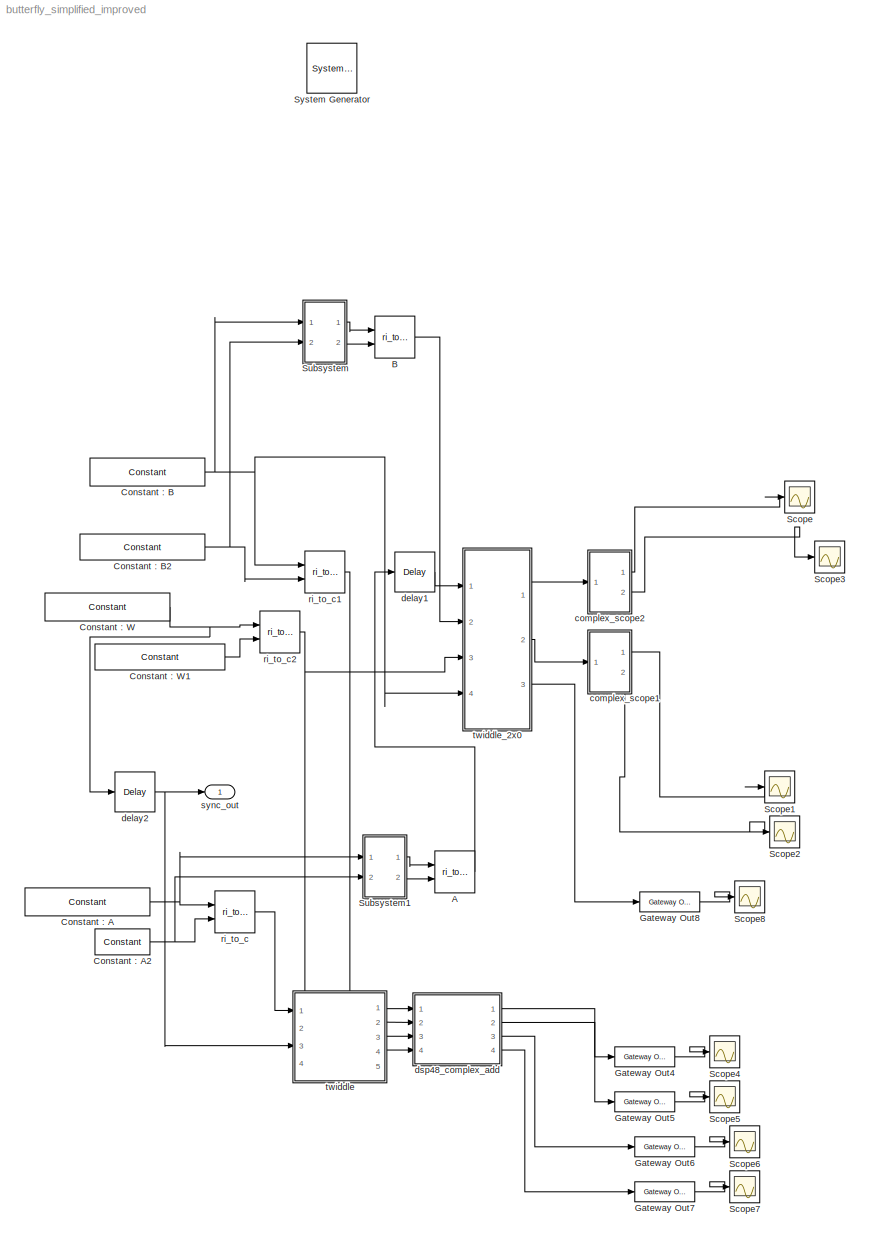
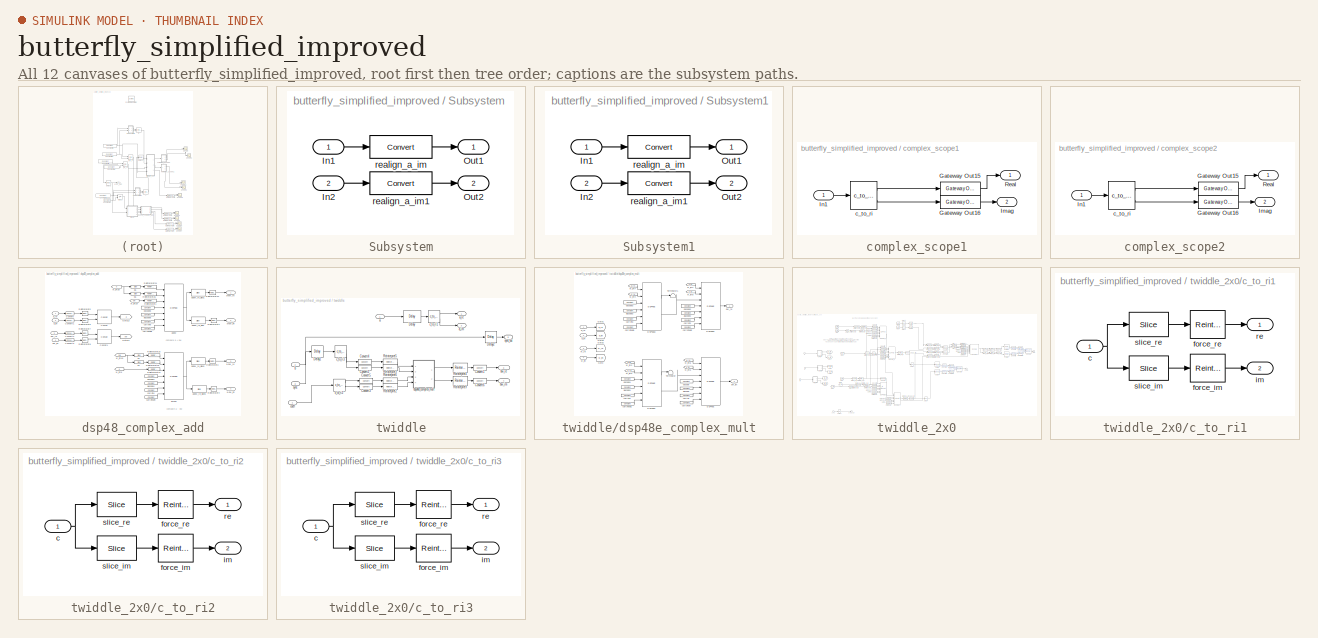
[diagram: thumbnail index - all 12 canvases of the model, root first then tree order]
MODEL butterfly_simplified_improved
KIND model
BLOCK [Reference]  System Generator  REF=xbsIndex_r4/ System Generator
  AttributesFormatString = System\\nGenerator
  FunctionWithSeparateData = off
  GeneratePreprocessorConditionals = off
  Ports = []
  RTWMemSecDataConstants = Inherit from model
  RTWMemSecDataInternal = Inherit from model
  RTWMemSecDataParameters = Inherit from model
  RTWMemSecFuncExecute = Inherit from model
  RTWMemSecFuncInitTerm = Inherit from model
  SID = 161
  ShowPortLabels = FromPortIcon
  SourceBlock = xbsIndex_r4/ System Generator
  SourceType = Xilinx System Generator Block
  SystemSampleTime = -1
  Tag = genX
  UserData = DataTag0
  UserDataPersistent = on
  block_type = sysgen
  clock_wrapper = Clock Enables
  core_generation = According to Block Masks
  dbl_ovrd = According to Block Masks
  dcm_input_clock_period = 10
  deprecated_control = off
  directory = ./netlist
  eval_field = 0
  has_advanced_control = 0
  incr_netlist = off
  infoedit = System Generator
  package = ff1156
  part = xc6vsx315t
  run_coregen = off
  sg_icon_stat = 50,50,0,0,token,white,0,58c5b5770fe5f7c311f53dbc6e73f0f6,right,,[ ],[ ]
  sg_mask_display = fprintf('','COMMENT: begin icon graphics');\npatch([0 50 50 0 0 ],[0 0 50 50 0 ],[1 1 1 ]);\npatch([1.6375 16.81 27.31 37.81 48.31 27.31 12.1375 1.6375 ],[36.655 36.655 47.155 36.655 47.155 47.155 47.155 36.655 ],[0.933333 0.203922 0.141176 ]);\npatch([12.1375 27.31 16.81 1.6375 12.1375 ],[26.155 26.155 36.655 36.655 26.155 ],[0.698039 0.0313725 0.219608 ]);\npatch([1.6375 16.81 27.31 12.1375 1.63...<+335ch>
  sggui_pos = -1,-1,-1,-1
  simulink_period = 1
  speed = -3
  synthesis_tool = XST
  sysclk_period = 10
  testbench = off
  trim_vbits = Everywhere in SubSystem
  xilinxfamily = Virtex6
BLOCK [Reference] A  REF=casper_library/Misc/ri_to_c  (lib defined in mdl_138b2fc3435f, mdl_4ed325b712b3, +2 more)
  FunctionWithSeparateData = off
  GeneratePreprocessorConditionals = off
  Ports = [2, 1]
  RTWMemSecDataConstants = Inherit from model
  RTWMemSecDataInternal = Inherit from model
  RTWMemSecDataParameters = Inherit from model
  RTWMemSecFuncExecute = Inherit from model
  RTWMemSecFuncInitTerm = Inherit from model
  SID = 331
  ShowPortLabels = FromPortIcon
  SourceBlock = casper_library/Misc/ri_to_c
  SourceType = ri_to_c
  SystemSampleTime = -1
  UserData = DataTag1
  UserDataPersistent = on
BLOCK [Reference] B  REF=casper_library/Misc/ri_to_c  (lib defined in mdl_138b2fc3435f, mdl_4ed325b712b3, +2 more)
  FunctionWithSeparateData = off
  GeneratePreprocessorConditionals = off
  Ports = [2, 1]
  RTWMemSecDataConstants = Inherit from model
  RTWMemSecDataInternal = Inherit from model
  RTWMemSecDataParameters = Inherit from model
  RTWMemSecFuncExecute = Inherit from model
  RTWMemSecFuncInitTerm = Inherit from model
  SID = 330
  ShowPortLabels = FromPortIcon
  SourceBlock = casper_library/Misc/ri_to_c
  SourceType = ri_to_c
  SystemSampleTime = -1
  UserData = DataTag2
  UserDataPersistent = on
BLOCK [Reference] Constant : A  REF=xbsIndex_r4/Constant
  Ports = [0, 1]
  SID = 147
  SourceBlock = xbsIndex_r4/Constant
  SourceType = Xilinx Constant Block Block
  arith_type = Signed (2's comp)
  bin_pt = 17
  block_type = constant
  carry = CIN
  const = .97
  dbl_ovrd = off
  dsp48_infoedit = The use of this block for DSP48 instructions is deprecated.  Please use the Opmode block.
  equ = P=C
  explicit_period = on
  has_advanced_control = 0
  inp1 = P
  inp2 = PCIN>>17
  n_bits = 18
  opr = +
  opselect = C
  period = 1
  sg_icon_stat = 125,28,0,1,white,blue,0,fbbd5bfb,right,,[ ],[ ]
  sg_mask_display = fprintf('','COMMENT: begin icon graphics');\npatch([0 125 125 0 0 ],[0 0 28 28 0 ],[0.77 0.82 0.91 ]);\nplot([0 125 125 0 0 ],[0 0 28 28 0 ]);\npatch([53.1 58.88 62.88 66.88 70.88 62.88 57.1 53.1 ],[18.44 18.44 22.44 18.44 22.44 22.44 22.44 18.44 ],[1 1 1 ]);\npatch([57.1 62.88 58.88 53.1 57.1 ],[14.44 14.44 18.44 18.44 14.44 ],[0.931 0.946 0.973 ]);\npatch([53.1 58.88 62.88 57.1 53.1 ],[10.44 10....<+329ch>
  sggui_pos = -1,-1,-1,-1
BLOCK [Reference] Constant : A2  REF=xbsIndex_r4/Constant
  Ports = [0, 1]
  SID = 257
  SourceBlock = xbsIndex_r4/Constant
  SourceType = Xilinx Constant Block Block
  arith_type = Signed (2's comp)
  bin_pt = 17
  block_type = constant
  carry = CIN
  const = 0.0
  dbl_ovrd = off
  dsp48_infoedit = The use of this block for DSP48 instructions is deprecated.  Please use the Opmode block.
  equ = P=C
  explicit_period = on
  has_advanced_control = 0
  inp1 = P
  inp2 = PCIN>>17
  n_bits = 18
  opr = +
  opselect = C
  period = 1
  sg_icon_stat = 55,26,0,1,white,blue,0,bf4ddd8b,right,,[ ],[ ]
  sg_mask_display = fprintf('','COMMENT: begin icon graphics');\npatch([0 55 55 0 0 ],[0 0 26 26 0 ],[0.77 0.82 0.91 ]);\nplot([0 55 55 0 0 ],[0 0 26 26 0 ]);\npatch([20.325 24.66 27.66 30.66 33.66 27.66 23.325 20.325 ],[16.33 16.33 19.33 16.33 19.33 19.33 19.33 16.33 ],[1 1 1 ]);\npatch([23.325 27.66 24.66 20.325 23.325 ],[13.33 13.33 16.33 16.33 13.33 ],[0.931 0.946 0.973 ]);\npatch([20.325 24.66 27.66 23.325 20.32...<+333ch>
  sggui_pos = -1,-1,-1,-1
BLOCK [Reference] Constant : B  REF=xbsIndex_r4/Constant
  Ports = [0, 1]
  SID = 148
  SourceBlock = xbsIndex_r4/Constant
  SourceType = Xilinx Constant Block Block
  arith_type = Signed (2's comp)
  bin_pt = 17
  block_type = constant
  carry = CIN
  const = sqrt(2)/2
  dbl_ovrd = off
  dsp48_infoedit = The use of this block for DSP48 instructions is deprecated.  Please use the Opmode block.
  equ = P=C
  explicit_period = on
  has_advanced_control = 0
  inp1 = P
  inp2 = PCIN>>17
  n_bits = 18
  opr = +
  opselect = C
  period = 1
  sg_icon_stat = 115,28,0,1,white,blue,0,ea2c1fea,right,,[ ],[ ]
  sg_mask_display = fprintf('','COMMENT: begin icon graphics');\npatch([0 115 115 0 0 ],[0 0 28 28 0 ],[0.77 0.82 0.91 ]);\nplot([0 115 115 0 0 ],[0 0 28 28 0 ]);\npatch([48.1 53.88 57.88 61.88 65.88 57.88 52.1 48.1 ],[18.44 18.44 22.44 18.44 22.44 22.44 22.44 18.44 ],[1 1 1 ]);\npatch([52.1 57.88 53.88 48.1 52.1 ],[14.44 14.44 18.44 18.44 14.44 ],[0.931 0.946 0.973 ]);\npatch([48.1 53.88 57.88 52.1 48.1 ],[10.44 10....<+330ch>
  sggui_pos = 0,0,473,439
BLOCK [Reference] Constant : B2  REF=xbsIndex_r4/Constant
  Ports = [0, 1]
  SID = 265
  SourceBlock = xbsIndex_r4/Constant
  SourceType = Xilinx Constant Block Block
  arith_type = Signed (2's comp)
  bin_pt = 17
  block_type = constant
  carry = CIN
  const = .4
  dbl_ovrd = off
  dsp48_infoedit = The use of this block for DSP48 instructions is deprecated.  Please use the Opmode block.
  equ = P=C
  explicit_period = on
  has_advanced_control = 0
  inp1 = P
  inp2 = PCIN>>17
  n_bits = 18
  opr = +
  opselect = C
  period = 1
  sg_icon_stat = 125,26,0,1,white,blue,0,0750d168,right,,[ ],[ ]
  sg_mask_display = fprintf('','COMMENT: begin icon graphics');\npatch([0 125 125 0 0 ],[0 0 26 26 0 ],[0.77 0.82 0.91 ]);\nplot([0 125 125 0 0 ],[0 0 26 26 0 ]);\npatch([55.325 59.66 62.66 65.66 68.66 62.66 58.325 55.325 ],[16.33 16.33 19.33 16.33 19.33 19.33 19.33 16.33 ],[1 1 1 ]);\npatch([58.325 62.66 59.66 55.325 58.325 ],[13.33 13.33 16.33 16.33 13.33 ],[0.931 0.946 0.973 ]);\npatch([55.325 59.66 62.66 58.325 5...<+355ch>
  sggui_pos = 0,0,473,439
BLOCK [Reference] Constant : W  REF=xbsIndex_r4/Constant
  Ports = [0, 1]
  SID = 150
  SourceBlock = xbsIndex_r4/Constant
  SourceType = Xilinx Constant Block Block
  arith_type = Signed (2's comp)
  bin_pt = 17
  block_type = constant
  carry = CIN
  const = .2
  dbl_ovrd = off
  dsp48_infoedit = The use of this block for DSP48 instructions is deprecated.  Please use the Opmode block.
  equ = P=C
  explicit_period = on
  has_advanced_control = 0
  inp1 = P
  inp2 = PCIN>>17
  n_bits = 18
  opr = +
  opselect = C
  period = 1
  sg_icon_stat = 125,28,0,1,white,blue,0,ad91f257,right,,[ ],[ ]
  sg_mask_display = fprintf('','COMMENT: begin icon graphics');\npatch([0 125 125 0 0 ],[0 0 28 28 0 ],[0.77 0.82 0.91 ]);\nplot([0 125 125 0 0 ],[0 0 28 28 0 ]);\npatch([53.1 58.88 62.88 66.88 70.88 62.88 57.1 53.1 ],[18.44 18.44 22.44 18.44 22.44 22.44 22.44 18.44 ],[1 1 1 ]);\npatch([57.1 62.88 58.88 53.1 57.1 ],[14.44 14.44 18.44 18.44 14.44 ],[0.931 0.946 0.973 ]);\npatch([53.1 58.88 62.88 57.1 53.1 ],[10.44 10....<+330ch>
  sggui_pos = 0,0,473,439
BLOCK [Reference] Constant : W1  REF=xbsIndex_r4/Constant
  Ports = [0, 1]
  SID = 266
  SourceBlock = xbsIndex_r4/Constant
  SourceType = Xilinx Constant Block Block
  arith_type = Signed (2's comp)
  bin_pt = 17
  block_type = constant
  carry = CIN
  const = .33
  dbl_ovrd = off
  dsp48_infoedit = The use of this block for DSP48 instructions is deprecated.  Please use the Opmode block.
  equ = P=C
  explicit_period = on
  has_advanced_control = 0
  inp1 = P
  inp2 = PCIN>>17
  n_bits = 18
  opr = +
  opselect = C
  period = 1
  sg_icon_stat = 130,26,0,1,white,blue,0,00fc9ebf,right,,[ ],[ ]
  sg_mask_display = fprintf('','COMMENT: begin icon graphics');\npatch([0 130 130 0 0 ],[0 0 26 26 0 ],[0.77 0.82 0.91 ]);\nplot([0 130 130 0 0 ],[0 0 26 26 0 ]);\npatch([58.325 62.66 65.66 68.66 71.66 65.66 61.325 58.325 ],[16.33 16.33 19.33 16.33 19.33 19.33 19.33 16.33 ],[1 1 1 ]);\npatch([61.325 65.66 62.66 58.325 61.325 ],[13.33 13.33 16.33 16.33 13.33 ],[0.931 0.946 0.973 ]);\npatch([58.325 62.66 65.66 61.325 5...<+354ch>
  sggui_pos = 0,0,473,439
BLOCK [Reference] Gateway Out4  REF=xbsIndex_r4/Gateway Out
  LOCs = {}
  Ports = [1, 1]
  SID = 249
  SourceBlock = xbsIndex_r4/Gateway Out
  SourceType = Xilinx Gateway Out Block
  block_type = gatewayout
  has_advanced_control = 0
  hdl_port = on
  infoedit = Gateway out block.  Converts Xilinx fixed point inputs into ouputs of type Simulink integer, double, or fixed point.<br><br>Hardware notes:  In hardware these blocks become top level output ports or are discarded, depending on how they are configured.  <repeated x9 — deduplicated; at blocks: Gateway Out4, Gateway Out5, Gateway Out6, Gateway Out7, Gateway Out8, Gateway Out15, Gateway Out16>
  locs_specified = off
  sg_icon_stat = 60,20,1,1,white,yellow,0,cc31b7ac,right,,[ ],[ ]
  sg_mask_display = fprintf('','COMMENT: begin icon graphics');\npatch([0 60 60 0 0 ],[0 0 20 20 0 ],[0.95 0.93 0.65 ]);\nplot([0 60 60 0 0 ],[0 0 20 20 0 ]);\npatch([25.55 28.44 30.44 32.44 34.44 30.44 27.55 25.55 ],[12.22 12.22 14.22 12.22 14.22 14.22 14.22 12.22 ],[1 1 1 ]);\npatch([27.55 30.44 28.44 25.55 27.55 ],[10.22 10.22 12.22 12.22 10.22 ],[0.985 0.979 0.895 ]);\npatch([25.55 28.44 30.44 27.55 25.55 ],[8.22...<+397ch>  <repeated x7 — deduplicated; at blocks: Gateway Out4, Gateway Out5, Gateway Out6, Gateway Out7, Gateway Out8, Gateway Out15>
  sggui_pos = -1,-1,-1,-1
  timing_constraint = None
  xl_area = [0,0,0,0,0,0,0]
  xl_use_area = off
BLOCK [Reference] Gateway Out5  REF=xbsIndex_r4/Gateway Out
  LOCs = {}
  Ports = [1, 1]
  SID = 250
  SourceBlock = xbsIndex_r4/Gateway Out
  SourceType = Xilinx Gateway Out Block
  block_type = gatewayout
  has_advanced_control = 0
  hdl_port = on
  locs_specified = off
  sg_icon_stat = 60,20,1,1,white,yellow,0,cc31b7ac,right,,[ ],[ ]
  sggui_pos = -1,-1,-1,-1
  timing_constraint = None
  xl_area = [0,0,0,0,0,0,0]
  xl_use_area = off
BLOCK [Reference] Gateway Out6  REF=xbsIndex_r4/Gateway Out
  LOCs = {}
  Ports = [1, 1]
  SID = 253
  SourceBlock = xbsIndex_r4/Gateway Out
  SourceType = Xilinx Gateway Out Block
  block_type = gatewayout
  has_advanced_control = 0
  hdl_port = on
  locs_specified = off
  sg_icon_stat = 60,20,1,1,white,yellow,0,cc31b7ac,right,,[ ],[ ]
  sggui_pos = -1,-1,-1,-1
  timing_constraint = None
  xl_area = [0,0,0,0,0,0,0]
  xl_use_area = off
BLOCK [Reference] Gateway Out7  REF=xbsIndex_r4/Gateway Out
  LOCs = {}
  Ports = [1, 1]
  SID = 254
  SourceBlock = xbsIndex_r4/Gateway Out
  SourceType = Xilinx Gateway Out Block
  block_type = gatewayout
  has_advanced_control = 0
  hdl_port = on
  locs_specified = off
  sg_icon_stat = 60,20,1,1,white,yellow,0,cc31b7ac,right,,[ ],[ ]
  sggui_pos = -1,-1,-1,-1
  timing_constraint = None
  xl_area = [0,0,0,0,0,0,0]
  xl_use_area = off
BLOCK [Reference] Gateway Out8  REF=xbsIndex_r4/Gateway Out
  LOCs = {}
  Ports = [1, 1]
  SID = 300
  SourceBlock = xbsIndex_r4/Gateway Out
  SourceType = Xilinx Gateway Out Block
  block_type = gatewayout
  has_advanced_control = 0
  hdl_port = on
  locs_specified = off
  sg_icon_stat = 60,20,1,1,white,yellow,0,cc31b7ac,right,,[ ],[ ]
  sggui_pos = -1,-1,-1,-1
  timing_constraint = None
  xl_area = [0,0,0,0,0,0,0]
  xl_use_area = off
BLOCK [Scope] Scope
  DataFormat = StructureWithTime
  Floating = off
  NumInputPorts = 1
  Ports = [1]
  SID = 154
  SampleTime = 0
BLOCK [Scope] Scope1
  DataFormat = StructureWithTime
  Floating = off
  NumInputPorts = 1
  Ports = [1]
  SID = 156
  SampleTime = 0
  SaveName = ScopeData1
BLOCK [Scope] Scope2
  DataFormat = StructureWithTime
  Floating = off
  NumInputPorts = 1
  Ports = [1]
  SID = 158
  SampleTime = 0
  SaveName = ScopeData2
BLOCK [Scope] Scope3
  DataFormat = StructureWithTime
  Floating = off
  NumInputPorts = 1
  Ports = [1]
  SID = 160
  SampleTime = 0
  SaveName = ScopeData3
BLOCK [Scope] Scope4
  DataFormat = StructureWithTime
  Floating = off
  NumInputPorts = 1
  Ports = [1]
  SID = 251
  SampleTime = 0
  SaveName = ScopeData4
BLOCK [Scope] Scope5
  DataFormat = StructureWithTime
  Floating = off
  NumInputPorts = 1
  Ports = [1]
  SID = 252
  SampleTime = 0
  SaveName = ScopeData5
BLOCK [Scope] Scope6
  DataFormat = StructureWithTime
  Floating = off
  NumInputPorts = 1
  Ports = [1]
  SID = 255
  SampleTime = 0
  SaveName = ScopeData6
BLOCK [Scope] Scope7
  DataFormat = StructureWithTime
  Floating = off
  NumInputPorts = 1
  Ports = [1]
  SID = 256
  SampleTime = 0
  SaveName = ScopeData7
BLOCK [Scope] Scope8
  DataFormat = StructureWithTime
  Floating = off
  NumInputPorts = 1
  Ports = [1]
  SID = 301
  SampleTime = 0
  SaveName = ScopeData8
BLOCK [SubSystem] Subsystem
  FunctionWithSeparateData = off
  MaskHideContents = off
  MinAlgLoopOccurrences = off
  Opaque = off
  Ports = [2, 2]
  PropExecContextOutsideSubsystem = off
  RTWSystemCode = Auto
  RequestExecContextInheritance = off
  SID = 325
BLOCK [Inport] Subsystem/In1
  IconDisplay = Port number
  SID = 326
BLOCK [Inport] Subsystem/In2
  IconDisplay = Port number
  Port = 2
  SID = 328
BLOCK [Outport] Subsystem/Out1
  IconDisplay = Port number
  SID = 327
BLOCK [Outport] Subsystem/Out2
  IconDisplay = Port number
  Port = 2
  SID = 329
BLOCK [Reference] Subsystem/realign_a_im  REF=xbsIndex_r4/Convert
  Ports = [1, 1]
  SID = 321
  SourceBlock = xbsIndex_r4/Convert
  SourceType = Xilinx Type Converter Block
  arith_type = Signed  (2's comp)
  bin_pt = 16
  block_type = convert
  block_version = 11.4
  dbl_ovrd = off
  en = off
  has_advanced_control = 0
  infoedit = Hardware notes: rounding and saturating require hardware resources; truncating and wrapping do not.
  latency = 0
  n_bits = 17
  overflow = Wrap
  pipeline = on
  quantization = Truncate
  sg_icon_stat = 60,22,1,1,white,blue,0,edca21da,right,,[ ],[ ]
  sg_mask_display = fprintf('','COMMENT: begin icon graphics');\npatch([0 60 60 0 0 ],[0 0 22 22 0 ],[0.77 0.82 0.91 ]);\nplot([0 60 60 0 0 ],[0 0 22 22 0 ]);\npatch([23.325 27.66 30.66 33.66 36.66 30.66 26.325 23.325 ],[14.33 14.33 17.33 14.33 17.33 17.33 17.33 14.33 ],[1 1 1 ]);\npatch([26.325 30.66 27.66 23.325 26.325 ],[11.33 11.33 14.33 14.33 11.33 ],[0.931 0.946 0.973 ]);\npatch([23.325 27.66 30.66 26.325 23.32...<+334ch>  <repeated x5 — deduplicated; at blocks: realign_a_im, realign_a_im1>
  sggui_pos = -1,-1,-1,-1
  xl_area = [0,0,0,0,0,0,0]
  xl_use_area = off
BLOCK [Reference] Subsystem/realign_a_im1  REF=xbsIndex_r4/Convert
  Ports = [1, 1]
  SID = 322
  SourceBlock = xbsIndex_r4/Convert
  SourceType = Xilinx Type Converter Block
  arith_type = Signed  (2's comp)
  bin_pt = 16
  block_type = convert
  block_version = 11.4
  dbl_ovrd = off
  en = off
  has_advanced_control = 0
  infoedit = Hardware notes: rounding and saturating require hardware resources; truncating and wrapping do not.
  latency = 0
  n_bits = 17
  overflow = Wrap
  pipeline = on
  quantization = Truncate
  sg_icon_stat = 60,22,1,1,white,blue,0,edca21da,right,,[ ],[ ]
  sggui_pos = -1,-1,-1,-1
  xl_area = [0,0,0,0,0,0,0]
  xl_use_area = off
BLOCK [SubSystem] Subsystem1
  FunctionWithSeparateData = off
  MaskHideContents = off
  MinAlgLoopOccurrences = off
  Opaque = off
  Ports = [2, 2]
  PropExecContextOutsideSubsystem = off
  RTWSystemCode = Auto
  RequestExecContextInheritance = off
  SID = 332
BLOCK [Inport] Subsystem1/In1
  IconDisplay = Port number
  SID = 333
BLOCK [Inport] Subsystem1/In2
  IconDisplay = Port number
  Port = 2
  SID = 334
BLOCK [Outport] Subsystem1/Out1
  IconDisplay = Port number
  SID = 337
BLOCK [Outport] Subsystem1/Out2
  IconDisplay = Port number
  Port = 2
  SID = 338
BLOCK [Reference] Subsystem1/realign_a_im  REF=xbsIndex_r4/Convert
  Ports = [1, 1]
  SID = 335
  SourceBlock = xbsIndex_r4/Convert
  SourceType = Xilinx Type Converter Block
  arith_type = Signed  (2's comp)
  bin_pt = 16
  block_type = convert
  block_version = 11.4
  dbl_ovrd = off
  en = off
  has_advanced_control = 0
  infoedit = Hardware notes: rounding and saturating require hardware resources; truncating and wrapping do not.
  latency = 0
  n_bits = 17
  overflow = Wrap
  pipeline = on
  quantization = Truncate
  sg_icon_stat = 60,22,1,1,white,blue,0,edca21da,right,,[ ],[ ]
  sggui_pos = -1,-1,-1,-1
  xl_area = [0,0,0,0,0,0,0]
  xl_use_area = off
BLOCK [Reference] Subsystem1/realign_a_im1  REF=xbsIndex_r4/Convert
  Ports = [1, 1]
  SID = 336
  SourceBlock = xbsIndex_r4/Convert
  SourceType = Xilinx Type Converter Block
  arith_type = Signed  (2's comp)
  bin_pt = 16
  block_type = convert
  block_version = 11.4
  dbl_ovrd = off
  en = off
  has_advanced_control = 0
  infoedit = Hardware notes: rounding and saturating require hardware resources; truncating and wrapping do not.
  latency = 0
  n_bits = 17
  overflow = Wrap
  pipeline = on
  quantization = Truncate
  sg_icon_stat = 60,22,1,1,white,blue,0,edca21da,right,,[ ],[ ]
  sggui_pos = -1,-1,-1,-1
  xl_area = [0,0,0,0,0,0,0]
  xl_use_area = off
BLOCK [SubSystem] complex_scope1
  FunctionWithSeparateData = off
  MaskHideContents = off
  MinAlgLoopOccurrences = off
  Opaque = off
  Ports = [1, 2]
  PropExecContextOutsideSubsystem = off
  RTWSystemCode = Auto
  RequestExecContextInheritance = off
  SID = 312
BLOCK [Reference] complex_scope1/Gateway Out15  REF=xbsIndex_r4/Gateway Out
  LOCs = {}
  Ports = [1, 1]
  SID = 314
  SourceBlock = xbsIndex_r4/Gateway Out
  SourceType = Xilinx Gateway Out Block
  block_type = gatewayout
  block_version = 11.4
  has_advanced_control = 0
  hdl_port = on
  locs_specified = off
  sg_icon_stat = 60,20,1,1,white,yellow,0,cc31b7ac,right,,[ ],[ ]
  sggui_pos = -1,-1,-1,-1
  timing_constraint = None
  xl_area = [0,0,0,0,0,0,0]
  xl_use_area = off
BLOCK [Reference] complex_scope1/Gateway Out16  REF=xbsIndex_r4/Gateway Out
  LOCs = {}
  Ports = [1, 1]
  SID = 315
  SourceBlock = xbsIndex_r4/Gateway Out
  SourceType = Xilinx Gateway Out Block
  block_type = gatewayout
  block_version = 11.4
  has_advanced_control = 0
  hdl_port = on
  locs_specified = off
  sg_icon_stat = 60,20,1,1,white,yellow,0,cc31b7ac,right,,[ ],[ ]
  sg_mask_display = fprintf('','COMMENT: begin icon graphics');\npatch([0 60 60 0 0 ],[0 0 20 20 0 ],[0.95 0.93 0.65 ]);\nplot([0 60 60 0 0 ],[0 0 20 20 0 ]);\npatch([25.55 28.44 30.44 32.44 34.44 30.44 27.55 25.55 ],[12.22 12.22 14.22 12.22 14.22 14.22 14.22 12.22 ],[1 1 1 ]);\npatch([27.55 30.44 28.44 25.55 27.55 ],[10.22 10.22 12.22 12.22 10.22 ],[0.985 0.979 0.895 ]);\npatch([25.55 28.44 30.44 27.55 25.55 ],[8.22...<+399ch>
  sggui_pos = -1,-1,-1,-1
  timing_constraint = None
  xl_area = [0,0,0,0,0,0,0]
  xl_use_area = off
BLOCK [Outport] complex_scope1/Imag
  IconDisplay = Port number
  Port = 2
  SID = 320
BLOCK [Inport] complex_scope1/In1
  IconDisplay = Port number
  SID = 313
BLOCK [Outport] complex_scope1/Real
  IconDisplay = Port number
  SID = 319
BLOCK [Reference] complex_scope1/c_to_ri  REF=casper_library/Misc/c_to_ri  (lib defined in mdl_138b2fc3435f, mdl_4ed325b712b3, +2 more)
  AttributesFormatString = 17_16 r/i
  FunctionWithSeparateData = off
  GeneratePreprocessorConditionals = off
  Ports = [1, 2]
  RTWMemSecDataConstants = Inherit from model
  RTWMemSecDataInternal = Inherit from model
  RTWMemSecDataParameters = Inherit from model
  RTWMemSecFuncExecute = Inherit from model
  RTWMemSecFuncInitTerm = Inherit from model
  SID = 318
  ShowPortLabels = FromPortIcon
  SourceBlock = casper_library/Misc/c_to_ri
  SourceType = c_to_ri
  SystemSampleTime = -1
  UserData = DataTag3
  UserDataPersistent = on
  bin_pt = 16
  n_bits = 17
BLOCK [SubSystem] complex_scope2
  FunctionWithSeparateData = off
  MaskHideContents = off
  MinAlgLoopOccurrences = off
  Opaque = off
  Ports = [1, 2]
  PropExecContextOutsideSubsystem = off
  RTWSystemCode = Auto
  RequestExecContextInheritance = off
  SID = 339
BLOCK [Reference] complex_scope2/Gateway Out15  REF=xbsIndex_r4/Gateway Out
  LOCs = {}
  Ports = [1, 1]
  SID = 341
  SourceBlock = xbsIndex_r4/Gateway Out
  SourceType = Xilinx Gateway Out Block
  block_type = gatewayout
  block_version = 11.4
  has_advanced_control = 0
  hdl_port = on
  locs_specified = off
  sg_icon_stat = 60,20,1,1,white,yellow,0,cc31b7ac,right,,[ ],[ ]
  sggui_pos = -1,-1,-1,-1
  timing_constraint = None
  xl_area = [0,0,0,0,0,0,0]
  xl_use_area = off
BLOCK [Reference] complex_scope2/Gateway Out16  REF=xbsIndex_r4/Gateway Out
  LOCs = {}
  Ports = [1, 1]
  SID = 342
  SourceBlock = xbsIndex_r4/Gateway Out
  SourceType = Xilinx Gateway Out Block
  block_type = gatewayout
  block_version = 11.4
  has_advanced_control = 0
  hdl_port = on
  locs_specified = off
  sg_icon_stat = 60,20,1,1,white,yellow,0,cc31b7ac,right,,[ ],[ ]
  sg_mask_display = fprintf('','COMMENT: begin icon graphics');\npatch([0 60 60 0 0 ],[0 0 20 20 0 ],[0.95 0.93 0.65 ]);\nplot([0 60 60 0 0 ],[0 0 20 20 0 ]);\npatch([25.55 28.44 30.44 32.44 34.44 30.44 27.55 25.55 ],[12.22 12.22 14.22 12.22 14.22 14.22 14.22 12.22 ],[1 1 1 ]);\npatch([27.55 30.44 28.44 25.55 27.55 ],[10.22 10.22 12.22 12.22 10.22 ],[0.985 0.979 0.895 ]);\npatch([25.55 28.44 30.44 27.55 25.55 ],[8.22...<+399ch>
  sggui_pos = -1,-1,-1,-1
  timing_constraint = None
  xl_area = [0,0,0,0,0,0,0]
  xl_use_area = off
BLOCK [Outport] complex_scope2/Imag
  IconDisplay = Port number
  Port = 2
  SID = 345
BLOCK [Inport] complex_scope2/In1
  IconDisplay = Port number
  SID = 340
BLOCK [Outport] complex_scope2/Real
  IconDisplay = Port number
  SID = 344
BLOCK [Reference] complex_scope2/c_to_ri  REF=casper_library/Misc/c_to_ri  (lib defined in mdl_138b2fc3435f, mdl_4ed325b712b3, +2 more)
  AttributesFormatString = 17_16 r/i
  FunctionWithSeparateData = off
  GeneratePreprocessorConditionals = off
  Ports = [1, 2]
  RTWMemSecDataConstants = Inherit from model
  RTWMemSecDataInternal = Inherit from model
  RTWMemSecDataParameters = Inherit from model
  RTWMemSecFuncExecute = Inherit from model
  RTWMemSecFuncInitTerm = Inherit from model
  SID = 343
  ShowPortLabels = FromPortIcon
  SourceBlock = casper_library/Misc/c_to_ri
  SourceType = c_to_ri
  SystemSampleTime = -1
  UserData = DataTag4
  UserDataPersistent = on
  bin_pt = 16
  n_bits = 17
BLOCK [Reference] delay1  REF=xbsIndex_r4/Delay
  Ports = [1, 1]
  SID = 299
  SourceBlock = xbsIndex_r4/Delay
  SourceType = Xilinx Delay Block
  block_type = delay
  block_version = 11.4
  dbl_ovrd = off
  en = off
  has_advanced_control = 0
  infoedit = Hardware notes: A delay line is a chain, each link of which is an SRL16 followed by a flip-flop.
  latency = 1
  reg_retiming = off
  sg_icon_stat = 40,40,1,1,white,blue,0,07b98262,right,,[ ],[ ]
  sg_mask_display = fprintf('','COMMENT: begin icon graphics');\npatch([0 40 40 0 0 ],[0 0 40 40 0 ],[0.77 0.82 0.91 ]);\nplot([0 40 40 0 0 ],[0 0 40 40 0 ]);\npatch([8.875 16.1 21.1 26.1 31.1 21.1 13.875 8.875 ],[25.55 25.55 30.55 25.55 30.55 30.55 30.55 25.55 ],[1 1 1 ]);\npatch([13.875 21.1 16.1 8.875 13.875 ],[20.55 20.55 25.55 25.55 20.55 ],[0.931 0.946 0.973 ]);\npatch([8.875 16.1 21.1 13.875 8.875 ],[15.55 15....<+327ch>  <repeated x3 — deduplicated; at blocks: delay1, Delay1, Delay2>
  sggui_pos = -1,-1,-1,-1
  xl_area = [0,0,0,0,0,0,0]
  xl_use_area = off
BLOCK [Reference] delay2  REF=xbsIndex_r4/Delay
  Ports = [1, 1]
  SID = 124
  SourceBlock = xbsIndex_r4/Delay
  SourceType = Xilinx Delay Block
  block_type = delay
  block_version = 11.4
  dbl_ovrd = off
  en = off
  has_advanced_control = 0
  infoedit = Hardware notes: A delay line is a chain, each link of which is an SRL16 followed by a flip-flop.
  latency = 7 %bram_latency + 4 + conv_latency
  reg_retiming = off
  sg_icon_stat = 40,40,1,1,white,blue,0,286d8d43,right,,[ ],[ ]
  sg_mask_display = fprintf('','COMMENT: begin icon graphics');\npatch([0 40 40 0 0 ],[0 0 40 40 0 ],[0.77 0.82 0.91 ]);\nplot([0 40 40 0 0 ],[0 0 40 40 0 ]);\npatch([8.875 16.1 21.1 26.1 31.1 21.1 13.875 8.875 ],[25.55 25.55 30.55 25.55 30.55 30.55 30.55 25.55 ],[1 1 1 ]);\npatch([13.875 21.1 16.1 8.875 13.875 ],[20.55 20.55 25.55 25.55 20.55 ],[0.931 0.946 0.973 ]);\npatch([8.875 16.1 21.1 13.875 8.875 ],[15.55 15....<+370ch>
  sggui_pos = -1,-1,-1,-1
  xl_area = [0,0,0,0,0,0,0]
  xl_use_area = off
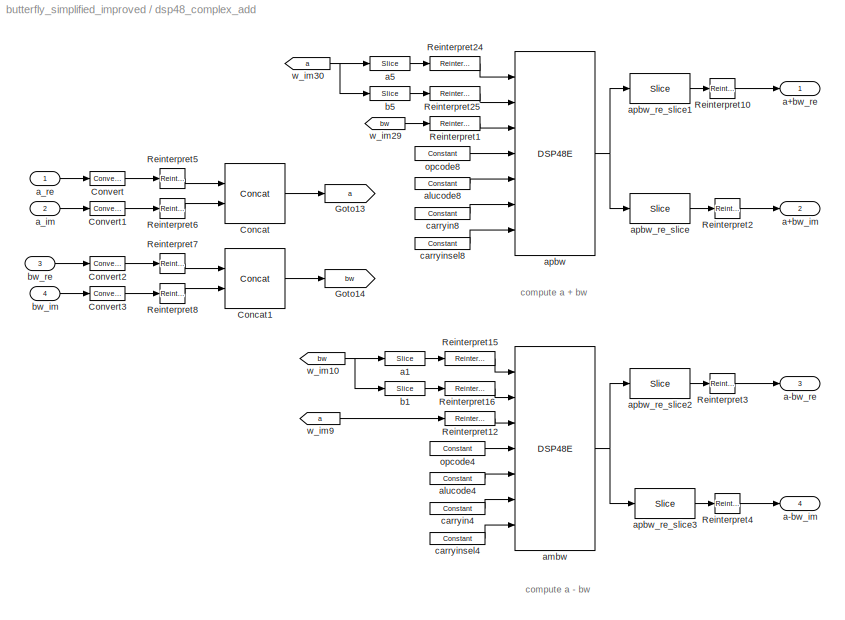
BLOCK [SubSystem] dsp48_complex_add
  FunctionWithSeparateData = off
  MaskCallbackString = |||
  MaskEnableString = on,on,on,on
  MaskHideContents = off
  MaskIconFrame = on
  MaskIconOpaque = on
  MaskIconRotate = none
  MaskIconUnits = autoscale
  MaskPortRotate = default
  MaskPromptString = 'a' bit width|'a' binary point|'bw' bit width|'bw' binary point
  MaskStyleString = edit,edit,edit,edit
  MaskToolTipString = on,on,on,on
  MaskTunableValueString = on,on,on,on
  MaskValueString = 18|17|18+18+1|(18 - 1) + (18-1)
  MaskVariables = a_bit_width=@1;a_bin_pt=@2;bw_bit_width=@3;bw_bin_pt=@4;
  MaskVisibilityString = on,on,on,on
  MinAlgLoopOccurrences = off
  Opaque = off
  Ports = [4, 4]
  PropExecContextOutsideSubsystem = off
  RTWSystemCode = Auto
  RequestExecContextInheritance = off
  SID = 189
BLOCK [Reference] dsp48_complex_add/Concat  REF=xbsIndex_r4/Concat
  Ports = [2, 1]
  SID = 194
  SourceBlock = xbsIndex_r4/Concat
  SourceType = Xilinx Bus Concatenator Block
  block_type = concat
  block_version = 11.3
  dbl_ovrd = off
  has_advanced_control = 0
  infoedit = Concatenates two or more inputs.  Output will be cast to an unsigned value with the binary point at zero.
  num_inputs = 2
  sg_icon_stat = 60,60,2,1,white,blue,0,16398980,right,,[ ],[ ]
  sg_mask_display = fprintf('','COMMENT: begin icon graphics');\npatch([0 60 60 0 0 ],[0 0 60 60 0 ],[0.77 0.82 0.91 ]);\nplot([0 60 60 0 0 ],[0 0 60 60 0 ]);\npatch([12.2 23.76 31.76 39.76 47.76 31.76 20.2 12.2 ],[38.88 38.88 46.88 38.88 46.88 46.88 46.88 38.88 ],[1 1 1 ]);\npatch([20.2 31.76 23.76 12.2 20.2 ],[30.88 30.88 38.88 38.88 30.88 ],[0.931 0.946 0.973 ]);\npatch([12.2 23.76 31.76 20.2 12.2 ],[22.88 22.88 3...<+417ch>  <repeated x3 — deduplicated; at blocks: Concat, Concat1>
  sggui_pos = -1,-1,-1,-1
BLOCK [Reference] dsp48_complex_add/Concat1  REF=xbsIndex_r4/Concat
  Ports = [2, 1]
  SID = 195
  SourceBlock = xbsIndex_r4/Concat
  SourceType = Xilinx Bus Concatenator Block
  block_type = concat
  block_version = 11.3
  dbl_ovrd = off
  has_advanced_control = 0
  infoedit = Concatenates two or more inputs.  Output will be cast to an unsigned value with the binary point at zero.
  num_inputs = 2
  sg_icon_stat = 60,60,2,1,white,blue,0,16398980,right,,[ ],[ ]
  sggui_pos = -1,-1,-1,-1
BLOCK [Reference] dsp48_complex_add/Convert  REF=xbsIndex_r4/Convert
  Ports = [1, 1]
  SID = 196
  SourceBlock = xbsIndex_r4/Convert
  SourceType = Xilinx Type Converter Block
  arith_type = Signed  (2's comp)
  bin_pt = 24 - (bw_bit_width - bw_bin_pt)
  block_type = convert
  block_version = 11.4
  dbl_ovrd = off
  en = off
  has_advanced_control = 0
  infoedit = Hardware notes: rounding and saturating require hardware resources; truncating and wrapping do not.
  latency = 0
  n_bits = 24
  overflow = Wrap
  pipeline = off
  quantization = Truncate
  sg_icon_stat = 35,14,1,1,white,blue,0,edca21da,right,,[ ],[ ]
  sg_mask_display = fprintf('','COMMENT: begin icon graphics');\npatch([0 35 35 0 0 ],[0 0 14 14 0 ],[0.77 0.82 0.91 ]);\nplot([0 35 35 0 0 ],[0 0 14 14 0 ]);\npatch([12.55 15.44 17.44 19.44 21.44 17.44 14.55 12.55 ],[9.22 9.22 11.22 9.22 11.22 11.22 11.22 9.22 ],[1 1 1 ]);\npatch([14.55 17.44 15.44 12.55 14.55 ],[7.22 7.22 9.22 9.22 7.22 ],[0.931 0.946 0.973 ]);\npatch([12.55 15.44 17.44 14.55 12.55 ],[5.22 5.22 7.2...<+311ch>  <repeated x4 — deduplicated; at blocks: Convert, Convert1, Convert2, Convert3>
  sggui_pos = -1,-1,-1,-1
  xl_area = [0,0,0,0,0,0,0]
  xl_use_area = off
BLOCK [Reference] dsp48_complex_add/Convert1  REF=xbsIndex_r4/Convert
  Ports = [1, 1]
  SID = 197
  SourceBlock = xbsIndex_r4/Convert
  SourceType = Xilinx Type Converter Block
  arith_type = Signed  (2's comp)
  bin_pt = 24 - (bw_bit_width - bw_bin_pt)
  block_type = convert
  block_version = 11.4
  dbl_ovrd = off
  en = off
  has_advanced_control = 0
  infoedit = Hardware notes: rounding and saturating require hardware resources; truncating and wrapping do not.
  latency = 0
  n_bits = 24
  overflow = Wrap
  pipeline = off
  quantization = Truncate
  sg_icon_stat = 35,14,1,1,white,blue,0,edca21da,right,,[ ],[ ]
  sggui_pos = -1,-1,-1,-1
  xl_area = [0,0,0,0,0,0,0]
  xl_use_area = off
BLOCK [Reference] dsp48_complex_add/Convert2  REF=xbsIndex_r4/Convert
  Ports = [1, 1]
  SID = 198
  SourceBlock = xbsIndex_r4/Convert
  SourceType = Xilinx Type Converter Block
  arith_type = Signed  (2's comp)
  bin_pt = 24 - (bw_bit_width - bw_bin_pt)
  block_type = convert
  block_version = 11.4
  dbl_ovrd = off
  en = off
  has_advanced_control = 0
  infoedit = Hardware notes: rounding and saturating require hardware resources; truncating and wrapping do not.
  latency = 0
  n_bits = 24
  overflow = Wrap
  pipeline = off
  quantization = Truncate
  sg_icon_stat = 35,14,1,1,white,blue,0,edca21da,right,,[ ],[ ]
  sggui_pos = -1,-1,-1,-1
  xl_area = [0,0,0,0,0,0,0]
  xl_use_area = off
BLOCK [Reference] dsp48_complex_add/Convert3  REF=xbsIndex_r4/Convert
  Ports = [1, 1]
  SID = 199
  SourceBlock = xbsIndex_r4/Convert
  SourceType = Xilinx Type Converter Block
  arith_type = Signed  (2's comp)
  bin_pt = 24 - (bw_bit_width - bw_bin_pt)
  block_type = convert
  block_version = 11.4
  dbl_ovrd = off
  en = off
  has_advanced_control = 0
  infoedit = Hardware notes: rounding and saturating require hardware resources; truncating and wrapping do not.
  latency = 0
  n_bits = 24
  overflow = Wrap
  pipeline = off
  quantization = Truncate
  sg_icon_stat = 35,14,1,1,white,blue,0,edca21da,right,,[ ],[ ]
  sggui_pos = -1,-1,-1,-1
  xl_area = [0,0,0,0,0,0,0]
  xl_use_area = off
BLOCK [Goto] dsp48_complex_add/Goto13
  GotoTag = a
  SID = 200
  TagVisibility = local
BLOCK [Goto] dsp48_complex_add/Goto14
  GotoTag = bw
  SID = 201
  TagVisibility = local
BLOCK [Reference] dsp48_complex_add/Reinterpret1  REF=xbsIndex_r4/Reinterpret
  Ports = [1, 1]
  SID = 202
  SourceBlock = xbsIndex_r4/Reinterpret
  SourceType = Xilinx Type Reinterpreter Block
  arith_type = Signed  (2's comp)
  bin_pt = 0
  block_type = reinterpret
  block_version = 11.3
  force_arith_type = on
  force_bin_pt = off
  has_advanced_control = 0
  infoedit = Changes signal type without altering the binary representation.   You can changed the signal between signed and unsigned, and relocate the binary point.<br><br>Hardware notes: In hardware this block costs nothing.<br><br>Example:  Suppose the input is 6 bits wide, signed, with 2 fractional bits, and the output is forced to unsigned with 0 fractional bits.  Then an input of -2.0 (1110.00 in binary ...<+59ch>  <repeated x39 — deduplicated; at blocks: Reinterpret1, Reinterpret10, Reinterpret12, Reinterpret15, Reinterpret16, Reinterpret2, Reinterpret24, Reinterpret25, Reinterpret3, Reinterpret4, Reinterpret5, Reinterpret6, Reinterpret7, Reinterpret8, Reinterpret9, Reinterpret_A, +16 more>
  sg_icon_stat = 50,14,1,1,white,blue,0,6b04d0b0,right,,[ ],[ ]
  sg_mask_display = fprintf('','COMMENT: begin icon graphics');\npatch([0 50 50 0 0 ],[0 0 14 14 0 ],[0.77 0.82 0.91 ]);\nplot([0 50 50 0 0 ],[0 0 14 14 0 ]);\npatch([20.55 23.44 25.44 27.44 29.44 25.44 22.55 20.55 ],[9.22 9.22 11.22 9.22 11.22 11.22 11.22 9.22 ],[1 1 1 ]);\npatch([22.55 25.44 23.44 20.55 22.55 ],[7.22 7.22 9.22 9.22 7.22 ],[0.931 0.946 0.973 ]);\npatch([20.55 23.44 25.44 22.55 20.55 ],[5.22 5.22 7.2...<+301ch>  <repeated x3 — deduplicated; at blocks: Reinterpret1, Reinterpret12, Reinterpret24>
  sggui_pos = -1,-1,-1,-1
BLOCK [Reference] dsp48_complex_add/Reinterpret10  REF=xbsIndex_r4/Reinterpret
  Ports = [1, 1]
  SID = 203
  SourceBlock = xbsIndex_r4/Reinterpret
  SourceType = Xilinx Type Reinterpreter Block
  arith_type = Signed  (2's comp)
  bin_pt = 24 - (bw_bit_width - bw_bin_pt)
  block_type = reinterpret
  block_version = 11.3
  force_arith_type = on
  force_bin_pt = on
  has_advanced_control = 0
  sg_icon_stat = 25,20,1,1,white,blue,0,6b04d0b0,right,,[ ],[ ]
  sg_mask_display = fprintf('','COMMENT: begin icon graphics');\npatch([0 25 25 0 0 ],[0 0 20 20 0 ],[0.77 0.82 0.91 ]);\nplot([0 25 25 0 0 ],[0 0 20 20 0 ]);\npatch([7.55 10.44 12.44 14.44 16.44 12.44 9.55 7.55 ],[12.22 12.22 14.22 12.22 14.22 14.22 14.22 12.22 ],[1 1 1 ]);\npatch([9.55 12.44 10.44 7.55 9.55 ],[10.22 10.22 12.22 12.22 10.22 ],[0.931 0.946 0.973 ]);\npatch([7.55 10.44 12.44 9.55 7.55 ],[8.22 8.22 10....<+302ch>  <repeated x7 — deduplicated; at blocks: Reinterpret10, Reinterpret2, Reinterpret3, Reinterpret4, Reinterpret6, Reinterpret7, Reinterpret8>
  sggui_pos = 0,0,372,364
BLOCK [Reference] dsp48_complex_add/Reinterpret12  REF=xbsIndex_r4/Reinterpret
  Ports = [1, 1]
  SID = 204
  SourceBlock = xbsIndex_r4/Reinterpret
  SourceType = Xilinx Type Reinterpreter Block
  arith_type = Signed  (2's comp)
  bin_pt = 0
  block_type = reinterpret
  block_version = 11.3
  force_arith_type = on
  force_bin_pt = off
  has_advanced_control = 0
  sg_icon_stat = 50,14,1,1,white,blue,0,6b04d0b0,right,,[ ],[ ]
  sggui_pos = -1,-1,-1,-1
BLOCK [Reference] dsp48_complex_add/Reinterpret15  REF=xbsIndex_r4/Reinterpret
  Ports = [1, 1]
  SID = 205
  SourceBlock = xbsIndex_r4/Reinterpret
  SourceType = Xilinx Type Reinterpreter Block
  arith_type = Signed  (2's comp)
  bin_pt = 0
  block_type = reinterpret
  block_version = 11.3
  force_arith_type = on
  force_bin_pt = off
  has_advanced_control = 0
  sg_icon_stat = 50,14,1,1,white,blue,0,6b04d0b0,right,,[ ],[ ]
  sg_mask_display = fprintf('','COMMENT: begin icon graphics');\npatch([0 50 50 0 0 ],[0 0 14 14 0 ],[0.77 0.82 0.91 ]);\nplot([0 50 50 0 0 ],[0 0 14 14 0 ]);\npatch([20.55 23.44 25.44 27.44 29.44 25.44 22.55 20.55 ],[9.22 9.22 11.22 9.22 11.22 11.22 11.22 9.22 ],[1 1 1 ]);\npatch([22.55 25.44 23.44 20.55 22.55 ],[7.22 7.22 9.22 9.22 7.22 ],[0.931 0.946 0.973 ]);\npatch([20.55 23.44 25.44 22.55 20.55 ],[5.22 5.22 7.2...<+303ch>  <repeated x3 — deduplicated; at blocks: Reinterpret15, Reinterpret16, Reinterpret25>
  sggui_pos = -1,-1,-1,-1
BLOCK [Reference] dsp48_complex_add/Reinterpret16  REF=xbsIndex_r4/Reinterpret
  Ports = [1, 1]
  SID = 206
  SourceBlock = xbsIndex_r4/Reinterpret
  SourceType = Xilinx Type Reinterpreter Block
  arith_type = Signed  (2's comp)
  bin_pt = 0
  block_type = reinterpret
  block_version = 11.3
  force_arith_type = on
  force_bin_pt = off
  has_advanced_control = 0
  sg_icon_stat = 50,14,1,1,white,blue,0,6b04d0b0,right,,[ ],[ ]
  sggui_pos = -1,-1,-1,-1
BLOCK [Reference] dsp48_complex_add/Reinterpret2  REF=xbsIndex_r4/Reinterpret
  Ports = [1, 1]
  SID = 207
  SourceBlock = xbsIndex_r4/Reinterpret
  SourceType = Xilinx Type Reinterpreter Block
  arith_type = Signed  (2's comp)
  bin_pt = 24 - (bw_bit_width - bw_bin_pt)
  block_type = reinterpret
  block_version = 11.3
  force_arith_type = on
  force_bin_pt = on
  has_advanced_control = 0
  sg_icon_stat = 25,20,1,1,white,blue,0,6b04d0b0,right,,[ ],[ ]
  sggui_pos = 0,0,372,364
BLOCK [Reference] dsp48_complex_add/Reinterpret24  REF=xbsIndex_r4/Reinterpret
  Ports = [1, 1]
  SID = 208
  SourceBlock = xbsIndex_r4/Reinterpret
  SourceType = Xilinx Type Reinterpreter Block
  arith_type = Signed  (2's comp)
  bin_pt = 0
  block_type = reinterpret
  block_version = 11.3
  force_arith_type = on
  force_bin_pt = off
  has_advanced_control = 0
  sg_icon_stat = 50,14,1,1,white,blue,0,6b04d0b0,right,,[ ],[ ]
  sggui_pos = -1,-1,-1,-1
BLOCK [Reference] dsp48_complex_add/Reinterpret25  REF=xbsIndex_r4/Reinterpret
  Ports = [1, 1]
  SID = 209
  SourceBlock = xbsIndex_r4/Reinterpret
  SourceType = Xilinx Type Reinterpreter Block
  arith_type = Signed  (2's comp)
  bin_pt = 0
  block_type = reinterpret
  block_version = 11.3
  force_arith_type = on
  force_bin_pt = off
  has_advanced_control = 0
  sg_icon_stat = 50,14,1,1,white,blue,0,6b04d0b0,right,,[ ],[ ]
  sggui_pos = -1,-1,-1,-1
BLOCK [Reference] dsp48_complex_add/Reinterpret3  REF=xbsIndex_r4/Reinterpret
  Ports = [1, 1]
  SID = 210
  SourceBlock = xbsIndex_r4/Reinterpret
  SourceType = Xilinx Type Reinterpreter Block
  arith_type = Signed  (2's comp)
  bin_pt = 24 - (bw_bit_width - bw_bin_pt)
  block_type = reinterpret
  block_version = 11.3
  force_arith_type = on
  force_bin_pt = on
  has_advanced_control = 0
  sg_icon_stat = 25,20,1,1,white,blue,0,6b04d0b0,right,,[ ],[ ]
  sggui_pos = 0,0,372,364
BLOCK [Reference] dsp48_complex_add/Reinterpret4  REF=xbsIndex_r4/Reinterpret
  Ports = [1, 1]
  SID = 211
  SourceBlock = xbsIndex_r4/Reinterpret
  SourceType = Xilinx Type Reinterpreter Block
  arith_type = Signed  (2's comp)
  bin_pt = 24 - (bw_bit_width - bw_bin_pt)
  block_type = reinterpret
  block_version = 11.3
  force_arith_type = on
  force_bin_pt = on
  has_advanced_control = 0
  sg_icon_stat = 25,20,1,1,white,blue,0,6b04d0b0,right,,[ ],[ ]
  sggui_pos = 0,0,372,364
BLOCK [Reference] dsp48_complex_add/Reinterpret5  REF=xbsIndex_r4/Reinterpret
  Ports = [1, 1]
  SID = 212
  SourceBlock = xbsIndex_r4/Reinterpret
  SourceType = Xilinx Type Reinterpreter Block
  arith_type = Unsigned
  bin_pt = 0
  block_type = reinterpret
  block_version = 11.3
  force_arith_type = on
  force_bin_pt = on
  has_advanced_control = 0
  sg_icon_stat = 25,20,1,1,white,blue,0,6b04d0b0,right,,[ ],[ ]
  sg_mask_display = fprintf('','COMMENT: begin icon graphics');\npatch([0 25 25 0 0 ],[0 0 20 20 0 ],[0.77 0.82 0.91 ]);\nplot([0 25 25 0 0 ],[0 0 20 20 0 ]);\npatch([7.55 10.44 12.44 14.44 16.44 12.44 9.55 7.55 ],[12.22 12.22 14.22 12.22 14.22 14.22 14.22 12.22 ],[1 1 1 ]);\npatch([9.55 12.44 10.44 7.55 9.55 ],[10.22 10.22 12.22 12.22 10.22 ],[0.931 0.946 0.973 ]);\npatch([7.55 10.44 12.44 9.55 7.55 ],[8.22 8.22 10....<+300ch>
  sggui_pos = 0,0,372,364
BLOCK [Reference] dsp48_complex_add/Reinterpret6  REF=xbsIndex_r4/Reinterpret
  Ports = [1, 1]
  SID = 213
  SourceBlock = xbsIndex_r4/Reinterpret
  SourceType = Xilinx Type Reinterpreter Block
  arith_type = Unsigned
  bin_pt = 0
  block_type = reinterpret
  block_version = 11.3
  force_arith_type = on
  force_bin_pt = on
  has_advanced_control = 0
  sg_icon_stat = 25,20,1,1,white,blue,0,6b04d0b0,right,,[ ],[ ]
  sggui_pos = 0,0,372,364
BLOCK [Reference] dsp48_complex_add/Reinterpret7  REF=xbsIndex_r4/Reinterpret
  Ports = [1, 1]
  SID = 214
  SourceBlock = xbsIndex_r4/Reinterpret
  SourceType = Xilinx Type Reinterpreter Block
  arith_type = Unsigned
  bin_pt = 0
  block_type = reinterpret
  block_version = 11.3
  force_arith_type = on
  force_bin_pt = on
  has_advanced_control = 0
  sg_icon_stat = 25,20,1,1,white,blue,0,6b04d0b0,right,,[ ],[ ]
  sggui_pos = 0,0,372,364
BLOCK [Reference] dsp48_complex_add/Reinterpret8  REF=xbsIndex_r4/Reinterpret
  Ports = [1, 1]
  SID = 215
  SourceBlock = xbsIndex_r4/Reinterpret
  SourceType = Xilinx Type Reinterpreter Block
  arith_type = Unsigned
  bin_pt = 0
  block_type = reinterpret
  block_version = 11.3
  force_arith_type = on
  force_bin_pt = on
  has_advanced_control = 0
  sg_icon_stat = 25,20,1,1,white,blue,0,6b04d0b0,right,,[ ],[ ]
  sggui_pos = 0,0,372,364
BLOCK [Outport] dsp48_complex_add/a+bw_im
  IconDisplay = Port number
  Port = 2
  SID = 239
BLOCK [Outport] dsp48_complex_add/a+bw_re
  IconDisplay = Port number
  SID = 238
BLOCK [Outport] dsp48_complex_add/a-bw_im
  IconDisplay = Port number
  Port = 4
  SID = 241
BLOCK [Outport] dsp48_complex_add/a-bw_re
  IconDisplay = Port number
  Port = 3
  SID = 240
BLOCK [Reference] dsp48_complex_add/a1  REF=xbsIndex_r4/Slice
  Ports = [1, 1]
  SID = 216
  SourceBlock = xbsIndex_r4/Slice
  SourceType = Xilinx Bit Slice Extractor Block
  base0 = LSB of Input
  base1 = MSB of Input
  bit0 = 18
  bit1 = 0
  block_type = slice
  block_version = 11.3
  boolean_output = off
  dbl_ovrd = off
  has_advanced_control = 0
  infoedit = Extracts a given range of bits from each input sample and presents it at the output.  The output type is ordinarily unsigned with binary point at zero, but can be Boolean when the slice is one bit wide.<br><br>Hardware notes: In hardware this block costs nothing.  <repeated x12 — deduplicated; at blocks: a1, a5, apbw_re_slice, apbw_re_slice1, apbw_re_slice2, apbw_re_slice3, b1, b5, Slice_A, Slice_B, slice_c_im, slice_c_re>
  mode = Upper Bit Location + Width
  nbits = 30
  sg_icon_stat = 40,14,1,1,white,blue,0,1fd851a7,right,,[ ],[ ]
  sg_mask_display = fprintf('','COMMENT: begin icon graphics');\npatch([0 40 40 0 0 ],[0 0 14 14 0 ],[0.77 0.82 0.91 ]);\nplot([0 40 40 0 0 ],[0 0 14 14 0 ]);\npatch([15.55 18.44 20.44 22.44 24.44 20.44 17.55 15.55 ],[9.22 9.22 11.22 9.22 11.22 11.22 11.22 9.22 ],[1 1 1 ]);\npatch([17.55 20.44 18.44 15.55 17.55 ],[7.22 7.22 9.22 9.22 7.22 ],[0.931 0.946 0.973 ]);\npatch([15.55 18.44 20.44 17.55 15.55 ],[5.22 5.22 7.2...<+312ch>  <repeated x4 — deduplicated; at blocks: a1, a5, b1, b5>
  sggui_pos = 851,25,537,482
BLOCK [Reference] dsp48_complex_add/a5  REF=xbsIndex_r4/Slice
  Ports = [1, 1]
  SID = 217
  SourceBlock = xbsIndex_r4/Slice
  SourceType = Xilinx Bit Slice Extractor Block
  base0 = LSB of Input
  base1 = MSB of Input
  bit0 = 18
  bit1 = 0
  block_type = slice
  block_version = 11.3
  boolean_output = off
  dbl_ovrd = off
  has_advanced_control = 0
  mode = Upper Bit Location + Width
  nbits = 30
  sg_icon_stat = 40,14,1,1,white,blue,0,1fd851a7,right,,[ ],[ ]
  sggui_pos = -1,-1,-1,-1
BLOCK [Inport] dsp48_complex_add/a_im
  IconDisplay = Port number
  Port = 2
  SID = 191
BLOCK [Inport] dsp48_complex_add/a_re
  IconDisplay = Port number
  SID = 190
BLOCK [Reference] dsp48_complex_add/alucode4  REF=xbsIndex_r4/Constant
  Ports = [0, 1]
  SID = 218
  SourceBlock = xbsIndex_r4/Constant
  SourceType = Xilinx Constant Block Block
  arith_type = Unsigned
  bin_pt = 0
  block_type = constant
  block_version = 10.1.3
  carry = CIN
  const = 3
  dbl_ovrd = off
  dsp48_infoedit = The use of this block for DSP48 instructions is deprecated.  Please use the Opmode block.
  equ = P=C
  explicit_period = on
  has_advanced_control = 0
  inp1 = P
  inp2 = PCIN>>17
  n_bits = 4
  opr = +
  opselect = C
  period = 1
  sg_icon_stat = 55,12,0,1,white,blue,0,279a71c8,right,,[ ],[ ]
  sg_mask_display = fprintf('','COMMENT: begin icon graphics');\npatch([0 55 55 0 0 ],[0 0 12 12 0 ],[0.77 0.82 0.91 ]);\nplot([0 55 55 0 0 ],[0 0 12 12 0 ]);\npatch([24.775 26.22 27.22 28.22 29.22 27.22 25.775 24.775 ],[7.11 7.11 8.11 7.11 8.11 8.11 8.11 7.11 ],[1 1 1 ]);\npatch([25.775 27.22 26.22 24.775 25.775 ],[6.11 6.11 7.11 7.11 6.11 ],[0.931 0.946 0.973 ]);\npatch([24.775 26.22 27.22 25.775 24.775 ],[5.11 5.1...<+314ch>  <repeated x21 — deduplicated; at blocks: alucode4, alucode8, carryin4, carryin8, carryinsel4, carryinsel8, alucode, alucode1, alucode2, alucode3, carryin, carryin1, carryin2, carryin3, carryinsel, carryinsel1, +3 more>
  sggui_pos = 20,20,400,346
BLOCK [Reference] dsp48_complex_add/alucode8  REF=xbsIndex_r4/Constant
  Ports = [0, 1]
  SID = 219
  SourceBlock = xbsIndex_r4/Constant
  SourceType = Xilinx Constant Block Block
  arith_type = Unsigned
  bin_pt = 0
  block_type = constant
  block_version = 10.1.3
  carry = CIN
  const = 0
  dbl_ovrd = off
  dsp48_infoedit = The use of this block for DSP48 instructions is deprecated.  Please use the Opmode block.
  equ = P=C
  explicit_period = on
  has_advanced_control = 0
  inp1 = P
  inp2 = PCIN>>17
  n_bits = 4
  opr = +
  opselect = C
  period = 1
  sg_icon_stat = 55,12,0,1,white,blue,0,bf4ddd8b,right,,[ ],[ ]
  sggui_pos = 20,20,400,346
BLOCK [Reference] dsp48_complex_add/ambw  REF=xbsIndex_r4/DSP48E
  Ports = [7, 1]
  SID = 220
  SourceBlock = xbsIndex_r4/DSP48E
  SourceType = Xilinx DSP48E Block
  addsub_mode = TWO24
  block_type = dsp48e
  block_version = 10.1.3
  en_a1 = off
  en_a2 = off
  en_all = off
  en_alumode = off
  en_b1 = off
  en_b2 = off
  en_c = off
  en_carry_in = off
  en_ctrl = off
  en_mult = off
  en_multcarryin = off
  en_p = off
  has_advanced_control = 0
  mask_from_creg = off
  pattern = '000000000000'
  pattern_from_creg = off
  pattern_mask = '3FFFFFFFFFFF'
  pipeline_a = 1
  pipeline_acout = 1
  pipeline_alumode = on
  pipeline_b = 1
  pipeline_bcout = 1
  pipeline_c = on
  pipeline_carryin = on
  pipeline_carryinsel = on
  pipeline_mult = on
  pipeline_opmode = on
  pipeline_p = on
  reset_preg = off
  rst_a = off
  rst_all = off
  rst_alumode = off
  rst_b = off
  rst_c = off
  rst_carry_in = off
  rst_ctrl = off
  rst_mult = off
  rst_p = off
  sel_rounding_mask = Select mask
  sg_icon_stat = 80,204,7,1,white,blue,0,51584ea8,right,,[ ],[ ]
  sg_mask_display = fprintf('','COMMENT: begin icon graphics');\npatch([0 80 80 0 0 ],[0 0 204 204 0 ],[0.77 0.82 0.91 ]);\nplot([0 80 80 0 0 ],[0 0 204 204 0 ]);\npatch([15.525 31.42 42.42 53.42 64.42 42.42 26.525 15.525 ],[114.21 114.21 125.21 114.21 125.21 125.21 125.21 114.21 ],[1 1 1 ]);\npatch([26.525 42.42 31.42 15.525 26.525 ],[103.21 103.21 114.21 114.21 103.21 ],[0.931 0.946 0.973 ]);\npatch([15.525 31.42 4...<+685ch>
  sggui_pos = 113,168,544,804
  use_a = Direct from A Port
  use_acout = off
  use_b = Direct from B Port
  use_bcout = off
  use_carrycascin = off
  use_carrycascout = off
  use_carryout = off
  use_creg = on
  use_multsignin = off
  use_multsignout = off
  use_op = off
  use_overflow = off
  use_patternbdetect = off
  use_patterndetect = off
  use_pcin = off
  use_pcout = off
  use_synth_model = off
  use_underflow = off
  xl_area = [0,0,0,0,0,0,0]
  xl_use_area = off
  xl_useadderonly = off
BLOCK [Reference] dsp48_complex_add/apbw  REF=xbsIndex_r4/DSP48E
  Ports = [7, 1]
  SID = 221
  SourceBlock = xbsIndex_r4/DSP48E
  SourceType = Xilinx DSP48E Block
  addsub_mode = TWO24
  block_type = dsp48e
  block_version = 10.1.3
  en_a1 = off
  en_a2 = off
  en_all = off
  en_alumode = off
  en_b1 = off
  en_b2 = off
  en_c = off
  en_carry_in = off
  en_ctrl = off
  en_mult = off
  en_multcarryin = off
  en_p = off
  has_advanced_control = 0
  mask_from_creg = off
  pattern = '000000000000'
  pattern_from_creg = off
  pattern_mask = '3FFFFFFFFFFF'
  pipeline_a = 1
  pipeline_acout = 1
  pipeline_alumode = on
  pipeline_b = 1
  pipeline_bcout = 1
  pipeline_c = on
  pipeline_carryin = on
  pipeline_carryinsel = on
  pipeline_mult = on
  pipeline_opmode = on
  pipeline_p = on
  reset_preg = off
  rst_a = off
  rst_all = off
  rst_alumode = off
  rst_b = off
  rst_c = off
  rst_carry_in = off
  rst_ctrl = off
  rst_mult = off
  rst_p = off
  sel_rounding_mask = Select mask
  sg_icon_stat = 80,204,7,1,white,blue,0,51584ea8,right,,[ ],[ ]
  sg_mask_display = fprintf('','COMMENT: begin icon graphics');\npatch([0 80 80 0 0 ],[0 0 204 204 0 ],[0.77 0.82 0.91 ]);\nplot([0 80 80 0 0 ],[0 0 204 204 0 ]);\npatch([15.525 31.42 42.42 53.42 64.42 42.42 26.525 15.525 ],[114.21 114.21 125.21 114.21 125.21 125.21 125.21 114.21 ],[1 1 1 ]);\npatch([26.525 42.42 31.42 15.525 26.525 ],[103.21 103.21 114.21 114.21 103.21 ],[0.931 0.946 0.973 ]);\npatch([15.525 31.42 4...<+685ch>
  sggui_pos = 42,25,544,804
  use_a = Direct from A Port
  use_acout = off
  use_b = Direct from B Port
  use_bcout = off
  use_carrycascin = off
  use_carrycascout = off
  use_carryout = off
  use_creg = on
  use_multsignin = off
  use_multsignout = off
  use_op = off
  use_overflow = off
  use_patternbdetect = off
  use_patterndetect = off
  use_pcin = off
  use_pcout = off
  use_synth_model = off
  use_underflow = off
  xl_area = [0,0,0,0,0,0,0]
  xl_use_area = off
  xl_useadderonly = off
BLOCK [Reference] dsp48_complex_add/apbw_re_slice  REF=xbsIndex_r4/Slice
  Ports = [1, 1]
  SID = 222
  SourceBlock = xbsIndex_r4/Slice
  SourceType = Xilinx Bit Slice Extractor Block
  base0 = LSB of Input
  base1 = MSB of Input
  bit0 = 0
  bit1 = 0
  block_type = slice
  block_version = 11.3
  boolean_output = off
  dbl_ovrd = off
  has_advanced_control = 0
  mode = Lower Bit Location + Width
  nbits = 24
  sg_icon_stat = 60,30,1,1,white,blue,0,1fd851a7,right,,[ ],[ ]
  sg_mask_display = fprintf('','COMMENT: begin icon graphics');\npatch([0 60 60 0 0 ],[0 0 30 30 0 ],[0.77 0.82 0.91 ]);\nplot([0 60 60 0 0 ],[0 0 30 30 0 ]);\npatch([21.1 26.88 30.88 34.88 38.88 30.88 25.1 21.1 ],[19.44 19.44 23.44 19.44 23.44 23.44 23.44 19.44 ],[1 1 1 ]);\npatch([25.1 30.88 26.88 21.1 25.1 ],[15.44 15.44 19.44 19.44 15.44 ],[0.931 0.946 0.973 ]);\npatch([21.1 26.88 30.88 25.1 21.1 ],[11.44 11.44 1...<+317ch>  <repeated x4 — deduplicated; at blocks: apbw_re_slice, apbw_re_slice1, apbw_re_slice2, apbw_re_slice3>
  sggui_pos = -1,-1,-1,-1
BLOCK [Reference] dsp48_complex_add/apbw_re_slice1  REF=xbsIndex_r4/Slice
  Ports = [1, 1]
  SID = 223
  SourceBlock = xbsIndex_r4/Slice
  SourceType = Xilinx Bit Slice Extractor Block
  base0 = LSB of Input
  base1 = MSB of Input
  bit0 = 24
  bit1 = 0
  block_type = slice
  block_version = 11.3
  boolean_output = off
  dbl_ovrd = off
  has_advanced_control = 0
  mode = Upper Bit Location + Width
  nbits = 24
  sg_icon_stat = 60,30,1,1,white,blue,0,1fd851a7,right,,[ ],[ ]
  sggui_pos = 64,509,537,482
BLOCK [Reference] dsp48_complex_add/apbw_re_slice2  REF=xbsIndex_r4/Slice
  Ports = [1, 1]
  SID = 224
  SourceBlock = xbsIndex_r4/Slice
  SourceType = Xilinx Bit Slice Extractor Block
  base0 = LSB of Input
  base1 = MSB of Input
  bit0 = 24
  bit1 = 0
  block_type = slice
  block_version = 11.3
  boolean_output = off
  dbl_ovrd = off
  has_advanced_control = 0
  mode = Upper Bit Location + Width
  nbits = 24
  sg_icon_stat = 60,30,1,1,white,blue,0,1fd851a7,right,,[ ],[ ]
  sggui_pos = 783,545,537,482
BLOCK [Reference] dsp48_complex_add/apbw_re_slice3  REF=xbsIndex_r4/Slice
  Ports = [1, 1]
  SID = 225
  SourceBlock = xbsIndex_r4/Slice
  SourceType = Xilinx Bit Slice Extractor Block
  base0 = LSB of Input
  base1 = MSB of Input
  bit0 = 0
  bit1 = 0
  block_type = slice
  block_version = 11.3
  boolean_output = off
  dbl_ovrd = off
  has_advanced_control = 0
  mode = Lower Bit Location + Width
  nbits = 24
  sg_icon_stat = 60,30,1,1,white,blue,0,1fd851a7,right,,[ ],[ ]
  sggui_pos = -1,-1,-1,-1
BLOCK [Reference] dsp48_complex_add/b1  REF=xbsIndex_r4/Slice
  Ports = [1, 1]
  SID = 226
  SourceBlock = xbsIndex_r4/Slice
  SourceType = Xilinx Bit Slice Extractor Block
  base0 = LSB of Input
  base1 = MSB of Input
  bit0 = 0
  bit1 = 0
  block_type = slice
  block_version = 11.3
  boolean_output = off
  dbl_ovrd = off
  has_advanced_control = 0
  mode = Lower Bit Location + Width
  nbits = 18
  sg_icon_stat = 40,14,1,1,white,blue,0,1fd851a7,right,,[ ],[ ]
  sggui_pos = -1,-1,-1,-1
BLOCK [Reference] dsp48_complex_add/b5  REF=xbsIndex_r4/Slice
  Ports = [1, 1]
  SID = 227
  SourceBlock = xbsIndex_r4/Slice
  SourceType = Xilinx Bit Slice Extractor Block
  base0 = LSB of Input
  base1 = MSB of Input
  bit0 = 0
  bit1 = 0
  block_type = slice
  block_version = 11.3
  boolean_output = off
  dbl_ovrd = off
  has_advanced_control = 0
  mode = Lower Bit Location + Width
  nbits = 18
  sg_icon_stat = 40,14,1,1,white,blue,0,1fd851a7,right,,[ ],[ ]
  sggui_pos = -1,-1,-1,-1
BLOCK [Inport] dsp48_complex_add/bw_im
  IconDisplay = Port number
  Port = 4
  SID = 193
BLOCK [Inport] dsp48_complex_add/bw_re
  IconDisplay = Port number
  Port = 3
  SID = 192
BLOCK [Reference] dsp48_complex_add/carryin4  REF=xbsIndex_r4/Constant
  Ports = [0, 1]
  SID = 228
  SourceBlock = xbsIndex_r4/Constant
  SourceType = Xilinx Constant Block Block
  arith_type = Unsigned
  bin_pt = 0
  block_type = constant
  block_version = 10.1.3
  carry = CIN
  const = 0
  dbl_ovrd = off
  dsp48_infoedit = The use of this block for DSP48 instructions is deprecated.  Please use the Opmode block.
  equ = P=C
  explicit_period = on
  has_advanced_control = 0
  inp1 = P
  inp2 = PCIN>>17
  n_bits = 1
  opr = +
  opselect = C
  period = 1
  sg_icon_stat = 55,12,0,1,white,blue,0,bf4ddd8b,right,,[ ],[ ]
  sggui_pos = 20,20,400,346
BLOCK [Reference] dsp48_complex_add/carryin8  REF=xbsIndex_r4/Constant
  Ports = [0, 1]
  SID = 229
  SourceBlock = xbsIndex_r4/Constant
  SourceType = Xilinx Constant Block Block
  arith_type = Unsigned
  bin_pt = 0
  block_type = constant
  block_version = 10.1.3
  carry = CIN
  const = 0
  dbl_ovrd = off
  dsp48_infoedit = The use of this block for DSP48 instructions is deprecated.  Please use the Opmode block.
  equ = P=C
  explicit_period = on
  has_advanced_control = 0
  inp1 = P
  inp2 = PCIN>>17
  n_bits = 1
  opr = +
  opselect = C
  period = 1
  sg_icon_stat = 55,12,0,1,white,blue,0,bf4ddd8b,right,,[ ],[ ]
  sggui_pos = 20,20,400,346
BLOCK [Reference] dsp48_complex_add/carryinsel4  REF=xbsIndex_r4/Constant
  Ports = [0, 1]
  SID = 230
  SourceBlock = xbsIndex_r4/Constant
  SourceType = Xilinx Constant Block Block
  arith_type = Unsigned
  bin_pt = 0
  block_type = constant
  block_version = 10.1.3
  carry = CIN
  const = 0
  dbl_ovrd = off
  dsp48_infoedit = The use of this block for DSP48 instructions is deprecated.  Please use the Opmode block.
  equ = P=C
  explicit_period = on
  has_advanced_control = 0
  inp1 = P
  inp2 = PCIN>>17
  n_bits = 3
  opr = +
  opselect = C
  period = 1
  sg_icon_stat = 55,12,0,1,white,blue,0,bf4ddd8b,right,,[ ],[ ]
  sggui_pos = 20,20,400,346
BLOCK [Reference] dsp48_complex_add/carryinsel8  REF=xbsIndex_r4/Constant
  Ports = [0, 1]
  SID = 231
  SourceBlock = xbsIndex_r4/Constant
  SourceType = Xilinx Constant Block Block
  arith_type = Unsigned
  bin_pt = 0
  block_type = constant
  block_version = 10.1.3
  carry = CIN
  const = 0
  dbl_ovrd = off
  dsp48_infoedit = The use of this block for DSP48 instructions is deprecated.  Please use the Opmode block.
  equ = P=C
  explicit_period = on
  has_advanced_control = 0
  inp1 = P
  inp2 = PCIN>>17
  n_bits = 3
  opr = +
  opselect = C
  period = 1
  sg_icon_stat = 55,12,0,1,white,blue,0,bf4ddd8b,right,,[ ],[ ]
  sggui_pos = 20,20,400,346
BLOCK [Reference] dsp48_complex_add/opcode4  REF=xbsIndex_r4/Constant
  Ports = [0, 1]
  SID = 232
  SourceBlock = xbsIndex_r4/Constant
  SourceType = Xilinx Constant Block Block
  arith_type = Unsigned
  bin_pt = 0
  block_type = constant
  block_version = 10.1.3
  carry = CIN
  const = 51
  dbl_ovrd = off
  dsp48_infoedit = The use of this block for DSP48 instructions is deprecated.  Please use the Opmode block.
  equ = P=C
  explicit_period = on
  has_advanced_control = 0
  inp1 = P
  inp2 = PCIN>>17
  n_bits = 7
  opr = +
  opselect = C
  period = 1
  sg_icon_stat = 55,14,0,1,white,blue,0,b654bd3a,right,,[ ],[ ]
  sg_mask_display = fprintf('','COMMENT: begin icon graphics');\npatch([0 55 55 0 0 ],[0 0 14 14 0 ],[0.77 0.82 0.91 ]);\nplot([0 55 55 0 0 ],[0 0 14 14 0 ]);\npatch([22.55 25.44 27.44 29.44 31.44 27.44 24.55 22.55 ],[9.22 9.22 11.22 9.22 11.22 11.22 11.22 9.22 ],[1 1 1 ]);\npatch([24.55 27.44 25.44 22.55 24.55 ],[7.22 7.22 9.22 9.22 7.22 ],[0.931 0.946 0.973 ]);\npatch([22.55 25.44 27.44 24.55 22.55 ],[5.22 5.22 7.2...<+307ch>  <repeated x4 — deduplicated; at blocks: opcode4, opcode8, opcode, opcode2>
  sggui_pos = 660,25,473,439
BLOCK [Reference] dsp48_complex_add/opcode8  REF=xbsIndex_r4/Constant
  Ports = [0, 1]
  SID = 233
  SourceBlock = xbsIndex_r4/Constant
  SourceType = Xilinx Constant Block Block
  arith_type = Unsigned
  bin_pt = 0
  block_type = constant
  block_version = 10.1.3
  carry = CIN
  const = 15
  dbl_ovrd = off
  dsp48_infoedit = The use of this block for DSP48 instructions is deprecated.  Please use the Opmode block.
  equ = P=C
  explicit_period = on
  has_advanced_control = 0
  inp1 = P
  inp2 = PCIN>>17
  n_bits = 7
  opr = +
  opselect = C
  period = 1
  sg_icon_stat = 55,14,0,1,white,blue,0,1164c07c,right,,[ ],[ ]
  sggui_pos = 20,20,400,346
BLOCK [From] dsp48_complex_add/w_im10
  GotoTag = bw
  SID = 234
BLOCK [From] dsp48_complex_add/w_im29
  GotoTag = bw
  SID = 235
BLOCK [From] dsp48_complex_add/w_im30
  GotoTag = a
  SID = 236
BLOCK [From] dsp48_complex_add/w_im9
  GotoTag = a
  SID = 237
BLOCK [Reference] ri_to_c  REF=casper_library/Misc/ri_to_c  (lib defined in mdl_138b2fc3435f, mdl_4ed325b712b3, +2 more)
  FunctionWithSeparateData = off
  GeneratePreprocessorConditionals = off
  Ports = [2, 1]
  RTWMemSecDataConstants = Inherit from model
  RTWMemSecDataInternal = Inherit from model
  RTWMemSecDataParameters = Inherit from model
  RTWMemSecFuncExecute = Inherit from model
  RTWMemSecFuncInitTerm = Inherit from model
  SID = 146
  ShowPortLabels = FromPortIcon
  SourceBlock = casper_library/Misc/ri_to_c
  SourceType = ri_to_c
  SystemSampleTime = -1
  UserData = DataTag5
  UserDataPersistent = on
BLOCK [Reference] ri_to_c1  REF=casper_library/Misc/ri_to_c  (lib defined in mdl_138b2fc3435f, mdl_4ed325b712b3, +2 more)
  FunctionWithSeparateData = off
  GeneratePreprocessorConditionals = off
  Ports = [2, 1]
  RTWMemSecDataConstants = Inherit from model
  RTWMemSecDataInternal = Inherit from model
  RTWMemSecDataParameters = Inherit from model
  RTWMemSecFuncExecute = Inherit from model
  RTWMemSecFuncInitTerm = Inherit from model
  SID = 151
  ShowPortLabels = FromPortIcon
  SourceBlock = casper_library/Misc/ri_to_c
  SourceType = ri_to_c
  SystemSampleTime = -1
  UserData = DataTag6
  UserDataPersistent = on
BLOCK [Reference] ri_to_c2  REF=casper_library/Misc/ri_to_c  (lib defined in mdl_138b2fc3435f, mdl_4ed325b712b3, +2 more)
  FunctionWithSeparateData = off
  GeneratePreprocessorConditionals = off
  Ports = [2, 1]
  RTWMemSecDataConstants = Inherit from model
  RTWMemSecDataInternal = Inherit from model
  RTWMemSecDataParameters = Inherit from model
  RTWMemSecFuncExecute = Inherit from model
  RTWMemSecFuncInitTerm = Inherit from model
  SID = 152
  ShowPortLabels = FromPortIcon
  SourceBlock = casper_library/Misc/ri_to_c
  SourceType = ri_to_c
  SystemSampleTime = -1
  UserData = DataTag7
  UserDataPersistent = on
BLOCK [Outport] sync_out
  IconDisplay = Port number
  SID = 126
BLOCK [SubSystem] twiddle
  AncestorBlock = casper_library/FFTs/Twiddle/twiddle_general_dsp48
  AttributesFormatString = arch=Virtex5,\n input_bit_width=18,\n coeff_bit_width=18
  FunctionWithSeparateData = off
  MaskCallbackString = |||||||||use_hdl = get_param(gcb,'use_hdl');\nvisibs = get_param(gcb, 'MaskVisibilities');\nif( strcmp(use_hdl,'on')),\n    set_param(gcb, 'use_embedded','off');\n    visibs{11} = 'off';\nelse,\n    visibs{11} = 'on';\nend\nset_param(gcb, 'MaskVisibilities', visibs);|||
  MaskDescription = Used in biplex pipelined FFT. Implements \n(a+bi)(c+di) as (ac-bd)+i(ad+bc) with four \nmultipliers, manually instantiating dsp48 slices
  MaskEnableString = on,on,on,on,on,on,on,on,on,on,on,on,on
  MaskHideContents = off
  MaskIconFrame = on
  MaskIconOpaque = on
  MaskIconRotate = none
  MaskIconUnits = autoscale
  MaskPortRotate = default
  MaskPromptString = Coefficients:|Coefficient Step Period (2^?)|Store coefficients in BRAM|Coefficient Bit Width|Input Bit Width|Add Latency|Mult Latency|BRAM Latency|Architecture|Use behavioural HDL for multipliers|Use embedded multipliers|Quantization Behavior|Overflow Behavior
  MaskSelfModifiable = on
  MaskStyleString = edit,edit,checkbox,edit,edit,edit,edit,edit,popup(Virtex2Pro|Virtex5),checkbox,checkbox,popup(Truncate|Round  (unbiased: +/- Inf)|Round  (unbiased: Even Values)),popup(Wrap|Saturate|Error)
  MaskToolTipString = on,on,on,on,on,on,on,on,on,on,on,on,on
  MaskTunableValueString = on,on,on,on,on,on,on,on,on,on,on,on,on
  MaskType = twiddle_general_dsp48
  MaskValueString = getfield( getfield( get_param( gcb,'UserData' ), 'parameters'),'Coeffs')|4|on|18|18|2|3|3|Virtex5|on|off|Truncate|Wrap
  MaskVariables = Coeffs=@1;StepPeriod=@2;coeffs_bram=&3;coeff_bit_width=@4;input_bit_width=@5;add_latency=@6;mult_latency=@7;bram_latency=@8;arch=&9;use_hdl=&10;use_embedded=&11;quantization=&12;overflow=&13;
  MaskVisibilityString = on,on,on,on,on,on,on,on,on,on,off,on,on
  MinAlgLoopOccurrences = off
  Opaque = off
  Ports = [4, 5]
  PropExecContextOutsideSubsystem = off
  RTWSystemCode = Auto
  RequestExecContextInheritance = off
  SID = 242
  UserData = DataTag8
  UserDataPersistent = on
BLOCK [Reference] twiddle/Convert1  REF=xbsIndex_r4/Convert
  Ports = [1, 1]
  SID = 242:3480
  SourceBlock = xbsIndex_r4/Convert
  SourceType = Xilinx Type Converter Block
  arith_type = Signed  (2's comp)
  bin_pt = input_bit_width
  block_type = convert
  block_version = 11.3
  dbl_ovrd = off
  en = off
  has_advanced_control = 0
  infoedit = Hardware notes: rounding and saturating require hardware resources; truncating and wrapping do not.
  latency = 0
  n_bits = input_bit_width+3
  overflow = Wrap
  pipeline = off
  quantization = Truncate
  sg_icon_stat = 45,18,1,1,white,blue,0,edca21da,right,,[ ],[ ]
  sg_mask_display = fprintf('','COMMENT: begin icon graphics');\npatch([0 45 45 0 0 ],[0 0 18 18 0 ],[0.77 0.82 0.91 ]);\nplot([0 45 45 0 0 ],[0 0 18 18 0 ]);\npatch([17.55 20.44 22.44 24.44 26.44 22.44 19.55 17.55 ],[11.22 11.22 13.22 11.22 13.22 13.22 13.22 11.22 ],[1 1 1 ]);\npatch([19.55 22.44 20.44 17.55 19.55 ],[9.22 9.22 11.22 11.22 9.22 ],[0.931 0.946 0.973 ]);\npatch([17.55 20.44 22.44 19.55 17.55 ],[7.22 7....<+317ch>  <repeated x7 — deduplicated; at blocks: Convert1, Convert2, Convert3, Convert4, Convert5, Convert6, realign_c_im>
  sggui_pos = -1,-1,-1,-1
  xl_area = [0,0,0,0,0,0,0]
  xl_use_area = off
BLOCK [Reference] twiddle/Convert2  REF=xbsIndex_r4/Convert
  Ports = [1, 1]
  SID = 242:3456
  SourceBlock = xbsIndex_r4/Convert
  SourceType = Xilinx Type Converter Block
  arith_type = Signed  (2's comp)
  bin_pt = 17
  block_type = convert
  block_version = 11.3
  dbl_ovrd = off
  en = off
  has_advanced_control = 0
  infoedit = Hardware notes: rounding and saturating require hardware resources; truncating and wrapping do not.
  latency = 0
  n_bits = 18
  overflow = Wrap
  pipeline = off
  quantization = Truncate
  sg_icon_stat = 45,18,1,1,white,blue,0,edca21da,right,,[ ],[ ]
  sggui_pos = -1,-1,-1,-1
  xl_area = [0,0,0,0,0,0,0]
  xl_use_area = off
BLOCK [Reference] twiddle/Convert3  REF=xbsIndex_r4/Convert
  Ports = [1, 1]
  SID = 242:3457
  SourceBlock = xbsIndex_r4/Convert
  SourceType = Xilinx Type Converter Block
  arith_type = Signed  (2's comp)
  bin_pt = coeff_bit_width-1
  block_type = convert
  block_version = 11.3
  dbl_ovrd = off
  en = off
  has_advanced_control = 0
  infoedit = Hardware notes: rounding and saturating require hardware resources; truncating and wrapping do not.
  latency = 0
  n_bits = 30
  overflow = Wrap
  pipeline = off
  quantization = Truncate
  sg_icon_stat = 45,18,1,1,white,blue,0,edca21da,right,,[ ],[ ]
  sggui_pos = -1,-1,-1,-1
  xl_area = [0,0,0,0,0,0,0]
  xl_use_area = off
BLOCK [Reference] twiddle/Convert4  REF=xbsIndex_r4/Convert
  Ports = [1, 1]
  SID = 242:3458
  SourceBlock = xbsIndex_r4/Convert
  SourceType = Xilinx Type Converter Block
  arith_type = Signed  (2's comp)
  bin_pt = 17
  block_type = convert
  block_version = 11.3
  dbl_ovrd = off
  en = off
  has_advanced_control = 0
  infoedit = Hardware notes: rounding and saturating require hardware resources; truncating and wrapping do not.
  latency = 0
  n_bits = 18
  overflow = Wrap
  pipeline = off
  quantization = Truncate
  sg_icon_stat = 45,18,1,1,white,blue,0,edca21da,right,,[ ],[ ]
  sggui_pos = -1,-1,-1,-1
  xl_area = [0,0,0,0,0,0,0]
  xl_use_area = off
BLOCK [Reference] twiddle/Convert5  REF=xbsIndex_r4/Convert
  Ports = [1, 1]
  SID = 242:3459
  SourceBlock = xbsIndex_r4/Convert
  SourceType = Xilinx Type Converter Block
  arith_type = Signed  (2's comp)
  bin_pt = coeff_bit_width-1
  block_type = convert
  block_version = 11.3
  dbl_ovrd = off
  en = off
  has_advanced_control = 0
  infoedit = Hardware notes: rounding and saturating require hardware resources; truncating and wrapping do not.
  latency = 0
  n_bits = 30
  overflow = Wrap
  pipeline = off
  quantization = Truncate
  sg_icon_stat = 45,18,1,1,white,blue,0,edca21da,right,,[ ],[ ]
  sggui_pos = -1,-1,-1,-1
  xl_area = [0,0,0,0,0,0,0]
  xl_use_area = off
BLOCK [Reference] twiddle/Convert6  REF=xbsIndex_r4/Convert
  Ports = [1, 1]
  SID = 242:3482
  SourceBlock = xbsIndex_r4/Convert
  SourceType = Xilinx Type Converter Block
  arith_type = Signed  (2's comp)
  bin_pt = input_bit_width
  block_type = convert
  block_version = 11.3
  dbl_ovrd = off
  en = off
  has_advanced_control = 0
  infoedit = Hardware notes: rounding and saturating require hardware resources; truncating and wrapping do not.
  latency = 0
  n_bits = input_bit_width+3
  overflow = Wrap
  pipeline = off
  quantization = Truncate
  sg_icon_stat = 45,18,1,1,white,blue,0,edca21da,right,,[ ],[ ]
  sggui_pos = -1,-1,-1,-1
  xl_area = [0,0,0,0,0,0,0]
  xl_use_area = off
BLOCK [Reference] twiddle/Delay  REF=xbsIndex_r4/Delay
  Ports = [1, 1]
  SID = 242:3460
  SourceBlock = xbsIndex_r4/Delay
  SourceType = Xilinx Delay Block
  block_type = delay
  block_version = 9.1.01
  dbl_ovrd = off
  en = off
  has_advanced_control = 0
  infoedit = Hardware notes: A delay line is a chain, each link of which is an SRL16 followed by a flip-flop.
  latency = 7
  reg_retiming = off
  sg_icon_stat = 60,42,1,1,white,blue,0,d93bb731,right,,[ ],[ ]
  sg_mask_display = fprintf('','COMMENT: begin icon graphics');\npatch([0 60 60 0 0 ],[0 0 42 42 0 ],[0.77 0.82 0.91 ]);\nplot([0 60 60 0 0 ],[0 0 42 42 0 ]);\npatch([16.65 25.32 31.32 37.32 43.32 31.32 22.65 16.65 ],[27.66 27.66 33.66 27.66 33.66 33.66 33.66 27.66 ],[1 1 1 ]);\npatch([22.65 31.32 25.32 16.65 22.65 ],[21.66 21.66 27.66 27.66 21.66 ],[0.931 0.946 0.973 ]);\npatch([16.65 25.32 31.32 22.65 16.65 ],[15.6...<+330ch>
  sggui_pos = 20,20,348,254
  xl_area = [0, 0, 0, 0, 0, 0, 0]
  xl_use_area = off
BLOCK [Reference] twiddle/Delay1  REF=xbsIndex_r4/Delay
  Ports = [1, 1]
  SID = 242:3461
  SourceBlock = xbsIndex_r4/Delay
  SourceType = Xilinx Delay Block
  block_type = delay
  block_version = 10.1.3
  dbl_ovrd = off
  en = off
  has_advanced_control = 0
  infoedit = Hardware notes: A delay line is a chain, each link of which is an SRL16 followed by a flip-flop.
  latency = bram_latency
  reg_retiming = on
  sg_icon_stat = 40,40,1,1,white,blue,0,83e6bb61,right,,[ ],[ ]
  sggui_pos = -1,-1,-1,-1
  xl_area = [0,0,0,0,0,0,0]
  xl_use_area = off
BLOCK [Reference] twiddle/Delay2  REF=xbsIndex_r4/Delay
  Ports = [1, 1]
  SID = 242:3462
  SourceBlock = xbsIndex_r4/Delay
  SourceType = Xilinx Delay Block
  block_type = delay
  block_version = 10.1.3
  dbl_ovrd = off
  en = off
  has_advanced_control = 0
  infoedit = Hardware notes: A delay line is a chain, each link of which is an SRL16 followed by a flip-flop.
  latency = 7
  reg_retiming = off
  sg_icon_stat = 40,40,1,1,white,blue,0,d93bb731,right,,[ ],[ ]
  sggui_pos = -1,-1,-1,-1
  xl_area = [0,0,0,0,0,0,0]
  xl_use_area = off
BLOCK [Reference] twiddle/Reinterpret2  REF=xbsIndex_r4/Reinterpret
  Ports = [1, 1]
  SID = 242:3463
  SourceBlock = xbsIndex_r4/Reinterpret
  SourceType = Xilinx Type Reinterpreter Block
  arith_type = Signed  (2's comp)
  bin_pt = 0
  block_type = reinterpret
  block_version = 11.3
  force_arith_type = on
  force_bin_pt = on
  has_advanced_control = 0
  sg_icon_stat = 50,20,1,1,white,blue,0,6b04d0b0,right,,[ ],[ ]
  sg_mask_display = fprintf('','COMMENT: begin icon graphics');\npatch([0 50 50 0 0 ],[0 0 20 20 0 ],[0.77 0.82 0.91 ]);\nplot([0 50 50 0 0 ],[0 0 20 20 0 ]);\npatch([20.55 23.44 25.44 27.44 29.44 25.44 22.55 20.55 ],[12.22 12.22 14.22 12.22 14.22 14.22 14.22 12.22 ],[1 1 1 ]);\npatch([22.55 25.44 23.44 20.55 22.55 ],[10.22 10.22 12.22 12.22 10.22 ],[0.931 0.946 0.973 ]);\npatch([20.55 23.44 25.44 22.55 20.55 ],[8.22...<+314ch>  <repeated x4 — deduplicated; at blocks: Reinterpret2, Reinterpret3, Reinterpret5, Reinterpret6>
  sggui_pos = -1,-1,-1,-1
BLOCK [Reference] twiddle/Reinterpret3  REF=xbsIndex_r4/Reinterpret
  Ports = [1, 1]
  SID = 242:3464
  SourceBlock = xbsIndex_r4/Reinterpret
  SourceType = Xilinx Type Reinterpreter Block
  arith_type = Signed  (2's comp)
  bin_pt = 0
  block_type = reinterpret
  block_version = 11.3
  force_arith_type = on
  force_bin_pt = on
  has_advanced_control = 0
  sg_icon_stat = 50,20,1,1,white,blue,0,6b04d0b0,right,,[ ],[ ]
  sggui_pos = -1,-1,-1,-1
BLOCK [Reference] twiddle/Reinterpret4  REF=xbsIndex_r4/Reinterpret
  Ports = [1, 1]
  SID = 242:3465
  SourceBlock = xbsIndex_r4/Reinterpret
  SourceType = Xilinx Type Reinterpreter Block
  arith_type = Signed  (2's comp)
  bin_pt = input_bit_width + coeff_bit_width -2
  block_type = reinterpret
  block_version = 11.3
  force_arith_type = on
  force_bin_pt = on
  has_advanced_control = 0
  sg_icon_stat = 50,32,1,1,white,blue,0,6b04d0b0,right,,[ ],[ ]
  sg_mask_display = fprintf('','COMMENT: begin icon graphics');\npatch([0 50 50 0 0 ],[0 0 32 32 0 ],[0.77 0.82 0.91 ]);\nplot([0 50 50 0 0 ],[0 0 32 32 0 ]);\npatch([16.1 21.88 25.88 29.88 33.88 25.88 20.1 16.1 ],[20.44 20.44 24.44 20.44 24.44 24.44 24.44 20.44 ],[1 1 1 ]);\npatch([20.1 25.88 21.88 16.1 20.1 ],[16.44 16.44 20.44 20.44 16.44 ],[0.931 0.946 0.973 ]);\npatch([16.1 21.88 25.88 20.1 16.1 ],[12.44 12.44 1...<+308ch>  <repeated x4 — deduplicated; at blocks: Reinterpret4, Reinterpret9, reinterp_d_im, reinterp_d_re>
  sggui_pos = 15,25,372,364
BLOCK [Reference] twiddle/Reinterpret5  REF=xbsIndex_r4/Reinterpret
  Ports = [1, 1]
  SID = 242:3466
  SourceBlock = xbsIndex_r4/Reinterpret
  SourceType = Xilinx Type Reinterpreter Block
  arith_type = Signed  (2's comp)
  bin_pt = 0
  block_type = reinterpret
  block_version = 11.3
  force_arith_type = on
  force_bin_pt = on
  has_advanced_control = 0
  sg_icon_stat = 50,20,1,1,white,blue,0,6b04d0b0,right,,[ ],[ ]
  sggui_pos = -1,-1,-1,-1
BLOCK [Reference] twiddle/Reinterpret6  REF=xbsIndex_r4/Reinterpret
  Ports = [1, 1]
  SID = 242:3467
  SourceBlock = xbsIndex_r4/Reinterpret
  SourceType = Xilinx Type Reinterpreter Block
  arith_type = Signed  (2's comp)
  bin_pt = 0
  block_type = reinterpret
  block_version = 11.3
  force_arith_type = on
  force_bin_pt = on
  has_advanced_control = 0
  sg_icon_stat = 50,20,1,1,white,blue,0,6b04d0b0,right,,[ ],[ ]
  sggui_pos = -1,-1,-1,-1
BLOCK [Reference] twiddle/Reinterpret9  REF=xbsIndex_r4/Reinterpret
  Ports = [1, 1]
  SID = 242:3468
  SourceBlock = xbsIndex_r4/Reinterpret
  SourceType = Xilinx Type Reinterpreter Block
  arith_type = Signed  (2's comp)
  bin_pt = input_bit_width + coeff_bit_width -2
  block_type = reinterpret
  block_version = 11.3
  force_arith_type = on
  force_bin_pt = on
  has_advanced_control = 0
  sg_icon_stat = 50,32,1,1,white,blue,0,6b04d0b0,right,,[ ],[ ]
  sggui_pos = 15,25,372,364
BLOCK [Inport] twiddle/a
  IconDisplay = Port number
  SID = 242:3453
BLOCK [Outport] twiddle/a_im
  IconDisplay = Port number
  Port = 2
  SID = 242:3517
BLOCK [Outport] twiddle/a_re
  IconDisplay = Port number
  SID = 242:3516
BLOCK [Inport] twiddle/b
  IconDisplay = Port number
  Port = 2
  SID = 242:3454
BLOCK [Outport] twiddle/bw_im
  IconDisplay = Port number
  Port = 4
  SID = 242:3519
BLOCK [Outport] twiddle/bw_re
  IconDisplay = Port number
  Port = 3
  SID = 242:3518
BLOCK [Reference] twiddle/c_to_ri1  REF=casper_library/Misc/c_to_ri  (lib defined in mdl_138b2fc3435f, mdl_4ed325b712b3, +2 more)
  AttributesFormatString = 18_17 r/i
  FunctionWithSeparateData = off
  GeneratePreprocessorConditionals = off
  Ports = [1, 2]
  RTWMemSecDataConstants = Inherit from model
  RTWMemSecDataInternal = Inherit from model
  RTWMemSecDataParameters = Inherit from model
  RTWMemSecFuncExecute = Inherit from model
  RTWMemSecFuncInitTerm = Inherit from model
  SID = 242:3471
  ShowPortLabels = FromPortIcon
  SourceBlock = casper_library/Misc/c_to_ri
  SourceType = c_to_ri
  SystemSampleTime = -1
  UserData = DataTag9
  UserDataPersistent = on
  bin_pt = 17
  n_bits = 18
BLOCK [Reference] twiddle/c_to_ri2  REF=casper_library/Misc/c_to_ri  (lib defined in mdl_138b2fc3435f, mdl_4ed325b712b3, +2 more)
  AttributesFormatString = 18_17 r/i
  FunctionWithSeparateData = off
  GeneratePreprocessorConditionals = off
  Ports = [1, 2]
  RTWMemSecDataConstants = Inherit from model
  RTWMemSecDataInternal = Inherit from model
  RTWMemSecDataParameters = Inherit from model
  RTWMemSecFuncExecute = Inherit from model
  RTWMemSecFuncInitTerm = Inherit from model
  SID = 242:3472
  ShowPortLabels = FromPortIcon
  SourceBlock = casper_library/Misc/c_to_ri
  SourceType = c_to_ri
  SystemSampleTime = -1
  UserData = DataTag10
  UserDataPersistent = on
  bin_pt = 17
  n_bits = 18
BLOCK [Reference] twiddle/c_to_ri3  REF=casper_library/Misc/c_to_ri  (lib defined in mdl_138b2fc3435f, mdl_4ed325b712b3, +2 more)
  AttributesFormatString = 18_17 r/i
  FunctionWithSeparateData = off
  GeneratePreprocessorConditionals = off
  Ports = [1, 2]
  RTWMemSecDataConstants = Inherit from model
  RTWMemSecDataInternal = Inherit from model
  RTWMemSecDataParameters = Inherit from model
  RTWMemSecFuncExecute = Inherit from model
  RTWMemSecFuncInitTerm = Inherit from model
  SID = 242:3473
  ShowPortLabels = FromPortIcon
  SourceBlock = casper_library/Misc/c_to_ri
  SourceType = c_to_ri
  SystemSampleTime = -1
  UserData = DataTag11
  UserDataPersistent = on
  bin_pt = 17
  n_bits = 18
BLOCK [Inport] twiddle/coeff
  IconDisplay = Port number
  Port = 4
  SID = 242:3522
BLOCK [SubSystem] twiddle/dsp48e_complex_mult
  FunctionWithSeparateData = off
  MaskHideContents = off
  MinAlgLoopOccurrences = off
  Opaque = off
  Ports = [4, 2]
  PropExecContextOutsideSubsystem = off
  RTWSystemCode = Auto
  RequestExecContextInheritance = off
  SID = 242:3475
BLOCK [Reference] twiddle/dsp48e_complex_mult/DSP48E  REF=xbsIndex_r4/DSP48E
  Ports = [7, 1]
  SID = 242:3480
  SourceBlock = xbsIndex_r4/DSP48E
  SourceType = Xilinx DSP48E Block
  addsub_mode = ONE48
  block_type = dsp48e
  block_version = 10.1.3
  en_a1 = off
  en_a2 = off
  en_all = off
  en_alumode = off
  en_b1 = off
  en_b2 = off
  en_c = off
  en_carry_in = off
  en_ctrl = off
  en_mult = off
  en_multcarryin = off
  en_p = off
  has_advanced_control = 0
  mask_from_creg = off
  pattern = '000000000000'
  pattern_from_creg = off
  pattern_mask = '3FFFFFFFFFFF'
  pipeline_a = 2
  pipeline_acout = 1
  pipeline_alumode = on
  pipeline_b = 2
  pipeline_bcout = 1
  pipeline_c = on
  pipeline_carryin = on
  pipeline_carryinsel = on
  pipeline_mult = on
  pipeline_opmode = on
  pipeline_p = on
  reset_preg = off
  rst_a = off
  rst_all = off
  rst_alumode = off
  rst_b = off
  rst_c = off
  rst_carry_in = off
  rst_ctrl = off
  rst_mult = off
  rst_p = off
  sel_rounding_mask = Select mask
  sg_icon_stat = 80,202,7,1,white,blue,0,b41431cb,right,,[ ],[ ]
  sg_mask_display = fprintf('','COMMENT: begin icon graphics');\npatch([0 80 80 0 0 ],[0 0 202 202 0 ],[0.77 0.82 0.91 ]);\nplot([0 80 80 0 0 ],[0 0 202 202 0 ]);\npatch([15.525 31.42 42.42 53.42 64.42 42.42 26.525 15.525 ],[113.21 113.21 124.21 113.21 124.21 124.21 124.21 113.21 ],[1 1 1 ]);\npatch([26.525 42.42 31.42 15.525 26.525 ],[102.21 102.21 113.21 113.21 102.21 ],[0.931 0.946 0.973 ]);\npatch([15.525 31.42 4...<+688ch>
  sggui_pos = 20,20,493,737
  use_a = Direct from A Port
  use_acout = off
  use_b = Direct from B Port
  use_bcout = off
  use_carrycascin = off
  use_carrycascout = off
  use_carryout = off
  use_creg = off
  use_multsignin = off
  use_multsignout = off
  use_op = off
  use_overflow = off
  use_patternbdetect = off
  use_patterndetect = off
  use_pcin = on
  use_pcout = off
  use_synth_model = off
  use_underflow = off
  xl_area = [0,0,0,0,0,0,0]
  xl_use_area = off
  xl_useadderonly = off
BLOCK [Reference] twiddle/dsp48e_complex_mult/DSP48E1  REF=xbsIndex_r4/DSP48E
  Ports = [6, 2]
  SID = 242:3481
  SourceBlock = xbsIndex_r4/DSP48E
  SourceType = Xilinx DSP48E Block
  addsub_mode = ONE48
  block_type = dsp48e
  block_version = 10.1.3
  en_a1 = off
  en_a2 = off
  en_all = off
  en_alumode = off
  en_b1 = off
  en_b2 = off
  en_c = off
  en_carry_in = off
  en_ctrl = off
  en_mult = off
  en_multcarryin = off
  en_p = off
  has_advanced_control = 0
  mask_from_creg = off
  pattern = '000000000000'
  pattern_from_creg = off
  pattern_mask = '3FFFFFFFFFFF'
  pipeline_a = 1
  pipeline_acout = 1
  pipeline_alumode = on
  pipeline_b = 1
  pipeline_bcout = 1
  pipeline_c = on
  pipeline_carryin = on
  pipeline_carryinsel = on
  pipeline_mult = on
  pipeline_opmode = on
  pipeline_p = on
  reset_preg = off
  rst_a = off
  rst_all = off
  rst_alumode = off
  rst_b = off
  rst_c = off
  rst_carry_in = off
  rst_ctrl = off
  rst_mult = off
  rst_p = off
  sel_rounding_mask = Select mask
  sg_icon_stat = 80,201,6,2,white,blue,0,c3facdee,right,,[ ],[ ]
  sg_mask_display = fprintf('','COMMENT: begin icon graphics');\npatch([0 80 80 0 0 ],[0 0 201 201 0 ],[0.77 0.82 0.91 ]);\nplot([0 80 80 0 0 ],[0 0 201 201 0 ]);\npatch([15.525 31.42 42.42 53.42 64.42 42.42 26.525 15.525 ],[112.21 112.21 123.21 112.21 123.21 123.21 123.21 112.21 ],[1 1 1 ]);\npatch([26.525 42.42 31.42 15.525 26.525 ],[101.21 101.21 112.21 112.21 101.21 ],[0.931 0.946 0.973 ]);\npatch([15.525 31.42 4...<+690ch>
  sggui_pos = 20,20,493,737
  use_a = Direct from A Port
  use_acout = off
  use_b = Direct from B Port
  use_bcout = off
  use_carrycascin = off
  use_carrycascout = off
  use_carryout = off
  use_creg = off
  use_multsignin = off
  use_multsignout = off
  use_op = off
  use_overflow = off
  use_patternbdetect = off
  use_patterndetect = off
  use_pcin = off
  use_pcout = on
  use_synth_model = off
  use_underflow = off
  xl_area = [0,0,0,0,0,0,0]
  xl_use_area = off
  xl_useadderonly = off
BLOCK [Reference] twiddle/dsp48e_complex_mult/DSP48E2  REF=xbsIndex_r4/DSP48E
  Ports = [7, 1]
  SID = 242:3482
  SourceBlock = xbsIndex_r4/DSP48E
  SourceType = Xilinx DSP48E Block
  addsub_mode = ONE48
  block_type = dsp48e
  block_version = 10.1.3
  en_a1 = off
  en_a2 = off
  en_all = off
  en_alumode = off
  en_b1 = off
  en_b2 = off
  en_c = off
  en_carry_in = off
  en_ctrl = off
  en_mult = off
  en_multcarryin = off
  en_p = off
  has_advanced_control = 0
  mask_from_creg = off
  pattern = '000000000000'
  pattern_from_creg = off
  pattern_mask = '3FFFFFFFFFFF'
  pipeline_a = 2
  pipeline_acout = 1
  pipeline_alumode = on
  pipeline_b = 2
  pipeline_bcout = 1
  pipeline_c = on
  pipeline_carryin = on
  pipeline_carryinsel = on
  pipeline_mult = on
  pipeline_opmode = on
  pipeline_p = on
  reset_preg = off
  rst_a = off
  rst_all = off
  rst_alumode = off
  rst_b = off
  rst_c = off
  rst_carry_in = off
  rst_ctrl = off
  rst_mult = off
  rst_p = off
  sel_rounding_mask = Select mask
  sg_icon_stat = 80,202,7,1,white,blue,0,b41431cb,right,,[ ],[ ]
  sg_mask_display = fprintf('','COMMENT: begin icon graphics');\npatch([0 80 80 0 0 ],[0 0 202 202 0 ],[0.77 0.82 0.91 ]);\nplot([0 80 80 0 0 ],[0 0 202 202 0 ]);\npatch([15.525 31.42 42.42 53.42 64.42 42.42 26.525 15.525 ],[113.21 113.21 124.21 113.21 124.21 124.21 124.21 113.21 ],[1 1 1 ]);\npatch([26.525 42.42 31.42 15.525 26.525 ],[102.21 102.21 113.21 113.21 102.21 ],[0.931 0.946 0.973 ]);\npatch([15.525 31.42 4...<+688ch>
  sggui_pos = 942,89,544,804
  use_a = Direct from A Port
  use_acout = off
  use_b = Direct from B Port
  use_bcout = off
  use_carrycascin = off
  use_carrycascout = off
  use_carryout = off
  use_creg = off
  use_multsignin = off
  use_multsignout = off
  use_op = off
  use_overflow = off
  use_patternbdetect = off
  use_patterndetect = off
  use_pcin = on
  use_pcout = off
  use_synth_model = off
  use_underflow = off
  xl_area = [0,0,0,0,0,0,0]
  xl_use_area = off
  xl_useadderonly = off
BLOCK [Reference] twiddle/dsp48e_complex_mult/DSP48E3  REF=xbsIndex_r4/DSP48E
  Ports = [6, 2]
  SID = 242:3483
  SourceBlock = xbsIndex_r4/DSP48E
  SourceType = Xilinx DSP48E Block
  addsub_mode = ONE48
  block_type = dsp48e
  block_version = 10.1.3
  en_a1 = off
  en_a2 = off
  en_all = off
  en_alumode = off
  en_b1 = off
  en_b2 = off
  en_c = off
  en_carry_in = off
  en_ctrl = off
  en_mult = off
  en_multcarryin = off
  en_p = off
  has_advanced_control = 0
  mask_from_creg = off
  pattern = '000000000000'
  pattern_from_creg = off
  pattern_mask = '3FFFFFFFFFFF'
  pipeline_a = 1
  pipeline_acout = 1
  pipeline_alumode = on
  pipeline_b = 1
  pipeline_bcout = 1
  pipeline_c = on
  pipeline_carryin = on
  pipeline_carryinsel = on
  pipeline_mult = on
  pipeline_opmode = on
  pipeline_p = on
  reset_preg = off
  rst_a = off
  rst_all = off
  rst_alumode = off
  rst_b = off
  rst_c = off
  rst_carry_in = off
  rst_ctrl = off
  rst_mult = off
  rst_p = off
  sel_rounding_mask = Select mask
  sg_icon_stat = 80,201,6,2,white,blue,0,c3facdee,right,,[ ],[ ]
  sg_mask_display = fprintf('','COMMENT: begin icon graphics');\npatch([0 80 80 0 0 ],[0 0 201 201 0 ],[0.77 0.82 0.91 ]);\nplot([0 80 80 0 0 ],[0 0 201 201 0 ]);\npatch([15.525 31.42 42.42 53.42 64.42 42.42 26.525 15.525 ],[112.21 112.21 123.21 112.21 123.21 123.21 123.21 112.21 ],[1 1 1 ]);\npatch([26.525 42.42 31.42 15.525 26.525 ],[101.21 101.21 112.21 112.21 101.21 ],[0.931 0.946 0.973 ]);\npatch([15.525 31.42 4...<+690ch>
  sggui_pos = 20,20,493,737
  use_a = Direct from A Port
  use_acout = off
  use_b = Direct from B Port
  use_bcout = off
  use_carrycascin = off
  use_carrycascout = off
  use_carryout = off
  use_creg = off
  use_multsignin = off
  use_multsignout = off
  use_op = off
  use_overflow = off
  use_patternbdetect = off
  use_patterndetect = off
  use_pcin = off
  use_pcout = on
  use_synth_model = off
  use_underflow = off
  xl_area = [0,0,0,0,0,0,0]
  xl_use_area = off
  xl_useadderonly = off
BLOCK [Goto] twiddle/dsp48e_complex_mult/Goto
  GotoTag = w_im
  SID = 242:3484
  TagVisibility = local
BLOCK [Goto] twiddle/dsp48e_complex_mult/Goto1
  GotoTag = b_re
  SID = 242:3485
  TagVisibility = local
BLOCK [Goto] twiddle/dsp48e_complex_mult/Goto2
  GotoTag = w_re
  SID = 242:3486
  TagVisibility = local
BLOCK [Goto] twiddle/dsp48e_complex_mult/Goto3
  GotoTag = b_im
  SID = 242:3487
  TagVisibility = local
BLOCK [Terminator] twiddle/dsp48e_complex_mult/Terminator
  SID = 242:3488
BLOCK [Terminator] twiddle/dsp48e_complex_mult/Terminator1
  SID = 242:3489
BLOCK [Reference] twiddle/dsp48e_complex_mult/alucode  REF=xbsIndex_r4/Constant
  Ports = [0, 1]
  SID = 242:3490
  SourceBlock = xbsIndex_r4/Constant
  SourceType = Xilinx Constant Block Block
  arith_type = Unsigned
  bin_pt = 0
  block_type = constant
  block_version = 10.1.3
  carry = CIN
  const = 0
  dbl_ovrd = off
  dsp48_infoedit = The use of this block for DSP48 instructions is deprecated.  Please use the Opmode block.
  equ = P=C
  explicit_period = on
  has_advanced_control = 0
  inp1 = P
  inp2 = PCIN>>17
  n_bits = 4
  opr = +
  opselect = C
  period = 1
  sg_icon_stat = 55,12,0,1,white,blue,0,bf4ddd8b,right,,[ ],[ ]
  sggui_pos = 20,20,400,346
BLOCK [Reference] twiddle/dsp48e_complex_mult/alucode1  REF=xbsIndex_r4/Constant
  Ports = [0, 1]
  SID = 242:3491
  SourceBlock = xbsIndex_r4/Constant
  SourceType = Xilinx Constant Block Block
  arith_type = Unsigned
  bin_pt = 0
  block_type = constant
  block_version = 10.1.3
  carry = CIN
  const = 0
  dbl_ovrd = off
  dsp48_infoedit = The use of this block for DSP48 instructions is deprecated.  Please use the Opmode block.
  equ = P=C
  explicit_period = on
  has_advanced_control = 0
  inp1 = P
  inp2 = PCIN>>17
  n_bits = 4
  opr = +
  opselect = C
  period = 1
  sg_icon_stat = 55,12,0,1,white,blue,0,bf4ddd8b,right,,[ ],[ ]
  sggui_pos = 20,20,400,346
BLOCK [Reference] twiddle/dsp48e_complex_mult/alucode2  REF=xbsIndex_r4/Constant
  Ports = [0, 1]
  SID = 242:3492
  SourceBlock = xbsIndex_r4/Constant
  SourceType = Xilinx Constant Block Block
  arith_type = Unsigned
  bin_pt = 0
  block_type = constant
  block_version = 10.1.3
  carry = CIN
  const = 3
  dbl_ovrd = off
  dsp48_infoedit = The use of this block for DSP48 instructions is deprecated.  Please use the Opmode block.
  equ = P=C
  explicit_period = on
  has_advanced_control = 0
  inp1 = P
  inp2 = PCIN>>17
  n_bits = 4
  opr = +
  opselect = C
  period = 1
  sg_icon_stat = 55,12,0,1,white,blue,0,279a71c8,right,,[ ],[ ]
  sggui_pos = 20,20,400,346
BLOCK [Reference] twiddle/dsp48e_complex_mult/alucode3  REF=xbsIndex_r4/Constant
  Ports = [0, 1]
  SID = 242:3493
  SourceBlock = xbsIndex_r4/Constant
  SourceType = Xilinx Constant Block Block
  arith_type = Unsigned
  bin_pt = 0
  block_type = constant
  block_version = 10.1.3
  carry = CIN
  const = 0
  dbl_ovrd = off
  dsp48_infoedit = The use of this block for DSP48 instructions is deprecated.  Please use the Opmode block.
  equ = P=C
  explicit_period = on
  has_advanced_control = 0
  inp1 = P
  inp2 = PCIN>>17
  n_bits = 4
  opr = +
  opselect = C
  period = 1
  sg_icon_stat = 55,12,0,1,white,blue,0,bf4ddd8b,right,,[ ],[ ]
  sggui_pos = 20,20,400,346
BLOCK [Inport] twiddle/dsp48e_complex_mult/b_im
  IconDisplay = Port number
  Port = 2
  SID = 242:3477
BLOCK [Inport] twiddle/dsp48e_complex_mult/b_re
  IconDisplay = Port number
  SID = 242:3476
BLOCK [Outport] twiddle/dsp48e_complex_mult/bw_im
  IconDisplay = Port number
  Port = 2
  SID = 242:3515
BLOCK [Outport] twiddle/dsp48e_complex_mult/bw_re
  IconDisplay = Port number
  SID = 242:3514
BLOCK [Reference] twiddle/dsp48e_complex_mult/carryin  REF=xbsIndex_r4/Constant
  Ports = [0, 1]
  SID = 242:3494
  SourceBlock = xbsIndex_r4/Constant
  SourceType = Xilinx Constant Block Block
  arith_type = Unsigned
  bin_pt = 0
  block_type = constant
  block_version = 10.1.3
  carry = CIN
  const = 0
  dbl_ovrd = off
  dsp48_infoedit = The use of this block for DSP48 instructions is deprecated.  Please use the Opmode block.
  equ = P=C
  explicit_period = on
  has_advanced_control = 0
  inp1 = P
  inp2 = PCIN>>17
  n_bits = 1
  opr = +
  opselect = C
  period = 1
  sg_icon_stat = 55,12,0,1,white,blue,0,bf4ddd8b,right,,[ ],[ ]
  sggui_pos = 20,20,400,346
BLOCK [Reference] twiddle/dsp48e_complex_mult/carryin1  REF=xbsIndex_r4/Constant
  Ports = [0, 1]
  SID = 242:3495
  SourceBlock = xbsIndex_r4/Constant
  SourceType = Xilinx Constant Block Block
  arith_type = Unsigned
  bin_pt = 0
  block_type = constant
  block_version = 10.1.3
  carry = CIN
  const = 0
  dbl_ovrd = off
  dsp48_infoedit = The use of this block for DSP48 instructions is deprecated.  Please use the Opmode block.
  equ = P=C
  explicit_period = on
  has_advanced_control = 0
  inp1 = P
  inp2 = PCIN>>17
  n_bits = 1
  opr = +
  opselect = C
  period = 1
  sg_icon_stat = 55,12,0,1,white,blue,0,bf4ddd8b,right,,[ ],[ ]
  sggui_pos = 20,20,400,346
BLOCK [Reference] twiddle/dsp48e_complex_mult/carryin2  REF=xbsIndex_r4/Constant
  Ports = [0, 1]
  SID = 242:3496
  SourceBlock = xbsIndex_r4/Constant
  SourceType = Xilinx Constant Block Block
  arith_type = Unsigned
  bin_pt = 0
  block_type = constant
  block_version = 10.1.3
  carry = CIN
  const = 0
  dbl_ovrd = off
  dsp48_infoedit = The use of this block for DSP48 instructions is deprecated.  Please use the Opmode block.
  equ = P=C
  explicit_period = on
  has_advanced_control = 0
  inp1 = P
  inp2 = PCIN>>17
  n_bits = 1
  opr = +
  opselect = C
  period = 1
  sg_icon_stat = 55,12,0,1,white,blue,0,bf4ddd8b,right,,[ ],[ ]
  sggui_pos = 20,20,400,346
BLOCK [Reference] twiddle/dsp48e_complex_mult/carryin3  REF=xbsIndex_r4/Constant
  Ports = [0, 1]
  SID = 242:3497
  SourceBlock = xbsIndex_r4/Constant
  SourceType = Xilinx Constant Block Block
  arith_type = Unsigned
  bin_pt = 0
  block_type = constant
  block_version = 10.1.3
  carry = CIN
  const = 0
  dbl_ovrd = off
  dsp48_infoedit = The use of this block for DSP48 instructions is deprecated.  Please use the Opmode block.
  equ = P=C
  explicit_period = on
  has_advanced_control = 0
  inp1 = P
  inp2 = PCIN>>17
  n_bits = 1
  opr = +
  opselect = C
  period = 1
  sg_icon_stat = 55,12,0,1,white,blue,0,bf4ddd8b,right,,[ ],[ ]
  sggui_pos = 20,20,400,346
BLOCK [Reference] twiddle/dsp48e_complex_mult/carryinsel  REF=xbsIndex_r4/Constant
  Ports = [0, 1]
  SID = 242:3498
  SourceBlock = xbsIndex_r4/Constant
  SourceType = Xilinx Constant Block Block
  arith_type = Unsigned
  bin_pt = 0
  block_type = constant
  block_version = 10.1.3
  carry = CIN
  const = 0
  dbl_ovrd = off
  dsp48_infoedit = The use of this block for DSP48 instructions is deprecated.  Please use the Opmode block.
  equ = P=C
  explicit_period = on
  has_advanced_control = 0
  inp1 = P
  inp2 = PCIN>>17
  n_bits = 3
  opr = +
  opselect = C
  period = 1
  sg_icon_stat = 55,12,0,1,white,blue,0,bf4ddd8b,right,,[ ],[ ]
  sggui_pos = 20,20,400,346
BLOCK [Reference] twiddle/dsp48e_complex_mult/carryinsel1  REF=xbsIndex_r4/Constant
  Ports = [0, 1]
  SID = 242:3499
  SourceBlock = xbsIndex_r4/Constant
  SourceType = Xilinx Constant Block Block
  arith_type = Unsigned
  bin_pt = 0
  block_type = constant
  block_version = 10.1.3
  carry = CIN
  const = 0
  dbl_ovrd = off
  dsp48_infoedit = The use of this block for DSP48 instructions is deprecated.  Please use the Opmode block.
  equ = P=C
  explicit_period = on
  has_advanced_control = 0
  inp1 = P
  inp2 = PCIN>>17
  n_bits = 3
  opr = +
  opselect = C
  period = 1
  sg_icon_stat = 55,12,0,1,white,blue,0,bf4ddd8b,right,,[ ],[ ]
  sggui_pos = 20,20,400,346
BLOCK [Reference] twiddle/dsp48e_complex_mult/carryinsel2  REF=xbsIndex_r4/Constant
  Ports = [0, 1]
  SID = 242:3500
  SourceBlock = xbsIndex_r4/Constant
  SourceType = Xilinx Constant Block Block
  arith_type = Unsigned
  bin_pt = 0
  block_type = constant
  block_version = 10.1.3
  carry = CIN
  const = 0
  dbl_ovrd = off
  dsp48_infoedit = The use of this block for DSP48 instructions is deprecated.  Please use the Opmode block.
  equ = P=C
  explicit_period = on
  has_advanced_control = 0
  inp1 = P
  inp2 = PCIN>>17
  n_bits = 3
  opr = +
  opselect = C
  period = 1
  sg_icon_stat = 55,12,0,1,white,blue,0,bf4ddd8b,right,,[ ],[ ]
  sggui_pos = 20,20,400,346
BLOCK [Reference] twiddle/dsp48e_complex_mult/carryinsel3  REF=xbsIndex_r4/Constant
  Ports = [0, 1]
  SID = 242:3501
  SourceBlock = xbsIndex_r4/Constant
  SourceType = Xilinx Constant Block Block
  arith_type = Unsigned
  bin_pt = 0
  block_type = constant
  block_version = 10.1.3
  carry = CIN
  const = 0
  dbl_ovrd = off
  dsp48_infoedit = The use of this block for DSP48 instructions is deprecated.  Please use the Opmode block.
  equ = P=C
  explicit_period = on
  has_advanced_control = 0
  inp1 = P
  inp2 = PCIN>>17
  n_bits = 3
  opr = +
  opselect = C
  period = 1
  sg_icon_stat = 55,12,0,1,white,blue,0,bf4ddd8b,right,,[ ],[ ]
  sggui_pos = 20,20,400,346
BLOCK [Reference] twiddle/dsp48e_complex_mult/opcode  REF=xbsIndex_r4/Constant
  Ports = [0, 1]
  SID = 242:3502
  SourceBlock = xbsIndex_r4/Constant
  SourceType = Xilinx Constant Block Block
  arith_type = Unsigned
  bin_pt = 0
  block_type = constant
  block_version = 10.1.3
  carry = CIN
  const = 21
  dbl_ovrd = off
  dsp48_infoedit = The use of this block for DSP48 instructions is deprecated.  Please use the Opmode block.
  equ = P=C
  explicit_period = on
  has_advanced_control = 0
  inp1 = P
  inp2 = PCIN>>17
  n_bits = 7
  opr = +
  opselect = C
  period = 1
  sg_icon_stat = 55,14,0,1,white,blue,0,b02509bd,right,,[ ],[ ]
  sggui_pos = 20,20,400,346
BLOCK [Reference] twiddle/dsp48e_complex_mult/opcode1  REF=xbsIndex_r4/Constant
  Ports = [0, 1]
  SID = 242:3503
  SourceBlock = xbsIndex_r4/Constant
  SourceType = Xilinx Constant Block Block
  arith_type = Unsigned
  bin_pt = 0
  block_type = constant
  block_version = 10.1.3
  carry = CIN
  const = 5
  dbl_ovrd = off
  dsp48_infoedit = The use of this block for DSP48 instructions is deprecated.  Please use the Opmode block.
  equ = P=C
  explicit_period = on
  has_advanced_control = 0
  inp1 = P
  inp2 = PCIN>>17
  n_bits = 7
  opr = +
  opselect = C
  period = 1
  sg_icon_stat = 55,14,0,1,white,blue,0,98872051,right,,[ ],[ ]
  sg_mask_display = fprintf('','COMMENT: begin icon graphics');\npatch([0 55 55 0 0 ],[0 0 14 14 0 ],[0.77 0.82 0.91 ]);\nplot([0 55 55 0 0 ],[0 0 14 14 0 ]);\npatch([22.55 25.44 27.44 29.44 31.44 27.44 24.55 22.55 ],[9.22 9.22 11.22 9.22 11.22 11.22 11.22 9.22 ],[1 1 1 ]);\npatch([24.55 27.44 25.44 22.55 24.55 ],[7.22 7.22 9.22 9.22 7.22 ],[0.931 0.946 0.973 ]);\npatch([22.55 25.44 27.44 24.55 22.55 ],[5.22 5.22 7.2...<+306ch>  <repeated x4 — deduplicated; at blocks: opcode1, opcode3, alumode0, carryin3>
  sggui_pos = 20,20,400,346
BLOCK [Reference] twiddle/dsp48e_complex_mult/opcode2  REF=xbsIndex_r4/Constant
  Ports = [0, 1]
  SID = 242:3504
  SourceBlock = xbsIndex_r4/Constant
  SourceType = Xilinx Constant Block Block
  arith_type = Unsigned
  bin_pt = 0
  block_type = constant
  block_version = 10.1.3
  carry = CIN
  const = 21
  dbl_ovrd = off
  dsp48_infoedit = The use of this block for DSP48 instructions is deprecated.  Please use the Opmode block.
  equ = P=C
  explicit_period = on
  has_advanced_control = 0
  inp1 = P
  inp2 = PCIN>>17
  n_bits = 7
  opr = +
  opselect = C
  period = 1
  sg_icon_stat = 55,14,0,1,white,blue,0,b02509bd,right,,[ ],[ ]
  sggui_pos = 20,20,400,346
BLOCK [Reference] twiddle/dsp48e_complex_mult/opcode3  REF=xbsIndex_r4/Constant
  Ports = [0, 1]
  SID = 242:3505
  SourceBlock = xbsIndex_r4/Constant
  SourceType = Xilinx Constant Block Block
  arith_type = Unsigned
  bin_pt = 0
  block_type = constant
  block_version = 10.1.3
  carry = CIN
  const = 5
  dbl_ovrd = off
  dsp48_infoedit = The use of this block for DSP48 instructions is deprecated.  Please use the Opmode block.
  equ = P=C
  explicit_period = on
  has_advanced_control = 0
  inp1 = P
  inp2 = PCIN>>17
  n_bits = 7
  opr = +
  opselect = C
  period = 1
  sg_icon_stat = 55,14,0,1,white,blue,0,98872051,right,,[ ],[ ]
  sggui_pos = 20,20,400,346
BLOCK [Inport] twiddle/dsp48e_complex_mult/w_im
  IconDisplay = Port number
  Port = 4
  SID = 242:3479
BLOCK [From] twiddle/dsp48e_complex_mult/w_im1
  GotoTag = w_im
  SID = 242:3506
BLOCK [From] twiddle/dsp48e_complex_mult/w_im2
  GotoTag = w_im
  SID = 242:3507
BLOCK [From] twiddle/dsp48e_complex_mult/w_im3
  GotoTag = b_re
  SID = 242:3508
BLOCK [From] twiddle/dsp48e_complex_mult/w_im4
  GotoTag = b_re
  SID = 242:3509
BLOCK [From] twiddle/dsp48e_complex_mult/w_im5
  GotoTag = b_im
  SID = 242:3510
BLOCK [From] twiddle/dsp48e_complex_mult/w_im6
  GotoTag = w_re
  SID = 242:3511
BLOCK [From] twiddle/dsp48e_complex_mult/w_im7
  GotoTag = w_re
  SID = 242:3512
BLOCK [From] twiddle/dsp48e_complex_mult/w_im8
  GotoTag = b_im
  SID = 242:3513
BLOCK [Inport] twiddle/dsp48e_complex_mult/w_re
  IconDisplay = Port number
  Port = 3
  SID = 242:3478
BLOCK [Inport] twiddle/sync
  IconDisplay = Port number
  Port = 3
  SID = 242:3455
BLOCK [Outport] twiddle/sync_out
  IconDisplay = Port number
  Port = 5
  SID = 242:3520
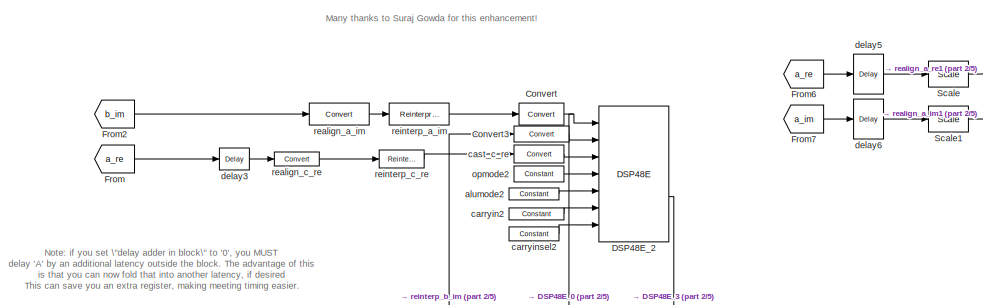
[diagram: twiddle_2x0 - part 1/5, top left region]
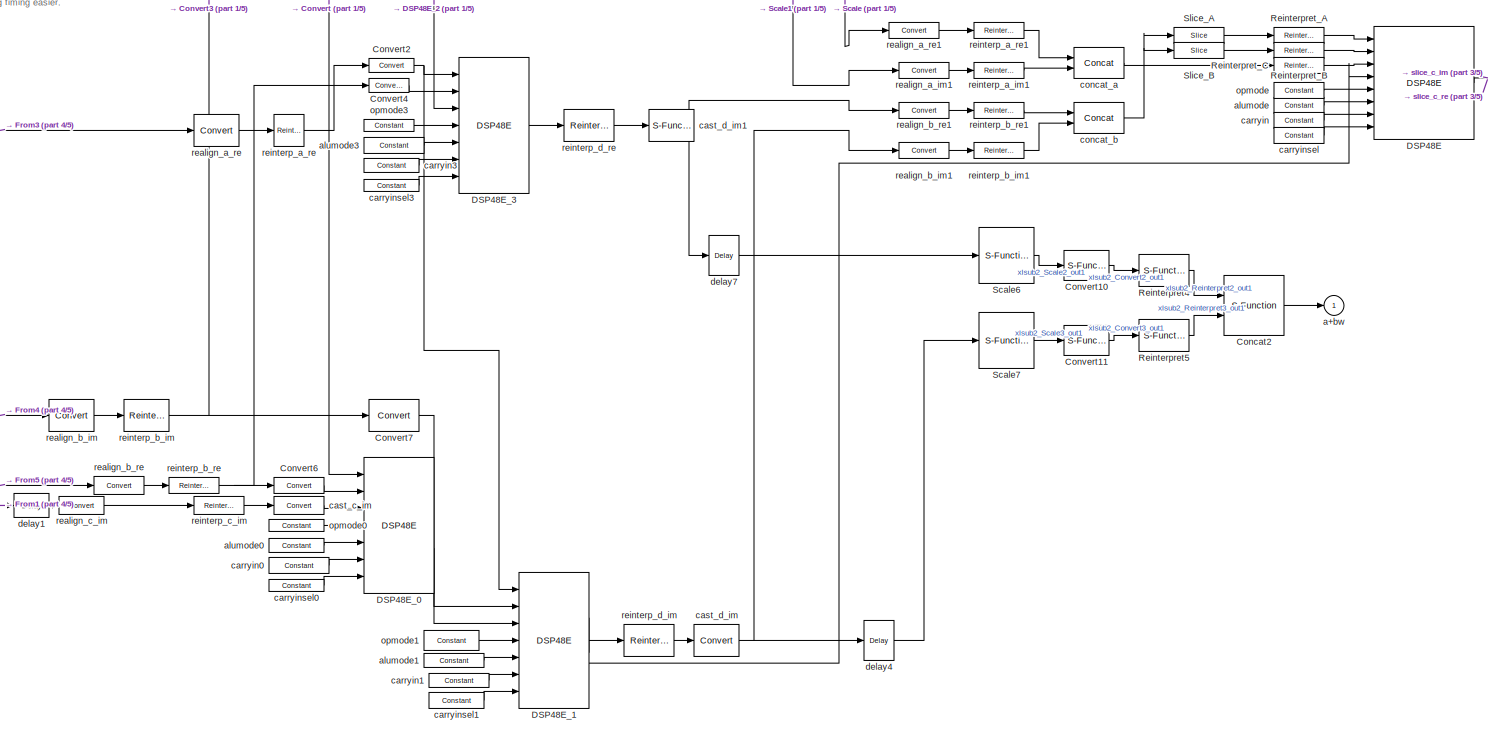
[diagram: twiddle_2x0 - part 2/5, central region]
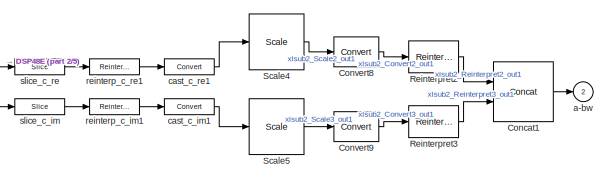
[diagram: twiddle_2x0 - part 3/5, middle right region]
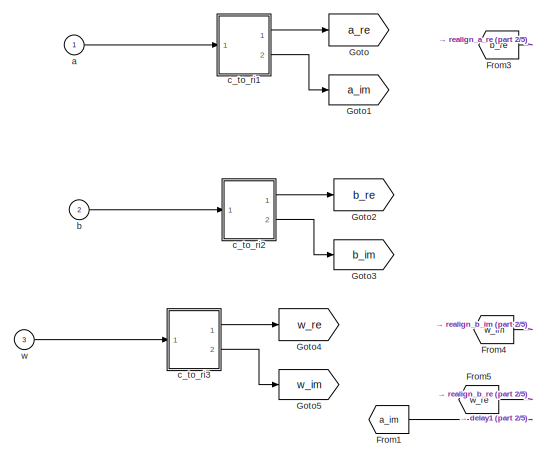
[diagram: twiddle_2x0 - part 4/5, middle left region]
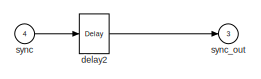
[diagram: twiddle_2x0 - part 5/5, bottom left region]
BLOCK [SubSystem] twiddle_2x0
  AncestorBlock = monroe_library/twiddle_cheap
  FunctionWithSeparateData = off
  MaskCallbackString = |||||||||
  MaskEnableString = on,on,on,on,on,on,on,on,on,on
  MaskHideContents = off
  MaskIconFrame = on
  MaskIconOpaque = on
  MaskIconRotate = none
  MaskIconUnits = autoscale
  MaskPortRotate = default
  MaskPromptString = # bits A|A binal point|# bits B|B binal point|# bits W|W binal point|Delay 'A' in-block? (0 or 1)|Delay 'A+BW' in-block? (0 or 1)|#bits Out|Downshift at end? (0 or 1)
  MaskStyleString = edit,edit,edit,edit,edit,edit,edit,edit,edit,edit
  MaskToolTipString = on,on,on,on,on,on,on,on,on,on
  MaskTunableValueString = on,on,on,on,on,on,on,on,on,on
  MaskValueString = 17|16|17|16|18|17|0|0|17|0
  MaskVariables = a_n_bits=@1;a_bin_pt=@2;b_n_bits=@3;b_bin_pt=@4;w_n_bits=@5;w_bin_pt=@6;a_delay=@7;apbw_delay=@8;out_n_bits=@9;downshift_at_end=@10;
  MaskVisibilityString = on,on,on,on,on,on,on,on,on,on
  MinAlgLoopOccurrences = off
  Opaque = off
  Ports = [4, 3]
  PropExecContextOutsideSubsystem = off
  RTWSystemCode = Auto
  RequestExecContextInheritance = off
  SID = 302
BLOCK [Reference] twiddle_2x0/Concat1  REF=xbsIndex_r4/Concat
  Ports = [2, 1]
  SID = 302:3342
  SourceBlock = xbsIndex_r4/Concat
  SourceType = Xilinx Bus Concatenator Block
  block_type = concat
  dbl_ovrd = off
  has_advanced_control = 0
  infoedit = Concatenates two or more inputs.  Output will be cast to an unsigned value with the binary point at zero.
  num_inputs = 2
  sg_icon_stat = 60,60,2,1,white,blue,0,16398980,right,,[ ],[ ]
  sggui_pos = -1,-1,-1,-1
BLOCK [S-Function] twiddle_2x0/Concat2
  CloseFcn = xlDestroyGui(gcbh);
  CopyFcn = xlBlockMoveCallback(gcbh);
  DeleteFcn = xlDestroyGui(gcbh);
  DestroyFcn = xlDestroyGui(gcbh);
  EnableBusSupport = off
  FunctionName = sysgen
  LoadFcn = xlBlockLoadCallback(gcbh);
  MaskCallbackString = |||||||||||
  MaskDescription = Concatenates two or more inputs.  Output will be cast to an unsigned value with the binary point at zero.
  MaskDisplay = fprintf('','COMMENT: begin icon graphics');\npatch([0 60 60 0 0 ],[0 0 60 60 0 ],[0.77 0.82 0.91 ]);\nplot([0 60 60 0 0 ],[0 0 60 60 0 ]);\npatch([12.2 23.76 31.76 39.76 47.76 31.76 20.2 12.2 ],[38.88 38.88 46.88 38.88 46.88 46.88 46.88 38.88 ],[1 1 1 ]);\npatch([20.2 31.76 23.76 12.2 20.2 ],[30.88 30.88 38.88 38.88 30.88 ],[0.931 0.946 0.973 ]);\npatch([12.2 23.76 31.76 20.2 12.2 ],[22.88 22.88 3...<+417ch>
  MaskEnableString = on,on,on,on,on,on,on,on,on,on,on,on
  MaskHelp = eval('');xlDoc('-book','sysgen','-topic','Concat');
  MaskIconFrame = off
  MaskIconOpaque = on
  MaskIconRotate = none
  MaskIconUnits = autoscale
  MaskInitialization = try\n  tmp_gcb = gcb;\n  tmp_gcbh = gcbh;\n  if (strcmp('SysGenIndex',get_param(bdroot(tmp_gcbh),'tag')) && ~isempty(regexp(bdroot(tmp_gcb), '^xbs', 'once')))\n    return;\n  end;\n  xlMungeMaskParams;\n  block_config = 'sysgen_blockset:Concat_config';\n\n  block_type='concat';\n\n  serialized_declarations = '{''num_inputs''=>''Int'',''sim_engine''=>''Int'',''sysgen_root''=>''String'',''block_type...<+436ch>
  MaskPortRotate = default
  MaskPromptString = |Number of inputs| |Override with doubles| | | | | | | |
  MaskSelfModifiable = on
  MaskStyleString = edit,edit,edit,checkbox,edit,edit,edit,edit,edit,edit,edit,edit
  MaskToolTipString = on,on,on,on,on,on,on,on,on,on,on,on
  MaskTunableValueString = on,on,on,on,on,on,on,on,on,on,on,on
  MaskType = Xilinx Bus Concatenator Block
  MaskValueString = Concatenates two or more inputs.  Output will be cast to an unsigned value with the binary point at zero.|2||off|0|-1,-1,-1,-1|concat||60,60,2,1,white,blue,0,16398980,right,,[ ],[ ]|fprintf('','COMMENT: begin icon graphics');\npatch([0 60 60 0 0 ],[0 0 60 60 0 ],[0.77 0.82 0.91 ]);\nplot([0 60 60 0 0 ],[0 0 60 60 0 ]);\npatch([12.2 23.76 31.76 39.76 47.76 31.76 20.2 12.2 ],[38.88 38.88 46.88 38.88...<+605ch>
  MaskVariables = infoedit=&1;num_inputs=@2;dbl_ovrd_sgadvanced=&3;dbl_ovrd=@4;has_advanced_control=@5;sggui_pos=&6;block_type=&7;block_version=&8;sg_icon_stat=&9;sg_mask_display=&10;sg_list_contents=&11;sg_blockgui_xml=&12;
  MaskVisibilityString = off,on,off,on,off,off,off,off,off,off,off,off
  ModelCloseFcn = xlDestroyGui(gcbh);
  MoveFcn = xlBlockMoveCallback(gcbh);
  OpenFcn = xlOpenGui(gcbh, 'concat_gui.xml', @xlmagicenablement, -1)
  Parameters = ptable_
  Ports = [2, 1]
  PostSaveFcn = xlBlockPostSaveCallback(gcbh);
  PreSaveFcn = xlBlockPreSaveCallback(gcbh);
  SID = 302:3355
BLOCK [Reference] twiddle_2x0/Convert  REF=xbsIndex_r4/Convert
  Ports = [1, 1]
  SID = 302:3338
  SourceBlock = xbsIndex_r4/Convert
  SourceType = Xilinx Type Converter Block
  arith_type = Signed  (2's comp)
  bin_pt = 0
  block_type = convert
  block_version = 11.4
  dbl_ovrd = off
  en = off
  has_advanced_control = 0
  infoedit = Hardware notes: rounding and saturating require hardware resources; truncating and wrapping do not.
  latency = 0
  n_bits = 30
  overflow = Wrap
  pipeline = on
  quantization = Truncate
  sg_icon_stat = 45,22,1,1,white,blue,0,edca21da,right,,[ ],[ ]
  sg_mask_display = fprintf('','COMMENT: begin icon graphics');\npatch([0 45 45 0 0 ],[0 0 22 22 0 ],[0.77 0.82 0.91 ]);\nplot([0 45 45 0 0 ],[0 0 22 22 0 ]);\npatch([15.325 19.66 22.66 25.66 28.66 22.66 18.325 15.325 ],[14.33 14.33 17.33 14.33 17.33 17.33 17.33 14.33 ],[1 1 1 ]);\npatch([18.325 22.66 19.66 15.325 18.325 ],[11.33 11.33 14.33 14.33 11.33 ],[0.931 0.946 0.973 ]);\npatch([15.325 19.66 22.66 18.325 15.32...<+332ch>
  sggui_pos = -1,-1,-1,-1
  xl_area = [0,0,0,0,0,0,0]
  xl_use_area = off
BLOCK [S-Function] twiddle_2x0/Convert10
  CloseFcn = xlDestroyGui(gcbh);
  CopyFcn = xlBlockMoveCallback(gcbh);
  DeleteFcn = xlDestroyGui(gcbh);
  DestroyFcn = xlDestroyGui(gcbh);
  EnableBusSupport = off
  FunctionName = sysgen
  LoadFcn = xlBlockLoadCallback(gcbh);
  MaskCallbackString = ||||||||||||||||||||||||||
  MaskDescription = Hardware notes: rounding and saturating require hardware resources; truncating and wrapping do not.
  MaskDisplay = fprintf('','COMMENT: begin icon graphics');\npatch([0 45 45 0 0 ],[0 0 30 30 0 ],[0.77 0.82 0.91 ]);\nplot([0 45 45 0 0 ],[0 0 30 30 0 ]);\npatch([13.1 18.88 22.88 26.88 30.88 22.88 17.1 13.1 ],[19.44 19.44 23.44 19.44 23.44 23.44 23.44 19.44 ],[1 1 1 ]);\npatch([17.1 22.88 18.88 13.1 17.1 ],[15.44 15.44 19.44 19.44 15.44 ],[0.931 0.946 0.973 ]);\npatch([13.1 18.88 22.88 17.1 13.1 ],[11.44 11.44 1...<+314ch>
  MaskEnableString = on,on,on,on,on,on,on,on,on,on,on,on,on,on,on,on,on,on,on,on,on,on,on,on,on,on,on
  MaskHelp = eval('');xlDoc('-book','sysgen','-topic','Convert');
  MaskIconFrame = off
  MaskIconOpaque = on
  MaskIconRotate = none
  MaskIconUnits = autoscale
  MaskInitialization = try\n  tmp_gcb = gcb;\n  tmp_gcbh = gcbh;\n  if (strcmp('SysGenIndex',get_param(bdroot(tmp_gcbh),'tag')) && ~isempty(regexp(bdroot(tmp_gcb), '^xbs', 'once')))\n    return;\n  end;\n  xlMungeMaskParams;\n  block_config = 'sysgen_blockset:Convert_config';\n\n  block_type='convert';\n\n  serialized_declarations = '{''arith_type''=>''Int'',''bin_pt''=>''Int'',''en''=>''Int'',''latency''=>''Int'',''n_b...<+586ch>  <repeated x3 — deduplicated; at blocks: Convert10, Convert11, cast_d_im1>
  MaskPortRotate = default
  MaskPromptString = | |Type|Number of bits|Binary point| |Quantization| |Overflow| |Provide enable port|Latency| |Override with doubles| |Pipeline for maximum performance| |Define FPGA area for resource estimation|FPGA area [slices, FFs, BRAMs, LUTs, IOBs, emb. mults, TBUFs]| | | | | | | |  <repeated x3 — deduplicated; at blocks: Convert10, Convert11, cast_d_im1>
  MaskSelfModifiable = on
  MaskStyleString = edit,edit,popup(Boolean|Signed  (2's comp)|Unsigned),edit,edit,edit,popup(Truncate|Round  (unbiased: +/- Inf)|Round  (unbiased: Even Values)),edit,popup(Wrap|Saturate|Flag as error),edit,checkbox,edit,edit,checkbox,edit,checkbox,edit,checkbox,edit,edit,edit,edit,edit,edit,edit,edit,edit  <repeated x3 — deduplicated; at blocks: Convert10, Convert11, cast_d_im1>
  MaskToolTipString = on,on,on,on,on,on,on,on,on,on,on,on,on,on,on,on,on,on,on,on,on,on,on,on,on,on,on
  MaskTunableValueString = on,on,on,on,on,on,on,on,on,on,on,on,on,on,on,on,on,on,on,on,on,on,on,on,on,on,on
  MaskType = Xilinx Type Converter Block
  MaskValueString = Hardware notes: rounding and saturating require hardware resources; truncating and wrapping do not.||Signed  (2's comp)|out_n_bits|out_n_bits-1||Truncate||Wrap||off|0||off||off||off|[0,0,0,0,0,0,0]|0|-1,-1,-1,-1|convert||45,30,1,1,white,blue,0,edca21da,right,,[ ],[ ]|fprintf('','COMMENT: begin icon graphics');\npatch([0 45 45 0 0 ],[0 0 30 30 0 ],[0.77 0.82 0.91 ]);\nplot([0 45 45 0 0 ],[0 0 30 30...<+584ch>
  MaskVariables = infoedit=&1;arith_type_sgadvanced=&2;arith_type=@3;n_bits=@4;bin_pt=@5;quantization_sgadvanced=&6;quantization=@7;overflow_sgadvanced=&8;overflow=@9;en_sgadvanced=&10;en=@11;latency=@12;dbl_ovrd_sgadvanced=&13;dbl_ovrd=@14;pipeline_sgadvanced=&15;pipeline=@16;xl_use_area_sgadvanced=&17;xl_use_area=@18;xl_area=@19;has_advanced_control=@20;sggui_pos=&21;block_type=&22;block_version=&23;sg_icon_stat=...<+65ch>  <repeated x3 — deduplicated; at blocks: Convert10, Convert11, cast_d_im1>
  MaskVisibilityString = off,off,on,on,on,off,on,off,on,off,on,on,off,on,off,on,off,on,on,off,off,off,off,off,off,off,off
  ModelCloseFcn = xlDestroyGui(gcbh);
  MoveFcn = xlBlockMoveCallback(gcbh);
  OpenFcn = xlOpenGui(gcbh, 'convert_gui.xml', @convertenablement, -1)
  Parameters = ptable_
  Ports = [1, 1]
  PostSaveFcn = xlBlockPostSaveCallback(gcbh);
  PreSaveFcn = xlBlockPreSaveCallback(gcbh);
  SID = 302:3356
BLOCK [S-Function] twiddle_2x0/Convert11
  CloseFcn = xlDestroyGui(gcbh);
  CopyFcn = xlBlockMoveCallback(gcbh);
  DeleteFcn = xlDestroyGui(gcbh);
  DestroyFcn = xlDestroyGui(gcbh);
  EnableBusSupport = off
  FunctionName = sysgen
  LoadFcn = xlBlockLoadCallback(gcbh);
  MaskCallbackString = ||||||||||||||||||||||||||
  MaskDescription = Hardware notes: rounding and saturating require hardware resources; truncating and wrapping do not.
  MaskDisplay = fprintf('','COMMENT: begin icon graphics');\npatch([0 45 45 0 0 ],[0 0 30 30 0 ],[0.77 0.82 0.91 ]);\nplot([0 45 45 0 0 ],[0 0 30 30 0 ]);\npatch([13.1 18.88 22.88 26.88 30.88 22.88 17.1 13.1 ],[19.44 19.44 23.44 19.44 23.44 23.44 23.44 19.44 ],[1 1 1 ]);\npatch([17.1 22.88 18.88 13.1 17.1 ],[15.44 15.44 19.44 19.44 15.44 ],[0.931 0.946 0.973 ]);\npatch([13.1 18.88 22.88 17.1 13.1 ],[11.44 11.44 1...<+314ch>
  MaskEnableString = on,on,on,on,on,on,on,on,on,on,on,on,on,on,on,on,on,on,on,on,on,on,on,on,on,on,on
  MaskHelp = eval('');xlDoc('-book','sysgen','-topic','Convert');
  MaskIconFrame = off
  MaskIconOpaque = on
  MaskIconRotate = none
  MaskIconUnits = autoscale
  MaskPortRotate = default
  MaskSelfModifiable = on
  MaskToolTipString = on,on,on,on,on,on,on,on,on,on,on,on,on,on,on,on,on,on,on,on,on,on,on,on,on,on,on
  MaskTunableValueString = on,on,on,on,on,on,on,on,on,on,on,on,on,on,on,on,on,on,on,on,on,on,on,on,on,on,on
  MaskType = Xilinx Type Converter Block
  MaskValueString = Hardware notes: rounding and saturating require hardware resources; truncating and wrapping do not.||Signed  (2's comp)|out_n_bits|out_n_bits-1||Truncate||Wrap||off|0||off||off||off|[0,0,0,0,0,0,0]|0|-1,-1,-1,-1|convert||45,30,1,1,white,blue,0,edca21da,right,,[ ],[ ]|fprintf('','COMMENT: begin icon graphics');\npatch([0 45 45 0 0 ],[0 0 30 30 0 ],[0.77 0.82 0.91 ]);\nplot([0 45 45 0 0 ],[0 0 30 30...<+584ch>
  MaskVisibilityString = off,off,on,on,on,off,on,off,on,off,on,on,off,on,off,on,off,on,on,off,off,off,off,off,off,off,off
  ModelCloseFcn = xlDestroyGui(gcbh);
  MoveFcn = xlBlockMoveCallback(gcbh);
  OpenFcn = xlOpenGui(gcbh, 'convert_gui.xml', @convertenablement, -1)
  Parameters = ptable_
  Ports = [1, 1]
  PostSaveFcn = xlBlockPostSaveCallback(gcbh);
  PreSaveFcn = xlBlockPreSaveCallback(gcbh);
  SID = 302:3357
BLOCK [Reference] twiddle_2x0/Convert2  REF=xbsIndex_r4/Convert
  Ports = [1, 1]
  SID = 302:3338
  SourceBlock = xbsIndex_r4/Convert
  SourceType = Xilinx Type Converter Block
  arith_type = Signed  (2's comp)
  bin_pt = 0
  block_type = convert
  block_version = 11.4
  dbl_ovrd = off
  en = off
  has_advanced_control = 0
  infoedit = Hardware notes: rounding and saturating require hardware resources; truncating and wrapping do not.
  latency = 0
  n_bits = 30
  overflow = Wrap
  pipeline = on
  quantization = Truncate
  sg_icon_stat = 45,14,1,1,white,blue,0,edca21da,right,,[ ],[ ]
  sg_mask_display = fprintf('','COMMENT: begin icon graphics');\npatch([0 45 45 0 0 ],[0 0 14 14 0 ],[0.77 0.82 0.91 ]);\nplot([0 45 45 0 0 ],[0 0 14 14 0 ]);\npatch([17.55 20.44 22.44 24.44 26.44 22.44 19.55 17.55 ],[9.22 9.22 11.22 9.22 11.22 11.22 11.22 9.22 ],[1 1 1 ]);\npatch([19.55 22.44 20.44 17.55 19.55 ],[7.22 7.22 9.22 9.22 7.22 ],[0.931 0.946 0.973 ]);\npatch([17.55 20.44 22.44 19.55 17.55 ],[5.22 5.22 7.2...<+311ch>
  sggui_pos = -1,-1,-1,-1
  xl_area = [0,0,0,0,0,0,0]
  xl_use_area = off
BLOCK [Reference] twiddle_2x0/Convert3  REF=xbsIndex_r4/Convert
  Ports = [1, 1]
  SID = 302:3338
  SourceBlock = xbsIndex_r4/Convert
  SourceType = Xilinx Type Converter Block
  arith_type = Signed  (2's comp)
  bin_pt = 0
  block_type = convert
  block_version = 11.4
  dbl_ovrd = off
  en = off
  has_advanced_control = 0
  infoedit = Hardware notes: rounding and saturating require hardware resources; truncating and wrapping do not.
  latency = 0
  n_bits = 18
  overflow = Wrap
  pipeline = on
  quantization = Truncate
  sg_icon_stat = 55,16,1,1,white,blue,0,edca21da,right,,[ ],[ ]
  sg_mask_display = fprintf('','COMMENT: begin icon graphics');\npatch([0 55 55 0 0 ],[0 0 16 16 0 ],[0.77 0.82 0.91 ]);\nplot([0 55 55 0 0 ],[0 0 16 16 0 ]);\npatch([22.55 25.44 27.44 29.44 31.44 27.44 24.55 22.55 ],[10.22 10.22 12.22 10.22 12.22 12.22 12.22 10.22 ],[1 1 1 ]);\npatch([24.55 27.44 25.44 22.55 24.55 ],[8.22 8.22 10.22 10.22 8.22 ],[0.931 0.946 0.973 ]);\npatch([22.55 25.44 27.44 24.55 22.55 ],[6.22 6....<+317ch>
  sggui_pos = -1,-1,-1,-1
  xl_area = [0,0,0,0,0,0,0]
  xl_use_area = off
BLOCK [Reference] twiddle_2x0/Convert4  REF=xbsIndex_r4/Convert
  Ports = [1, 1]
  SID = 302:3338
  SourceBlock = xbsIndex_r4/Convert
  SourceType = Xilinx Type Converter Block
  arith_type = Signed  (2's comp)
  bin_pt = 0
  block_type = convert
  block_version = 11.4
  dbl_ovrd = off
  en = off
  has_advanced_control = 0
  infoedit = Hardware notes: rounding and saturating require hardware resources; truncating and wrapping do not.
  latency = 0
  n_bits = 18
  overflow = Wrap
  pipeline = on
  quantization = Truncate
  sg_icon_stat = 40,14,1,1,white,blue,0,edca21da,right,,[ ],[ ]
  sg_mask_display = fprintf('','COMMENT: begin icon graphics');\npatch([0 40 40 0 0 ],[0 0 14 14 0 ],[0.77 0.82 0.91 ]);\nplot([0 40 40 0 0 ],[0 0 14 14 0 ]);\npatch([15.55 18.44 20.44 22.44 24.44 20.44 17.55 15.55 ],[9.22 9.22 11.22 9.22 11.22 11.22 11.22 9.22 ],[1 1 1 ]);\npatch([17.55 20.44 18.44 15.55 17.55 ],[7.22 7.22 9.22 9.22 7.22 ],[0.931 0.946 0.973 ]);\npatch([15.55 18.44 20.44 17.55 15.55 ],[5.22 5.22 7.2...<+311ch>
  sggui_pos = -1,-1,-1,-1
  xl_area = [0,0,0,0,0,0,0]
  xl_use_area = off
BLOCK [Reference] twiddle_2x0/Convert6  REF=xbsIndex_r4/Convert
  Ports = [1, 1]
  SID = 302:3338
  SourceBlock = xbsIndex_r4/Convert
  SourceType = Xilinx Type Converter Block
  arith_type = Signed  (2's comp)
  bin_pt = 0
  block_type = convert
  block_version = 11.4
  dbl_ovrd = off
  en = off
  has_advanced_control = 0
  infoedit = Hardware notes: rounding and saturating require hardware resources; truncating and wrapping do not.
  latency = 0
  n_bits = 18
  overflow = Wrap
  pipeline = on
  quantization = Truncate
  sg_icon_stat = 50,16,1,1,white,blue,0,edca21da,right,,[ ],[ ]
  sg_mask_display = fprintf('','COMMENT: begin icon graphics');\npatch([0 50 50 0 0 ],[0 0 16 16 0 ],[0.77 0.82 0.91 ]);\nplot([0 50 50 0 0 ],[0 0 16 16 0 ]);\npatch([20.55 23.44 25.44 27.44 29.44 25.44 22.55 20.55 ],[10.22 10.22 12.22 10.22 12.22 12.22 12.22 10.22 ],[1 1 1 ]);\npatch([22.55 25.44 23.44 20.55 22.55 ],[8.22 8.22 10.22 10.22 8.22 ],[0.931 0.946 0.973 ]);\npatch([20.55 23.44 25.44 22.55 20.55 ],[6.22 6....<+317ch>
  sggui_pos = -1,-1,-1,-1
  xl_area = [0,0,0,0,0,0,0]
  xl_use_area = off
BLOCK [Reference] twiddle_2x0/Convert7  REF=xbsIndex_r4/Convert
  Ports = [1, 1]
  SID = 302:3338
  SourceBlock = xbsIndex_r4/Convert
  SourceType = Xilinx Type Converter Block
  arith_type = Signed  (2's comp)
  bin_pt = 0
  block_type = convert
  block_version = 11.4
  dbl_ovrd = off
  en = off
  has_advanced_control = 0
  infoedit = Hardware notes: rounding and saturating require hardware resources; truncating and wrapping do not.
  latency = 0
  n_bits = 18
  overflow = Wrap
  pipeline = on
  quantization = Truncate
  sg_icon_stat = 50,32,1,1,white,blue,0,edca21da,right,,[ ],[ ]
  sg_mask_display = fprintf('','COMMENT: begin icon graphics');\npatch([0 50 50 0 0 ],[0 0 32 32 0 ],[0.77 0.82 0.91 ]);\nplot([0 50 50 0 0 ],[0 0 32 32 0 ]);\npatch([16.1 21.88 25.88 29.88 33.88 25.88 20.1 16.1 ],[20.44 20.44 24.44 20.44 24.44 24.44 24.44 20.44 ],[1 1 1 ]);\npatch([20.1 25.88 21.88 16.1 20.1 ],[16.44 16.44 20.44 20.44 16.44 ],[0.931 0.946 0.973 ]);\npatch([16.1 21.88 25.88 20.1 16.1 ],[12.44 12.44 1...<+316ch>
  sggui_pos = -1,-1,-1,-1
  xl_area = [0,0,0,0,0,0,0]
  xl_use_area = off
BLOCK [Reference] twiddle_2x0/Convert8  REF=xbsIndex_r4/Convert
  Ports = [1, 1]
  SID = 302:3345
  SourceBlock = xbsIndex_r4/Convert
  SourceType = Xilinx Type Converter Block
  arith_type = Signed  (2's comp)
  bin_pt = out_n_bits-1
  block_type = convert
  dbl_ovrd = off
  en = off
  has_advanced_control = 0
  infoedit = Hardware notes: rounding and saturating require hardware resources; truncating and wrapping do not.
  latency = 0
  n_bits = out_n_bits
  overflow = Wrap
  pipeline = off
  quantization = Truncate
  sg_icon_stat = 45,30,1,1,white,blue,0,edca21da,right,,[ ],[ ]
  sg_mask_display = fprintf('','COMMENT: begin icon graphics');\npatch([0 45 45 0 0 ],[0 0 30 30 0 ],[0.77 0.82 0.91 ]);\nplot([0 45 45 0 0 ],[0 0 30 30 0 ]);\npatch([13.1 18.88 22.88 26.88 30.88 22.88 17.1 13.1 ],[19.44 19.44 23.44 19.44 23.44 23.44 23.44 19.44 ],[1 1 1 ]);\npatch([17.1 22.88 18.88 13.1 17.1 ],[15.44 15.44 19.44 19.44 15.44 ],[0.931 0.946 0.973 ]);\npatch([13.1 18.88 22.88 17.1 13.1 ],[11.44 11.44 1...<+314ch>
  sggui_pos = -1,-1,-1,-1
  xl_area = [0,0,0,0,0,0,0]
  xl_use_area = off
BLOCK [Reference] twiddle_2x0/Convert9  REF=xbsIndex_r4/Convert
  Ports = [1, 1]
  SID = 302:3346
  SourceBlock = xbsIndex_r4/Convert
  SourceType = Xilinx Type Converter Block
  arith_type = Signed  (2's comp)
  bin_pt = out_n_bits-1
  block_type = convert
  dbl_ovrd = off
  en = off
  has_advanced_control = 0
  infoedit = Hardware notes: rounding and saturating require hardware resources; truncating and wrapping do not.
  latency = 0
  n_bits = out_n_bits
  overflow = Wrap
  pipeline = off
  quantization = Truncate
  sg_icon_stat = 45,30,1,1,white,blue,0,edca21da,right,,[ ],[ ]
  sg_mask_display = fprintf('','COMMENT: begin icon graphics');\npatch([0 45 45 0 0 ],[0 0 30 30 0 ],[0.77 0.82 0.91 ]);\nplot([0 45 45 0 0 ],[0 0 30 30 0 ]);\npatch([13.1 18.88 22.88 26.88 30.88 22.88 17.1 13.1 ],[19.44 19.44 23.44 19.44 23.44 23.44 23.44 19.44 ],[1 1 1 ]);\npatch([17.1 22.88 18.88 13.1 17.1 ],[15.44 15.44 19.44 19.44 15.44 ],[0.931 0.946 0.973 ]);\npatch([13.1 18.88 22.88 17.1 13.1 ],[11.44 11.44 1...<+314ch>
  sggui_pos = -1,-1,-1,-1
  xl_area = [0,0,0,0,0,0,0]
  xl_use_area = off
BLOCK [Reference] twiddle_2x0/DSP48E  REF=xbsIndex_r4/DSP48E
  Ports = [8, 1]
  SID = 302:3338
  SourceBlock = xbsIndex_r4/DSP48E
  SourceType = Xilinx DSP48E Block
  addsub_mode = TWO24
  block_type = dsp48e
  block_version = 10.1.3
  en_a1 = off
  en_a2 = off
  en_all = off
  en_alumode = off
  en_b1 = off
  en_b2 = off
  en_c = off
  en_carry_in = off
  en_ctrl = off
  en_mult = off
  en_multcarryin = off
  en_p = off
  has_advanced_control = 0
  mask_from_creg = off
  pattern = '000000000000'
  pattern_from_creg = off
  pattern_mask = '3FFFFFFFFFFF'
  pipeline_a = 1
  pipeline_acout = 1
  pipeline_alumode = on
  pipeline_b = 1
  pipeline_bcout = 1
  pipeline_c = on
  pipeline_carryin = on
  pipeline_carryinsel = on
  pipeline_mult = on
  pipeline_opmode = on
  pipeline_p = on
  reset_preg = off
  rst_a = off
  rst_all = off
  rst_alumode = off
  rst_b = off
  rst_c = off
  rst_carry_in = off
  rst_ctrl = off
  rst_mult = off
  rst_p = off
  sel_rounding_mask = Select mask
  sg_icon_stat = 100,113,8,1,white,blue,0,9d8bf365,right,,[ ],[ ]
  sg_mask_display = fprintf('','COMMENT: begin icon graphics');\npatch([0 100 100 0 0 ],[0 0 113 113 0 ],[0.77 0.82 0.91 ]);\nplot([0 100 100 0 0 ],[0 0 113 113 0 ]);\npatch([18.85 39.08 53.08 67.08 81.08 53.08 32.85 18.85 ],[71.54 71.54 85.54 71.54 85.54 85.54 85.54 71.54 ],[1 1 1 ]);\npatch([32.85 53.08 39.08 18.85 32.85 ],[57.54 57.54 71.54 71.54 57.54 ],[0.931 0.946 0.973 ]);\npatch([18.85 39.08 53.08 32.85 18.85...<+706ch>
  sggui_pos = 224,37,658,967
  use_a = Direct from A Port
  use_acout = off
  use_b = Direct from B Port
  use_bcout = off
  use_carrycascin = off
  use_carrycascout = off
  use_carryout = off
  use_creg = on
  use_multsignin = off
  use_multsignout = off
  use_op = off
  use_overflow = off
  use_patternbdetect = off
  use_patterndetect = off
  use_pcin = on
  use_pcout = off
  use_synth_model = off
  use_underflow = off
  xl_area = [0,0,0,0,0,0,0]
  xl_use_area = off
  xl_useadderonly = on
BLOCK [Reference] twiddle_2x0/DSP48E_0  REF=xbsIndex_r4/DSP48E
  Ports = [7, 2]
  SID = 302:3338
  SourceBlock = xbsIndex_r4/DSP48E
  SourceType = Xilinx DSP48E Block
  addsub_mode = ONE48
  block_type = dsp48e
  block_version = 11.4
  en_a1 = off
  en_a2 = off
  en_all = off
  en_alumode = off
  en_b1 = off
  en_b2 = off
  en_c = off
  en_carry_in = off
  en_ctrl = off
  en_mult = off
  en_multcarryin = off
  en_p = off
  has_advanced_control = 0
  mask_from_creg = off
  pattern = '000000000000'
  pattern_from_creg = off
  pattern_mask = '3FFFFFFFFFFF'
  pipeline_a = 1
  pipeline_acout = 1
  pipeline_alumode = on
  pipeline_b = 1
  pipeline_bcout = 1
  pipeline_c = on
  pipeline_carryin = on
  pipeline_carryinsel = on
  pipeline_mult = on
  pipeline_opmode = on
  pipeline_p = on
  reset_preg = off
  rst_a = off
  rst_all = off
  rst_alumode = off
  rst_b = off
  rst_c = off
  rst_carry_in = off
  rst_ctrl = off
  rst_mult = off
  rst_p = off
  sel_rounding_mask = Select mask
  sg_icon_stat = 70,136,7,2,white,blue,0,9e3e5abd,right,,[ ],[ ]
  sg_mask_display = fprintf('','COMMENT: begin icon graphics');\npatch([0 70 70 0 0 ],[0 0 136 136 0 ],[0.77 0.82 0.91 ]);\nplot([0 70 70 0 0 ],[0 0 136 136 0 ]);\npatch([12.75 27.2 37.2 47.2 57.2 37.2 22.75 12.75 ],[79.1 79.1 89.1 79.1 89.1 89.1 89.1 79.1 ],[1 1 1 ]);\npatch([22.75 37.2 27.2 12.75 22.75 ],[69.1 69.1 79.1 79.1 69.1 ],[0.931 0.946 0.973 ]);\npatch([12.75 27.2 37.2 22.75 12.75 ],[59.1 59.1 69.1 69.1 59...<+668ch>
  sggui_pos = -1,-1,-1,-1
  use_a = Direct from A Port
  use_acout = off
  use_b = Direct from B Port
  use_bcout = off
  use_carrycascin = off
  use_carrycascout = off
  use_carryout = off
  use_creg = on
  use_multsignin = off
  use_multsignout = off
  use_op = off
  use_overflow = off
  use_patternbdetect = off
  use_patterndetect = off
  use_pcin = off
  use_pcout = on
  use_synth_model = off
  use_underflow = off
  xl_area = [0,0,0,0,0,0,0]
  xl_use_area = off
  xl_useadderonly = off
BLOCK [Reference] twiddle_2x0/DSP48E_1  REF=xbsIndex_r4/DSP48E
  Ports = [7, 2]
  SID = 302:3338
  SourceBlock = xbsIndex_r4/DSP48E
  SourceType = Xilinx DSP48E Block
  addsub_mode = ONE48
  block_type = dsp48e
  block_version = 11.4
  en_a1 = off
  en_a2 = off
  en_all = off
  en_alumode = off
  en_b1 = off
  en_b2 = off
  en_c = off
  en_carry_in = off
  en_ctrl = off
  en_mult = off
  en_multcarryin = off
  en_p = off
  has_advanced_control = 0
  mask_from_creg = off
  pattern = '000000000000'
  pattern_from_creg = off
  pattern_mask = '3FFFFFFFFFFF'
  pipeline_a = 2
  pipeline_acout = 1
  pipeline_alumode = on
  pipeline_b = 2
  pipeline_bcout = 1
  pipeline_c = on
  pipeline_carryin = on
  pipeline_carryinsel = on
  pipeline_mult = on
  pipeline_opmode = on
  pipeline_p = on
  reset_preg = off
  rst_a = off
  rst_all = off
  rst_alumode = off
  rst_b = off
  rst_c = off
  rst_carry_in = off
  rst_ctrl = off
  rst_mult = off
  rst_p = off
  sel_rounding_mask = Select mask
  sg_icon_stat = 70,136,7,2,white,blue,0,06b4fe6a,right,,[ ],[ ]
  sg_mask_display = fprintf('','COMMENT: begin icon graphics');\npatch([0 70 70 0 0 ],[0 0 136 136 0 ],[0.77 0.82 0.91 ]);\nplot([0 70 70 0 0 ],[0 0 136 136 0 ]);\npatch([12.75 27.2 37.2 47.2 57.2 37.2 22.75 12.75 ],[79.1 79.1 89.1 79.1 89.1 89.1 89.1 79.1 ],[1 1 1 ]);\npatch([22.75 37.2 27.2 12.75 22.75 ],[69.1 69.1 79.1 79.1 69.1 ],[0.931 0.946 0.973 ]);\npatch([12.75 27.2 37.2 22.75 12.75 ],[59.1 59.1 69.1 69.1 59...<+671ch>
  sggui_pos = -1,-1,-1,-1
  use_a = Direct from A Port
  use_acout = off
  use_b = Direct from B Port
  use_bcout = off
  use_carrycascin = off
  use_carrycascout = off
  use_carryout = off
  use_creg = off
  use_multsignin = off
  use_multsignout = off
  use_op = off
  use_overflow = off
  use_patternbdetect = off
  use_patterndetect = off
  use_pcin = on
  use_pcout = on
  use_synth_model = off
  use_underflow = off
  xl_area = [0,0,0,0,0,0,0]
  xl_use_area = off
  xl_useadderonly = off
BLOCK [Reference] twiddle_2x0/DSP48E_2  REF=xbsIndex_r4/DSP48E
  Ports = [7, 2]
  SID = 302:3338
  SourceBlock = xbsIndex_r4/DSP48E
  SourceType = Xilinx DSP48E Block
  addsub_mode = ONE48
  block_type = dsp48e
  block_version = 11.4
  en_a1 = off
  en_a2 = off
  en_all = off
  en_alumode = off
  en_b1 = off
  en_b2 = off
  en_c = off
  en_carry_in = off
  en_ctrl = off
  en_mult = off
  en_multcarryin = off
  en_p = off
  has_advanced_control = 0
  mask_from_creg = off
  pattern = '000000000000'
  pattern_from_creg = off
  pattern_mask = '3FFFFFFFFFFF'
  pipeline_a = 1
  pipeline_acout = 1
  pipeline_alumode = on
  pipeline_b = 1
  pipeline_bcout = 1
  pipeline_c = on
  pipeline_carryin = on
  pipeline_carryinsel = on
  pipeline_mult = on
  pipeline_opmode = on
  pipeline_p = on
  reset_preg = off
  rst_a = off
  rst_all = off
  rst_alumode = off
  rst_b = off
  rst_c = off
  rst_carry_in = off
  rst_ctrl = off
  rst_mult = off
  rst_p = off
  sel_rounding_mask = Select mask
  sg_icon_stat = 70,136,7,2,white,blue,0,9e3e5abd,right,,[ ],[ ]
  sg_mask_display = fprintf('','COMMENT: begin icon graphics');\npatch([0 70 70 0 0 ],[0 0 136 136 0 ],[0.77 0.82 0.91 ]);\nplot([0 70 70 0 0 ],[0 0 136 136 0 ]);\npatch([12.75 27.2 37.2 47.2 57.2 37.2 22.75 12.75 ],[79.1 79.1 89.1 79.1 89.1 89.1 89.1 79.1 ],[1 1 1 ]);\npatch([22.75 37.2 27.2 12.75 22.75 ],[69.1 69.1 79.1 79.1 69.1 ],[0.931 0.946 0.973 ]);\npatch([12.75 27.2 37.2 22.75 12.75 ],[59.1 59.1 69.1 69.1 59...<+668ch>
  sggui_pos = 1658,167,544,804
  use_a = Direct from A Port
  use_acout = off
  use_b = Direct from B Port
  use_bcout = off
  use_carrycascin = off
  use_carrycascout = off
  use_carryout = off
  use_creg = on
  use_multsignin = off
  use_multsignout = off
  use_op = off
  use_overflow = off
  use_patternbdetect = off
  use_patterndetect = off
  use_pcin = off
  use_pcout = on
  use_synth_model = off
  use_underflow = off
  xl_area = [0,0,0,0,0,0,0]
  xl_use_area = off
  xl_useadderonly = off
BLOCK [Reference] twiddle_2x0/DSP48E_3  REF=xbsIndex_r4/DSP48E
  Ports = [7, 1]
  SID = 302:3338
  SourceBlock = xbsIndex_r4/DSP48E
  SourceType = Xilinx DSP48E Block
  addsub_mode = ONE48
  block_type = dsp48e
  block_version = 11.4
  en_a1 = off
  en_a2 = off
  en_all = off
  en_alumode = off
  en_b1 = off
  en_b2 = off
  en_c = off
  en_carry_in = off
  en_ctrl = off
  en_mult = off
  en_multcarryin = off
  en_p = off
  has_advanced_control = 0
  mask_from_creg = off
  pattern = '000000000000'
  pattern_from_creg = off
  pattern_mask = '3FFFFFFFFFFF'
  pipeline_a = 2
  pipeline_acout = 1
  pipeline_alumode = on
  pipeline_b = 2
  pipeline_bcout = 1
  pipeline_c = on
  pipeline_carryin = on
  pipeline_carryinsel = on
  pipeline_mult = on
  pipeline_opmode = on
  pipeline_p = on
  reset_preg = off
  rst_a = off
  rst_all = off
  rst_alumode = off
  rst_b = off
  rst_c = off
  rst_carry_in = off
  rst_ctrl = off
  rst_mult = off
  rst_p = off
  sel_rounding_mask = Select mask
  sg_icon_stat = 70,136,7,1,white,blue,0,b41431cb,right,,[ ],[ ]
  sg_mask_display = fprintf('','COMMENT: begin icon graphics');\npatch([0 70 70 0 0 ],[0 0 136 136 0 ],[0.77 0.82 0.91 ]);\nplot([0 70 70 0 0 ],[0 0 136 136 0 ]);\npatch([12.75 27.2 37.2 47.2 57.2 37.2 22.75 12.75 ],[79.1 79.1 89.1 79.1 89.1 89.1 89.1 79.1 ],[1 1 1 ]);\npatch([22.75 37.2 27.2 12.75 22.75 ],[69.1 69.1 79.1 79.1 69.1 ],[0.931 0.946 0.973 ]);\npatch([12.75 27.2 37.2 22.75 12.75 ],[59.1 59.1 69.1 69.1 59...<+623ch>
  sggui_pos = 2189,312,544,804
  use_a = Direct from A Port
  use_acout = off
  use_b = Direct from B Port
  use_bcout = off
  use_carrycascin = off
  use_carrycascout = off
  use_carryout = off
  use_creg = off
  use_multsignin = off
  use_multsignout = off
  use_op = off
  use_overflow = off
  use_patternbdetect = off
  use_patterndetect = off
  use_pcin = on
  use_pcout = off
  use_synth_model = off
  use_underflow = off
  xl_area = [0,0,0,0,0,0,0]
  xl_use_area = off
  xl_useadderonly = off
BLOCK [From] twiddle_2x0/From
  GotoTag = a_re
  SID = 302:3338
BLOCK [From] twiddle_2x0/From1
  GotoTag = a_im
  SID = 302:3338
BLOCK [From] twiddle_2x0/From2
  GotoTag = b_im
  SID = 302:3338
BLOCK [From] twiddle_2x0/From3
  GotoTag = b_re
  SID = 302:3338
BLOCK [From] twiddle_2x0/From4
  GotoTag = w_im
  SID = 302:3338
BLOCK [From] twiddle_2x0/From5
  GotoTag = w_re
  SID = 302:3338
BLOCK [From] twiddle_2x0/From6
  GotoTag = a_re
  SID = 302:3338
BLOCK [From] twiddle_2x0/From7
  GotoTag = a_im
  SID = 302:3338
BLOCK [Goto] twiddle_2x0/Goto
  GotoTag = a_re
  SID = 302:3338
  TagVisibility = local
BLOCK [Goto] twiddle_2x0/Goto1
  GotoTag = a_im
  SID = 302:3338
  TagVisibility = local
BLOCK [Goto] twiddle_2x0/Goto2
  GotoTag = b_re
  SID = 302:3338
  TagVisibility = local
BLOCK [Goto] twiddle_2x0/Goto3
  GotoTag = b_im
  SID = 302:3338
  TagVisibility = local
BLOCK [Goto] twiddle_2x0/Goto4
  GotoTag = w_re
  SID = 302:3338
  TagVisibility = local
BLOCK [Goto] twiddle_2x0/Goto5
  GotoTag = w_im
  SID = 302:3338
  TagVisibility = local
BLOCK [Reference] twiddle_2x0/Reinterpret2  REF=xbsIndex_r4/Reinterpret
  Ports = [1, 1]
  SID = 302:3349
  SourceBlock = xbsIndex_r4/Reinterpret
  SourceType = Xilinx Type Reinterpreter Block
  arith_type = Unsigned
  bin_pt = 0
  block_type = reinterpret
  force_arith_type = on
  force_bin_pt = on
  has_advanced_control = 0
  sg_icon_stat = 50,32,1,1,white,blue,0,6b04d0b0,right,,[ ],[ ]
  sg_mask_display = fprintf('','COMMENT: begin icon graphics');\npatch([0 50 50 0 0 ],[0 0 32 32 0 ],[0.77 0.82 0.91 ]);\nplot([0 50 50 0 0 ],[0 0 32 32 0 ]);\npatch([16.1 21.88 25.88 29.88 33.88 25.88 20.1 16.1 ],[20.44 20.44 24.44 20.44 24.44 24.44 24.44 20.44 ],[1 1 1 ]);\npatch([20.1 25.88 21.88 16.1 20.1 ],[16.44 16.44 20.44 20.44 16.44 ],[0.931 0.946 0.973 ]);\npatch([16.1 21.88 25.88 20.1 16.1 ],[12.44 12.44 1...<+306ch>
  sggui_pos = -1,-1,-1,-1
BLOCK [Reference] twiddle_2x0/Reinterpret3  REF=xbsIndex_r4/Reinterpret
  Ports = [1, 1]
  SID = 302:3350
  SourceBlock = xbsIndex_r4/Reinterpret
  SourceType = Xilinx Type Reinterpreter Block
  arith_type = Unsigned
  bin_pt = 0
  block_type = reinterpret
  force_arith_type = on
  force_bin_pt = on
  has_advanced_control = 0
  sg_icon_stat = 50,32,1,1,white,blue,0,6b04d0b0,right,,[ ],[ ]
  sg_mask_display = fprintf('','COMMENT: begin icon graphics');\npatch([0 50 50 0 0 ],[0 0 32 32 0 ],[0.77 0.82 0.91 ]);\nplot([0 50 50 0 0 ],[0 0 32 32 0 ]);\npatch([16.1 21.88 25.88 29.88 33.88 25.88 20.1 16.1 ],[20.44 20.44 24.44 20.44 24.44 24.44 24.44 20.44 ],[1 1 1 ]);\npatch([20.1 25.88 21.88 16.1 20.1 ],[16.44 16.44 20.44 20.44 16.44 ],[0.931 0.946 0.973 ]);\npatch([16.1 21.88 25.88 20.1 16.1 ],[12.44 12.44 1...<+306ch>
  sggui_pos = -1,-1,-1,-1
BLOCK [S-Function] twiddle_2x0/Reinterpret4
  CloseFcn = xlDestroyGui(gcbh);
  CopyFcn = xlBlockMoveCallback(gcbh);
  DeleteFcn = xlDestroyGui(gcbh);
  DestroyFcn = xlDestroyGui(gcbh);
  EnableBusSupport = off
  FunctionName = sysgen
  LoadFcn = xlBlockLoadCallback(gcbh);
  MaskCallbackString = |||||||||||||||
  MaskDescription = Changes signal type without altering the binary representation.   You can changed the signal between signed and unsigned, and relocate the binary point.\n\nHardware notes: In hardware this block costs nothing.\n\nExample:  Suppose the input is 6 bits wide, signed, with 2 fractional bits, and the output is forced to unsigned with 0 fractional bits.  Then an input of -2.0 (1110.00 in binary 2's comp...<+51ch>
  MaskDisplay = fprintf('','COMMENT: begin icon graphics');\npatch([0 50 50 0 0 ],[0 0 32 32 0 ],[0.77 0.82 0.91 ]);\nplot([0 50 50 0 0 ],[0 0 32 32 0 ]);\npatch([16.1 21.88 25.88 29.88 33.88 25.88 20.1 16.1 ],[20.44 20.44 24.44 20.44 24.44 24.44 24.44 20.44 ],[1 1 1 ]);\npatch([20.1 25.88 21.88 16.1 20.1 ],[16.44 16.44 20.44 20.44 16.44 ],[0.931 0.946 0.973 ]);\npatch([16.1 21.88 25.88 20.1 16.1 ],[12.44 12.44 1...<+306ch>
  MaskEnableString = on,on,on,on,on,on,on,on,on,on,on,on,on,on,on,on
  MaskHelp = eval('');xlDoc('-book','sysgen','-topic','Reinterpret');
  MaskIconFrame = off
  MaskIconOpaque = on
  MaskIconRotate = none
  MaskIconUnits = autoscale
  MaskInitialization = try\n  tmp_gcb = gcb;\n  tmp_gcbh = gcbh;\n  if (strcmp('SysGenIndex',get_param(bdroot(tmp_gcbh),'tag')) && ~isempty(regexp(bdroot(tmp_gcb), '^xbs', 'once')))\n    return;\n  end;\n  xlMungeMaskParams;\n  block_config = 'sysgen_blockset:Reinterpret_config';\n\n  block_type='reinterpret';\n\n  serialized_declarations = '{''arith_type''=>''Int'',''bin_pt''=>''Int'',''force_arith_type''=>''Bool'',''f...<+452ch>
  MaskPortRotate = default
  MaskPromptString = | |Force Arithmetic Type| |Output Arithmetic Type| |Force Binary Point|Output Binary Point| | | | | | | |
  MaskSelfModifiable = on
  MaskStyleString = edit,edit,checkbox,edit,popup(Unsigned|Signed  (2's comp)),edit,checkbox,edit,edit,edit,edit,edit,edit,edit,edit,edit
  MaskToolTipString = on,on,on,on,on,on,on,on,on,on,on,on,on,on,on,on
  MaskTunableValueString = on,on,on,on,on,on,on,on,on,on,on,on,on,on,on,on
  MaskType = Xilinx Type Reinterpreter Block
  MaskValueString = Changes signal type without altering the binary representation.   You can changed the signal between signed and unsigned, and relocate the binary point.<br><br>Hardware notes: In hardware this block costs nothing.<br><br>Example:  Suppose the input is 6 bits wide, signed, with 2 fractional bits, and the output is forced to unsigned with 0 fractional bits.  Then an input of -2.0 (1110.00 in binary ...<+862ch>
  MaskVariables = infoedit=@1;force_arith_type_sgadvanced=&2;force_arith_type=@3;arith_type_sgadvanced=&4;arith_type=@5;force_bin_pt_sgadvanced=&6;force_bin_pt=@7;bin_pt=@8;has_advanced_control=@9;sggui_pos=&10;block_type=&11;block_version=&12;sg_icon_stat=&13;sg_mask_display=&14;sg_list_contents=&15;sg_blockgui_xml=&16;
  MaskVisibilityString = off,off,on,off,on,off,on,on,off,off,off,off,off,off,off,off
  ModelCloseFcn = xlDestroyGui(gcbh);
  MoveFcn = xlBlockMoveCallback(gcbh);
  OpenFcn = xlOpenGui(gcbh, 'reinterpret_gui.xml', @reinterpretenablement, -1)
  Parameters = ptable_
  Ports = [1, 1]
  PostSaveFcn = xlBlockPostSaveCallback(gcbh);
  PreSaveFcn = xlBlockPreSaveCallback(gcbh);
  SID = 302:3358
BLOCK [S-Function] twiddle_2x0/Reinterpret5
  CloseFcn = xlDestroyGui(gcbh);
  CopyFcn = xlBlockMoveCallback(gcbh);
  DeleteFcn = xlDestroyGui(gcbh);
  DestroyFcn = xlDestroyGui(gcbh);
  EnableBusSupport = off
  FunctionName = sysgen
  LoadFcn = xlBlockLoadCallback(gcbh);
  MaskCallbackString = |||||||||||||||
  MaskDescription = Changes signal type without altering the binary representation.   You can changed the signal between signed and unsigned, and relocate the binary point.\n\nHardware notes: In hardware this block costs nothing.\n\nExample:  Suppose the input is 6 bits wide, signed, with 2 fractional bits, and the output is forced to unsigned with 0 fractional bits.  Then an input of -2.0 (1110.00 in binary 2's comp...<+51ch>
  MaskDisplay = fprintf('','COMMENT: begin icon graphics');\npatch([0 50 50 0 0 ],[0 0 32 32 0 ],[0.77 0.82 0.91 ]);\nplot([0 50 50 0 0 ],[0 0 32 32 0 ]);\npatch([16.1 21.88 25.88 29.88 33.88 25.88 20.1 16.1 ],[20.44 20.44 24.44 20.44 24.44 24.44 24.44 20.44 ],[1 1 1 ]);\npatch([20.1 25.88 21.88 16.1 20.1 ],[16.44 16.44 20.44 20.44 16.44 ],[0.931 0.946 0.973 ]);\npatch([16.1 21.88 25.88 20.1 16.1 ],[12.44 12.44 1...<+306ch>
  MaskEnableString = on,on,on,on,on,on,on,on,on,on,on,on,on,on,on,on
  MaskHelp = eval('');xlDoc('-book','sysgen','-topic','Reinterpret');
  MaskIconFrame = off
  MaskIconOpaque = on
  MaskIconRotate = none
  MaskIconUnits = autoscale
  MaskInitialization = try\n  tmp_gcb = gcb;\n  tmp_gcbh = gcbh;\n  if (strcmp('SysGenIndex',get_param(bdroot(tmp_gcbh),'tag')) && ~isempty(regexp(bdroot(tmp_gcb), '^xbs', 'once')))\n    return;\n  end;\n  xlMungeMaskParams;\n  block_config = 'sysgen_blockset:Reinterpret_config';\n\n  block_type='reinterpret';\n\n  serialized_declarations = '{''arith_type''=>''Int'',''bin_pt''=>''Int'',''force_arith_type''=>''Bool'',''f...<+452ch>
  MaskPortRotate = default
  MaskPromptString = | |Force Arithmetic Type| |Output Arithmetic Type| |Force Binary Point|Output Binary Point| | | | | | | |
  MaskSelfModifiable = on
  MaskStyleString = edit,edit,checkbox,edit,popup(Unsigned|Signed  (2's comp)),edit,checkbox,edit,edit,edit,edit,edit,edit,edit,edit,edit
  MaskToolTipString = on,on,on,on,on,on,on,on,on,on,on,on,on,on,on,on
  MaskTunableValueString = on,on,on,on,on,on,on,on,on,on,on,on,on,on,on,on
  MaskType = Xilinx Type Reinterpreter Block
  MaskValueString = Changes signal type without altering the binary representation.   You can changed the signal between signed and unsigned, and relocate the binary point.<br><br>Hardware notes: In hardware this block costs nothing.<br><br>Example:  Suppose the input is 6 bits wide, signed, with 2 fractional bits, and the output is forced to unsigned with 0 fractional bits.  Then an input of -2.0 (1110.00 in binary ...<+862ch>
  MaskVariables = infoedit=@1;force_arith_type_sgadvanced=&2;force_arith_type=@3;arith_type_sgadvanced=&4;arith_type=@5;force_bin_pt_sgadvanced=&6;force_bin_pt=@7;bin_pt=@8;has_advanced_control=@9;sggui_pos=&10;block_type=&11;block_version=&12;sg_icon_stat=&13;sg_mask_display=&14;sg_list_contents=&15;sg_blockgui_xml=&16;
  MaskVisibilityString = off,off,on,off,on,off,on,on,off,off,off,off,off,off,off,off
  ModelCloseFcn = xlDestroyGui(gcbh);
  MoveFcn = xlBlockMoveCallback(gcbh);
  OpenFcn = xlOpenGui(gcbh, 'reinterpret_gui.xml', @reinterpretenablement, -1)
  Parameters = ptable_
  Ports = [1, 1]
  PostSaveFcn = xlBlockPostSaveCallback(gcbh);
  PreSaveFcn = xlBlockPreSaveCallback(gcbh);
  SID = 302:3359
BLOCK [Reference] twiddle_2x0/Reinterpret_A  REF=xbsIndex_r4/Reinterpret
  Ports = [1, 1]
  SID = 302:3338
  SourceBlock = xbsIndex_r4/Reinterpret
  SourceType = Xilinx Type Reinterpreter Block
  arith_type = Signed  (2's comp)
  bin_pt = 0
  block_type = reinterpret
  block_version = 10.1.3
  force_arith_type = on
  force_bin_pt = on
  has_advanced_control = 0
  sg_icon_stat = 50,16,1,1,white,blue,0,6b04d0b0,right,,[ ],[ ]
  sg_mask_display = fprintf('','COMMENT: begin icon graphics');\npatch([0 50 50 0 0 ],[0 0 16 16 0 ],[0.77 0.82 0.91 ]);\nplot([0 50 50 0 0 ],[0 0 16 16 0 ]);\npatch([20.55 23.44 25.44 27.44 29.44 25.44 22.55 20.55 ],[10.22 10.22 12.22 10.22 12.22 12.22 12.22 10.22 ],[1 1 1 ]);\npatch([22.55 25.44 23.44 20.55 22.55 ],[8.22 8.22 10.22 10.22 8.22 ],[0.931 0.946 0.973 ]);\npatch([20.55 23.44 25.44 22.55 20.55 ],[6.22 6....<+307ch>
  sggui_pos = 15,25,372,364
BLOCK [Reference] twiddle_2x0/Reinterpret_B  REF=xbsIndex_r4/Reinterpret
  Ports = [1, 1]
  SID = 302:3338
  SourceBlock = xbsIndex_r4/Reinterpret
  SourceType = Xilinx Type Reinterpreter Block
  arith_type = Signed  (2's comp)
  bin_pt = 0
  block_type = reinterpret
  block_version = 10.1.3
  force_arith_type = on
  force_bin_pt = on
  has_advanced_control = 0
  sg_icon_stat = 50,16,1,1,white,blue,0,6b04d0b0,right,,[ ],[ ]
  sg_mask_display = fprintf('','COMMENT: begin icon graphics');\npatch([0 50 50 0 0 ],[0 0 16 16 0 ],[0.77 0.82 0.91 ]);\nplot([0 50 50 0 0 ],[0 0 16 16 0 ]);\npatch([20.55 23.44 25.44 27.44 29.44 25.44 22.55 20.55 ],[10.22 10.22 12.22 10.22 12.22 12.22 12.22 10.22 ],[1 1 1 ]);\npatch([22.55 25.44 23.44 20.55 22.55 ],[8.22 8.22 10.22 10.22 8.22 ],[0.931 0.946 0.973 ]);\npatch([20.55 23.44 25.44 22.55 20.55 ],[6.22 6....<+309ch>  <repeated x9 — deduplicated; at blocks: Reinterpret_B, Reinterpret_C, reinterp_a_im1, reinterp_a_re1, reinterp_b_im1, reinterp_b_re, reinterp_b_re1, reinterp_c_im1, reinterp_c_re1>
  sggui_pos = 15,25,372,364
BLOCK [Reference] twiddle_2x0/Reinterpret_C  REF=xbsIndex_r4/Reinterpret
  Ports = [1, 1]
  SID = 302:3338
  SourceBlock = xbsIndex_r4/Reinterpret
  SourceType = Xilinx Type Reinterpreter Block
  arith_type = Signed  (2's comp)
  bin_pt = 0
  block_type = reinterpret
  block_version = 10.1.3
  force_arith_type = on
  force_bin_pt = on
  has_advanced_control = 0
  sg_icon_stat = 50,16,1,1,white,blue,0,6b04d0b0,right,,[ ],[ ]
  sggui_pos = 15,25,372,364
BLOCK [Reference] twiddle_2x0/Scale  REF=xbsIndex_r4/Scale
  Ports = [1, 1]
  SID = 302:3338
  SourceBlock = xbsIndex_r4/Scale
  SourceType = Xilinx Input Scaler Block
  block_type = scale
  block_version = 11.4
  dbl_ovrd = off
  has_advanced_control = 0
  infoedit = Scales input by a power of two by adjusting the binary point position.<br><br>Hardware notes: In hardware this block costs nothing.
  scale_factor = 1
  sg_icon_stat = 40,26,1,1,white,blue,0,960fb61a,right,,[ ],[ ]
  sg_mask_display = fprintf('','COMMENT: begin icon graphics');\npatch([0 40 40 0 0 ],[0 0 26 26 0 ],[0.77 0.82 0.91 ]);\nplot([0 40 40 0 0 ],[0 0 26 26 0 ]);\npatch([13.325 17.66 20.66 23.66 26.66 20.66 16.325 13.325 ],[16.33 16.33 19.33 16.33 19.33 19.33 19.33 16.33 ],[1 1 1 ]);\npatch([16.325 20.66 17.66 13.325 16.325 ],[13.33 13.33 16.33 16.33 13.33 ],[0.931 0.946 0.973 ]);\npatch([13.325 17.66 20.66 16.325 13.32...<+345ch>
  sggui_pos = -1,-1,-1,-1
BLOCK [Reference] twiddle_2x0/Scale1  REF=xbsIndex_r4/Scale
  Ports = [1, 1]
  SID = 302:3338
  SourceBlock = xbsIndex_r4/Scale
  SourceType = Xilinx Input Scaler Block
  block_type = scale
  block_version = 11.4
  dbl_ovrd = off
  has_advanced_control = 0
  infoedit = Scales input by a power of two by adjusting the binary point position.<br><br>Hardware notes: In hardware this block costs nothing.
  scale_factor = 1
  sg_icon_stat = 40,26,1,1,white,blue,0,960fb61a,right,,[ ],[ ]
  sg_mask_display = fprintf('','COMMENT: begin icon graphics');\npatch([0 40 40 0 0 ],[0 0 26 26 0 ],[0.77 0.82 0.91 ]);\nplot([0 40 40 0 0 ],[0 0 26 26 0 ]);\npatch([13.325 17.66 20.66 23.66 26.66 20.66 16.325 13.325 ],[16.33 16.33 19.33 16.33 19.33 19.33 19.33 16.33 ],[1 1 1 ]);\npatch([16.325 20.66 17.66 13.325 16.325 ],[13.33 13.33 16.33 16.33 13.33 ],[0.931 0.946 0.973 ]);\npatch([13.325 17.66 20.66 16.325 13.32...<+347ch>
  sggui_pos = -1,-1,-1,-1
BLOCK [Reference] twiddle_2x0/Scale4  REF=xbsIndex_r4/Scale
  Ports = [1, 1]
  SID = 302:3353
  SourceBlock = xbsIndex_r4/Scale
  SourceType = Xilinx Input Scaler Block
  block_type = scale
  dbl_ovrd = off
  has_advanced_control = 0
  infoedit = Scales input by a power of two by adjusting the binary point position.<br><br>Hardware notes: In hardware this block costs nothing.
  scale_factor = downshift_at_end*-1
  sg_icon_stat = 55,56,1,1,white,blue,0,e7f93c29,right,,[ ],[ ]
  sg_mask_display = fprintf('','COMMENT: begin icon graphics');\npatch([0 55 55 0 0 ],[0 0 56 56 0 ],[0.77 0.82 0.91 ]);\nplot([0 55 55 0 0 ],[0 0 56 56 0 ]);\npatch([11.425 21.54 28.54 35.54 42.54 28.54 18.425 11.425 ],[35.77 35.77 42.77 35.77 42.77 42.77 42.77 35.77 ],[1 1 1 ]);\npatch([18.425 28.54 21.54 11.425 18.425 ],[28.77 28.77 35.77 35.77 28.77 ],[0.931 0.946 0.973 ]);\npatch([11.425 21.54 28.54 18.425 11.42...<+349ch>
  sggui_pos = -1,-1,-1,-1
BLOCK [Reference] twiddle_2x0/Scale5  REF=xbsIndex_r4/Scale
  Ports = [1, 1]
  SID = 302:3354
  SourceBlock = xbsIndex_r4/Scale
  SourceType = Xilinx Input Scaler Block
  block_type = scale
  dbl_ovrd = off
  has_advanced_control = 0
  infoedit = Scales input by a power of two by adjusting the binary point position.<br><br>Hardware notes: In hardware this block costs nothing.
  scale_factor = downshift_at_end*-1
  sg_icon_stat = 55,56,1,1,white,blue,0,e7f93c29,right,,[ ],[ ]
  sg_mask_display = fprintf('','COMMENT: begin icon graphics');\npatch([0 55 55 0 0 ],[0 0 56 56 0 ],[0.77 0.82 0.91 ]);\nplot([0 55 55 0 0 ],[0 0 56 56 0 ]);\npatch([11.425 21.54 28.54 35.54 42.54 28.54 18.425 11.425 ],[35.77 35.77 42.77 35.77 42.77 42.77 42.77 35.77 ],[1 1 1 ]);\npatch([18.425 28.54 21.54 11.425 18.425 ],[28.77 28.77 35.77 35.77 28.77 ],[0.931 0.946 0.973 ]);\npatch([11.425 21.54 28.54 18.425 11.42...<+349ch>
  sggui_pos = -1,-1,-1,-1
BLOCK [S-Function] twiddle_2x0/Scale6
  CloseFcn = xlDestroyGui(gcbh);
  CopyFcn = xlBlockMoveCallback(gcbh);
  DeleteFcn = xlDestroyGui(gcbh);
  DestroyFcn = xlDestroyGui(gcbh);
  EnableBusSupport = off
  FunctionName = sysgen
  LoadFcn = xlBlockLoadCallback(gcbh);
  MaskCallbackString = |||||||||||
  MaskDescription = Scales input by a power of two by adjusting the binary point position.\n\nHardware notes: In hardware this block costs nothing.
  MaskDisplay = fprintf('','COMMENT: begin icon graphics');\npatch([0 55 55 0 0 ],[0 0 56 56 0 ],[0.77 0.82 0.91 ]);\nplot([0 55 55 0 0 ],[0 0 56 56 0 ]);\npatch([11.425 21.54 28.54 35.54 42.54 28.54 18.425 11.425 ],[35.77 35.77 42.77 35.77 42.77 42.77 42.77 35.77 ],[1 1 1 ]);\npatch([18.425 28.54 21.54 11.425 18.425 ],[28.77 28.77 35.77 35.77 28.77 ],[0.931 0.946 0.973 ]);\npatch([11.425 21.54 28.54 18.425 11.42...<+349ch>
  MaskEnableString = on,on,on,on,on,on,on,on,on,on,on,on
  MaskHelp = eval('');xlDoc('-book','sysgen','-topic','Scale');
  MaskIconFrame = off
  MaskIconOpaque = on
  MaskIconRotate = none
  MaskIconUnits = autoscale
  MaskInitialization = try\n  tmp_gcb = gcb;\n  tmp_gcbh = gcbh;\n  if (strcmp('SysGenIndex',get_param(bdroot(tmp_gcbh),'tag')) && ~isempty(regexp(bdroot(tmp_gcb), '^xbs', 'once')))\n    return;\n  end;\n  xlMungeMaskParams;\n  block_config = 'sysgen_blockset:Scale_config';\n\n  block_type='scale';\n\n  serialized_declarations = '{''dbl_ovrd''=>''Int'',''scale_factor''=>''Int'',''block_type''=>''String''}';\n  xlscale_i...<+405ch>
  MaskPortRotate = default
  MaskPromptString = |Scale factor s (scale output by 2^s)| |Override with doubles| | | | | | | |
  MaskSelfModifiable = on
  MaskStyleString = edit,edit,edit,checkbox,edit,edit,edit,edit,edit,edit,edit,edit
  MaskToolTipString = on,on,on,on,on,on,on,on,on,on,on,on
  MaskTunableValueString = on,on,on,on,on,on,on,on,on,on,on,on
  MaskType = Xilinx Input Scaler Block
  MaskValueString = Scales input by a power of two by adjusting the binary point position.<br><br>Hardware notes: In hardware this block costs nothing.|downshift_at_end*-1||off|0|-1,-1,-1,-1|scale||55,56,1,1,white,blue,0,e7f93c29,right,,[ ],[ ]|fprintf('','COMMENT: begin icon graphics');\npatch([0 55 55 0 0 ],[0 0 56 56 0 ],[0.77 0.82 0.91 ]);\nplot([0 55 55 0 0 ],[0 0 56 56 0 ]);\npatch([11.425 21.54 28.54 35.54 42....<+578ch>
  MaskVariables = infoedit=&1;scale_factor=@2;dbl_ovrd_sgadvanced=&3;dbl_ovrd=@4;has_advanced_control=@5;sggui_pos=&6;block_type=&7;block_version=&8;sg_icon_stat=&9;sg_mask_display=&10;sg_list_contents=&11;sg_blockgui_xml=&12;
  MaskVisibilityString = off,on,off,on,off,off,off,off,off,off,off,off
  ModelCloseFcn = xlDestroyGui(gcbh);
  MoveFcn = xlBlockMoveCallback(gcbh);
  OpenFcn = xlOpenGui(gcbh, 'scale_gui.xml', @xlmagicenablement, -1)
  Parameters = ptable_
  Ports = [1, 1]
  PostSaveFcn = xlBlockPostSaveCallback(gcbh);
  PreSaveFcn = xlBlockPreSaveCallback(gcbh);
  SID = 302:3360
BLOCK [S-Function] twiddle_2x0/Scale7
  CloseFcn = xlDestroyGui(gcbh);
  CopyFcn = xlBlockMoveCallback(gcbh);
  DeleteFcn = xlDestroyGui(gcbh);
  DestroyFcn = xlDestroyGui(gcbh);
  EnableBusSupport = off
  FunctionName = sysgen
  LoadFcn = xlBlockLoadCallback(gcbh);
  MaskCallbackString = |||||||||||
  MaskDescription = Scales input by a power of two by adjusting the binary point position.\n\nHardware notes: In hardware this block costs nothing.
  MaskDisplay = fprintf('','COMMENT: begin icon graphics');\npatch([0 55 55 0 0 ],[0 0 56 56 0 ],[0.77 0.82 0.91 ]);\nplot([0 55 55 0 0 ],[0 0 56 56 0 ]);\npatch([11.425 21.54 28.54 35.54 42.54 28.54 18.425 11.425 ],[35.77 35.77 42.77 35.77 42.77 42.77 42.77 35.77 ],[1 1 1 ]);\npatch([18.425 28.54 21.54 11.425 18.425 ],[28.77 28.77 35.77 35.77 28.77 ],[0.931 0.946 0.973 ]);\npatch([11.425 21.54 28.54 18.425 11.42...<+349ch>
  MaskEnableString = on,on,on,on,on,on,on,on,on,on,on,on
  MaskHelp = eval('');xlDoc('-book','sysgen','-topic','Scale');
  MaskIconFrame = off
  MaskIconOpaque = on
  MaskIconRotate = none
  MaskIconUnits = autoscale
  MaskInitialization = try\n  tmp_gcb = gcb;\n  tmp_gcbh = gcbh;\n  if (strcmp('SysGenIndex',get_param(bdroot(tmp_gcbh),'tag')) && ~isempty(regexp(bdroot(tmp_gcb), '^xbs', 'once')))\n    return;\n  end;\n  xlMungeMaskParams;\n  block_config = 'sysgen_blockset:Scale_config';\n\n  block_type='scale';\n\n  serialized_declarations = '{''dbl_ovrd''=>''Int'',''scale_factor''=>''Int'',''block_type''=>''String''}';\n  xlscale_i...<+405ch>
  MaskPortRotate = default
  MaskPromptString = |Scale factor s (scale output by 2^s)| |Override with doubles| | | | | | | |
  MaskSelfModifiable = on
  MaskStyleString = edit,edit,edit,checkbox,edit,edit,edit,edit,edit,edit,edit,edit
  MaskToolTipString = on,on,on,on,on,on,on,on,on,on,on,on
  MaskTunableValueString = on,on,on,on,on,on,on,on,on,on,on,on
  MaskType = Xilinx Input Scaler Block
  MaskValueString = Scales input by a power of two by adjusting the binary point position.<br><br>Hardware notes: In hardware this block costs nothing.|downshift_at_end*-1||off|0|-1,-1,-1,-1|scale||55,56,1,1,white,blue,0,e7f93c29,right,,[ ],[ ]|fprintf('','COMMENT: begin icon graphics');\npatch([0 55 55 0 0 ],[0 0 56 56 0 ],[0.77 0.82 0.91 ]);\nplot([0 55 55 0 0 ],[0 0 56 56 0 ]);\npatch([11.425 21.54 28.54 35.54 42....<+578ch>
  MaskVariables = infoedit=&1;scale_factor=@2;dbl_ovrd_sgadvanced=&3;dbl_ovrd=@4;has_advanced_control=@5;sggui_pos=&6;block_type=&7;block_version=&8;sg_icon_stat=&9;sg_mask_display=&10;sg_list_contents=&11;sg_blockgui_xml=&12;
  MaskVisibilityString = off,on,off,on,off,off,off,off,off,off,off,off
  ModelCloseFcn = xlDestroyGui(gcbh);
  MoveFcn = xlBlockMoveCallback(gcbh);
  OpenFcn = xlOpenGui(gcbh, 'scale_gui.xml', @xlmagicenablement, -1)
  Parameters = ptable_
  Ports = [1, 1]
  PostSaveFcn = xlBlockPostSaveCallback(gcbh);
  PreSaveFcn = xlBlockPreSaveCallback(gcbh);
  SID = 302:3361
BLOCK [Reference] twiddle_2x0/Slice_A  REF=xbsIndex_r4/Slice
  Ports = [1, 1]
  SID = 302:3338
  SourceBlock = xbsIndex_r4/Slice
  SourceType = Xilinx Bit Slice Extractor Block
  base0 = LSB of Input
  base1 = MSB of Input
  bit0 = 0
  bit1 = 0
  block_type = slice
  block_version = 11.4
  boolean_output = off
  dbl_ovrd = off
  has_advanced_control = 0
  mode = Upper Bit Location + Width
  nbits = 30
  sg_icon_stat = 50,16,1,1,white,blue,0,1fd851a7,right,,[ ],[ ]
  sg_mask_display = fprintf('','COMMENT: begin icon graphics');\npatch([0 50 50 0 0 ],[0 0 16 16 0 ],[0.77 0.82 0.91 ]);\nplot([0 50 50 0 0 ],[0 0 16 16 0 ]);\npatch([20.55 23.44 25.44 27.44 29.44 25.44 22.55 20.55 ],[10.22 10.22 12.22 10.22 12.22 12.22 12.22 10.22 ],[1 1 1 ]);\npatch([22.55 25.44 23.44 20.55 22.55 ],[8.22 8.22 10.22 10.22 8.22 ],[0.931 0.946 0.973 ]);\npatch([20.55 23.44 25.44 22.55 20.55 ],[6.22 6....<+316ch>
  sggui_pos = 0,0,537,482
BLOCK [Reference] twiddle_2x0/Slice_B  REF=xbsIndex_r4/Slice
  Ports = [1, 1]
  SID = 302:3338
  SourceBlock = xbsIndex_r4/Slice
  SourceType = Xilinx Bit Slice Extractor Block
  base0 = LSB of Input
  base1 = MSB of Input
  bit0 = 0
  bit1 = 0
  block_type = slice
  block_version = 11.4
  boolean_output = off
  dbl_ovrd = off
  has_advanced_control = 0
  mode = Lower Bit Location + Width
  nbits = 18
  sg_icon_stat = 50,16,1,1,white,blue,0,1fd851a7,right,,[ ],[ ]
  sg_mask_display = fprintf('','COMMENT: begin icon graphics');\npatch([0 50 50 0 0 ],[0 0 16 16 0 ],[0.77 0.82 0.91 ]);\nplot([0 50 50 0 0 ],[0 0 16 16 0 ]);\npatch([20.55 23.44 25.44 27.44 29.44 25.44 22.55 20.55 ],[10.22 10.22 12.22 10.22 12.22 12.22 12.22 10.22 ],[1 1 1 ]);\npatch([22.55 25.44 23.44 20.55 22.55 ],[8.22 8.22 10.22 10.22 8.22 ],[0.931 0.946 0.973 ]);\npatch([20.55 23.44 25.44 22.55 20.55 ],[6.22 6....<+318ch>
  sggui_pos = 0,0,537,482
BLOCK [Inport] twiddle_2x0/a
  IconDisplay = Port number
  SID = 302:3338
BLOCK [Outport] twiddle_2x0/a+bw
  IconDisplay = Port number
  SID = 302:3338
BLOCK [Outport] twiddle_2x0/a-bw
  IconDisplay = Port number
  Port = 2
  SID = 302:3338
BLOCK [Reference] twiddle_2x0/alumode  REF=xbsIndex_r4/Constant
  Ports = [0, 1]
  SID = 302:3338
  SourceBlock = xbsIndex_r4/Constant
  SourceType = Xilinx Constant Block Block
  arith_type = Unsigned
  bin_pt = 0
  block_type = constant
  block_version = 10.1.3
  carry = CIN
  const = 3
  dbl_ovrd = off
  dsp48_infoedit = The use of this block for DSP48 instructions is deprecated.  Please use the Opmode block.
  equ = P=C
  explicit_period = off
  has_advanced_control = 0
  inp1 = P
  inp2 = PCIN>>17
  n_bits = 4
  opr = +
  opselect = C
  period = 1
  sg_icon_stat = 50,16,0,1,white,blue,0,279a71c8,right,,[ ],[ ]
  sg_mask_display = fprintf('','COMMENT: begin icon graphics');\npatch([0 50 50 0 0 ],[0 0 16 16 0 ],[0.77 0.82 0.91 ]);\nplot([0 50 50 0 0 ],[0 0 16 16 0 ]);\npatch([20.55 23.44 25.44 27.44 29.44 25.44 22.55 20.55 ],[10.22 10.22 12.22 10.22 12.22 12.22 12.22 10.22 ],[1 1 1 ]);\npatch([22.55 25.44 23.44 20.55 22.55 ],[8.22 8.22 10.22 10.22 8.22 ],[0.931 0.946 0.973 ]);\npatch([20.55 23.44 25.44 22.55 20.55 ],[6.22 6....<+312ch>  <repeated x3 — deduplicated; at blocks: alumode, carryin, carryinsel>
  sggui_pos = 20,20,400,346
BLOCK [Reference] twiddle_2x0/alumode0  REF=xbsIndex_r4/Constant
  Ports = [0, 1]
  SID = 302:3338
  SourceBlock = xbsIndex_r4/Constant
  SourceType = Xilinx Constant Block Block
  arith_type = Unsigned
  bin_pt = 0
  block_type = constant
  block_version = 11.4
  carry = CIN
  const = 0
  dbl_ovrd = off
  dsp48_infoedit = The use of this block for DSP48 instructions is deprecated.  Please use the Opmode block.
  equ = P=C
  explicit_period = off
  has_advanced_control = 0
  inp1 = P
  inp2 = PCIN>>17
  n_bits = 4
  opr = +
  opselect = C
  period = 1
  sg_icon_stat = 55,14,0,1,white,blue,0,bf4ddd8b,right,,[ ],[ ]
  sggui_pos = -1,-1,-1,-1
BLOCK [Reference] twiddle_2x0/alumode1  REF=xbsIndex_r4/Constant
  Ports = [0, 1]
  SID = 302:3338
  SourceBlock = xbsIndex_r4/Constant
  SourceType = Xilinx Constant Block Block
  arith_type = Unsigned
  bin_pt = 0
  block_type = constant
  block_version = 11.4
  carry = CIN
  const = 0
  dbl_ovrd = off
  dsp48_infoedit = The use of this block for DSP48 instructions is deprecated.  Please use the Opmode block.
  equ = P=C
  explicit_period = off
  has_advanced_control = 0
  inp1 = P
  inp2 = PCIN>>17
  n_bits = 4
  opr = +
  opselect = C
  period = 1
  sg_icon_stat = 60,14,0,1,white,blue,0,bf4ddd8b,right,,[ ],[ ]
  sg_mask_display = fprintf('','COMMENT: begin icon graphics');\npatch([0 60 60 0 0 ],[0 0 14 14 0 ],[0.77 0.82 0.91 ]);\nplot([0 60 60 0 0 ],[0 0 14 14 0 ]);\npatch([25.55 28.44 30.44 32.44 34.44 30.44 27.55 25.55 ],[9.22 9.22 11.22 9.22 11.22 11.22 11.22 9.22 ],[1 1 1 ]);\npatch([27.55 30.44 28.44 25.55 27.55 ],[7.22 7.22 9.22 9.22 7.22 ],[0.931 0.946 0.973 ]);\npatch([25.55 28.44 30.44 27.55 25.55 ],[5.22 5.22 7.2...<+306ch>
  sggui_pos = -1,-1,-1,-1
BLOCK [Reference] twiddle_2x0/alumode2  REF=xbsIndex_r4/Constant
  Ports = [0, 1]
  SID = 302:3338
  SourceBlock = xbsIndex_r4/Constant
  SourceType = Xilinx Constant Block Block
  arith_type = Unsigned
  bin_pt = 0
  block_type = constant
  block_version = 11.4
  carry = CIN
  const = 3
  dbl_ovrd = off
  dsp48_infoedit = The use of this block for DSP48 instructions is deprecated.  Please use the Opmode block.
  equ = P=C
  explicit_period = off
  has_advanced_control = 0
  inp1 = P
  inp2 = PCIN>>17
  n_bits = 4
  opr = +
  opselect = C
  period = 1
  sg_icon_stat = 50,12,0,1,white,blue,0,279a71c8,right,,[ ],[ ]
  sg_mask_display = fprintf('','COMMENT: begin icon graphics');\npatch([0 50 50 0 0 ],[0 0 12 12 0 ],[0.77 0.82 0.91 ]);\nplot([0 50 50 0 0 ],[0 0 12 12 0 ]);\npatch([22.775 24.22 25.22 26.22 27.22 25.22 23.775 22.775 ],[7.11 7.11 8.11 7.11 8.11 8.11 8.11 7.11 ],[1 1 1 ]);\npatch([23.775 25.22 24.22 22.775 23.775 ],[6.11 6.11 7.11 7.11 6.11 ],[0.931 0.946 0.973 ]);\npatch([22.775 24.22 25.22 23.775 22.775 ],[5.11 5.1...<+314ch>
  sggui_pos = -1,-1,-1,-1
BLOCK [Reference] twiddle_2x0/alumode3  REF=xbsIndex_r4/Constant
  Ports = [0, 1]
  SID = 302:3338
  SourceBlock = xbsIndex_r4/Constant
  SourceType = Xilinx Constant Block Block
  arith_type = Unsigned
  bin_pt = 0
  block_type = constant
  block_version = 11.4
  carry = CIN
  const = 0
  dbl_ovrd = off
  dsp48_infoedit = The use of this block for DSP48 instructions is deprecated.  Please use the Opmode block.
  equ = P=C
  explicit_period = off
  has_advanced_control = 0
  inp1 = P
  inp2 = PCIN>>17
  n_bits = 4
  opr = +
  opselect = C
  period = 1
  sg_icon_stat = 60,16,0,1,white,blue,0,bf4ddd8b,right,,[ ],[ ]
  sg_mask_display = fprintf('','COMMENT: begin icon graphics');\npatch([0 60 60 0 0 ],[0 0 16 16 0 ],[0.77 0.82 0.91 ]);\nplot([0 60 60 0 0 ],[0 0 16 16 0 ]);\npatch([25.55 28.44 30.44 32.44 34.44 30.44 27.55 25.55 ],[10.22 10.22 12.22 10.22 12.22 12.22 12.22 10.22 ],[1 1 1 ]);\npatch([27.55 30.44 28.44 25.55 27.55 ],[8.22 8.22 10.22 10.22 8.22 ],[0.931 0.946 0.973 ]);\npatch([25.55 28.44 30.44 27.55 25.55 ],[6.22 6....<+312ch>
  sggui_pos = -1,-1,-1,-1
BLOCK [Inport] twiddle_2x0/b
  IconDisplay = Port number
  Port = 2
  SID = 302:3338
BLOCK [SubSystem] twiddle_2x0/c_to_ri1
  AncestorBlock = casper_library_misc/c_to_ri
  AttributesFormatString = 18_17 r/i
  FunctionWithSeparateData = off
  MaskCallbackString = |
  MaskDescription = Outputs real and imaginary components of a complex input.\nUseful for simplifying interconnects.\nSee also: Real-Imag to Complex (ri_to_c)
  MaskEnableString = on,on
  MaskHelp = eval('xlWeb(''http://casper.berkeley.edu/wiki/C_to_ri'')')
  MaskHideContents = off
  MaskIconFrame = on
  MaskIconOpaque = on
  MaskIconRotate = none
  MaskIconUnits = autoscale
  MaskPortRotate = default
  MaskPromptString = Bit Width|Binary Point
  MaskSelfModifiable = on
  MaskStyleString = edit,edit
  MaskToolTipString = on,on
  MaskTunableValueString = on,on
  MaskType = c_to_ri
  MaskValueString = a_n_bits|a_bin_pt
  MaskVariables = n_bits=@1;bin_pt=@2;
  MaskVisibilityString = on,on
  MinAlgLoopOccurrences = off
  Opaque = off
  Ports = [1, 2]
  PropExecContextOutsideSubsystem = off
  RTWSystemCode = Auto
  RequestExecContextInheritance = off
  SID = 302:3338
  UserData = DataTag12
  UserDataPersistent = on
BLOCK [Inport] twiddle_2x0/c_to_ri1/c
  IconDisplay = Port number
  SID = 302:3338:3338
BLOCK [Reference] twiddle_2x0/c_to_ri1/force_im  REF=xbsIndex_r4/Reinterpret
  Ports = [1, 1]
  SID = 302:3338:3339
  SourceBlock = xbsIndex_r4/Reinterpret
  SourceType = Xilinx Type Reinterpreter Block
  arith_type = Signed  (2's comp)
  bin_pt = bin_pt
  block_type = reinterpret
  block_version = 9.1.01
  force_arith_type = on
  force_bin_pt = on
  has_advanced_control = 0
  infoedit = Changes signal type without altering the binary representation.   You can changed the signal between signed and unsigned, and relocate the binary point.<P><P>Hardware notes: In hardware this block costs nothing.<P><P>Example:  Suppose the input is 6 bits wide, signed, with 2 fractional bits, and the output is forced to unsigned with 0 fractional bits.  Then an input of -2.0 (1110.00 in binary 2's ...<+55ch>  <repeated x6 — deduplicated; at blocks: force_im, force_re>
  sg_icon_stat = 40,32,1,1,white,blue,0,6b04d0b0,right,,[ ],[ ]
  sg_mask_display = fprintf('','COMMENT: begin icon graphics');\npatch([0 40 40 0 0 ],[0 0 32 32 0 ],[0.77 0.82 0.91 ]);\nplot([0 40 40 0 0 ],[0 0 32 32 0 ]);\npatch([11.1 16.88 20.88 24.88 28.88 20.88 15.1 11.1 ],[20.44 20.44 24.44 20.44 24.44 24.44 24.44 20.44 ],[1 1 1 ]);\npatch([15.1 20.88 16.88 11.1 15.1 ],[16.44 16.44 20.44 20.44 16.44 ],[0.931 0.946 0.973 ]);\npatch([11.1 16.88 20.88 15.1 11.1 ],[12.44 12.44 1...<+308ch>  <repeated x6 — deduplicated; at blocks: force_im, force_re>
  sggui_pos = -1,-1,-1,-1
BLOCK [Reference] twiddle_2x0/c_to_ri1/force_re  REF=xbsIndex_r4/Reinterpret
  Ports = [1, 1]
  SID = 302:3338:3340
  SourceBlock = xbsIndex_r4/Reinterpret
  SourceType = Xilinx Type Reinterpreter Block
  arith_type = Signed  (2's comp)
  bin_pt = bin_pt
  block_type = reinterpret
  block_version = 9.1.01
  force_arith_type = on
  force_bin_pt = on
  has_advanced_control = 0
  sg_icon_stat = 40,32,1,1,white,blue,0,6b04d0b0,right,,[ ],[ ]
  sggui_pos = -1,-1,-1,-1
BLOCK [Outport] twiddle_2x0/c_to_ri1/im
  IconDisplay = Port number
  Port = 2
  SID = 302:3338:3344
BLOCK [Outport] twiddle_2x0/c_to_ri1/re
  IconDisplay = Port number
  SID = 302:3338:3343
BLOCK [Reference] twiddle_2x0/c_to_ri1/slice_im  REF=xbsIndex_r4/Slice
  Ports = [1, 1]
  SID = 302:3338:3341
  SourceBlock = xbsIndex_r4/Slice
  SourceType = Xilinx Bit Slice Extractor Block
  base0 = LSB of Input
  base1 = MSB of Input
  bit0 = 0
  bit1 = 0
  block_type = slice
  block_version = 9.1.01
  boolean_output = off
  dbl_ovrd = off
  has_advanced_control = 0
  infoedit = Extracts a given range of bits from each input sample and presents it at the output.  The output type is ordinarily unsigned with binary point at zero, but can be Boolean when the slice is one bit wide.<P><P>Hardware notes: In hardware this block costs nothing.  <repeated x6 — deduplicated; at blocks: slice_im, slice_re>
  mode = Lower Bit Location + Width
  nbits = n_bits
  sg_icon_stat = 45,28,1,1,white,blue,0,1fd851a7,right,,[ ],[ ]
  sg_mask_display = fprintf('','COMMENT: begin icon graphics');\npatch([0 45 45 0 0 ],[0 0 28 28 0 ],[0.77 0.82 0.91 ]);\nplot([0 45 45 0 0 ],[0 0 28 28 0 ]);\npatch([13.1 18.88 22.88 26.88 30.88 22.88 17.1 13.1 ],[18.44 18.44 22.44 18.44 22.44 22.44 22.44 18.44 ],[1 1 1 ]);\npatch([17.1 22.88 18.88 13.1 17.1 ],[14.44 14.44 18.44 18.44 14.44 ],[0.931 0.946 0.973 ]);\npatch([13.1 18.88 22.88 17.1 13.1 ],[10.44 10.44 1...<+317ch>  <repeated x6 — deduplicated; at blocks: slice_im, slice_re>
  sggui_pos = -1,-1,-1,-1
BLOCK [Reference] twiddle_2x0/c_to_ri1/slice_re  REF=xbsIndex_r4/Slice
  Ports = [1, 1]
  SID = 302:3338:3342
  SourceBlock = xbsIndex_r4/Slice
  SourceType = Xilinx Bit Slice Extractor Block
  base0 = LSB of Input
  base1 = MSB of Input
  bit0 = 0
  bit1 = 0
  block_type = slice
  block_version = 9.1.01
  boolean_output = off
  dbl_ovrd = off
  has_advanced_control = 0
  mode = Upper Bit Location + Width
  nbits = n_bits
  sg_icon_stat = 45,28,1,1,white,blue,0,1fd851a7,right,,[ ],[ ]
  sggui_pos = -1,-1,-1,-1
BLOCK [SubSystem] twiddle_2x0/c_to_ri2
  AncestorBlock = casper_library_misc/c_to_ri
  AttributesFormatString = 18_17 r/i
  FunctionWithSeparateData = off
  MaskCallbackString = |
  MaskDescription = Outputs real and imaginary components of a complex input.\nUseful for simplifying interconnects.\nSee also: Real-Imag to Complex (ri_to_c)
  MaskEnableString = on,on
  MaskHelp = eval('xlWeb(''http://casper.berkeley.edu/wiki/C_to_ri'')')
  MaskHideContents = off
  MaskIconFrame = on
  MaskIconOpaque = on
  MaskIconRotate = none
  MaskIconUnits = autoscale
  MaskPortRotate = default
  MaskPromptString = Bit Width|Binary Point
  MaskSelfModifiable = on
  MaskStyleString = edit,edit
  MaskToolTipString = on,on
  MaskTunableValueString = on,on
  MaskType = c_to_ri
  MaskValueString = b_n_bits|b_bin_pt
  MaskVariables = n_bits=@1;bin_pt=@2;
  MaskVisibilityString = on,on
  MinAlgLoopOccurrences = off
  Opaque = off
  Ports = [1, 2]
  PropExecContextOutsideSubsystem = off
  RTWSystemCode = Auto
  RequestExecContextInheritance = off
  SID = 302:3338
  UserData = DataTag13
  UserDataPersistent = on
BLOCK [Inport] twiddle_2x0/c_to_ri2/c
  IconDisplay = Port number
  SID = 302:3338:3338
BLOCK [Reference] twiddle_2x0/c_to_ri2/force_im  REF=xbsIndex_r4/Reinterpret
  Ports = [1, 1]
  SID = 302:3338:3339
  SourceBlock = xbsIndex_r4/Reinterpret
  SourceType = Xilinx Type Reinterpreter Block
  arith_type = Signed  (2's comp)
  bin_pt = bin_pt
  block_type = reinterpret
  block_version = 9.1.01
  force_arith_type = on
  force_bin_pt = on
  has_advanced_control = 0
  sg_icon_stat = 40,32,1,1,white,blue,0,6b04d0b0,right,,[ ],[ ]
  sggui_pos = -1,-1,-1,-1
BLOCK [Reference] twiddle_2x0/c_to_ri2/force_re  REF=xbsIndex_r4/Reinterpret
  Ports = [1, 1]
  SID = 302:3338:3340
  SourceBlock = xbsIndex_r4/Reinterpret
  SourceType = Xilinx Type Reinterpreter Block
  arith_type = Signed  (2's comp)
  bin_pt = bin_pt
  block_type = reinterpret
  block_version = 9.1.01
  force_arith_type = on
  force_bin_pt = on
  has_advanced_control = 0
  sg_icon_stat = 40,32,1,1,white,blue,0,6b04d0b0,right,,[ ],[ ]
  sggui_pos = -1,-1,-1,-1
BLOCK [Outport] twiddle_2x0/c_to_ri2/im
  IconDisplay = Port number
  Port = 2
  SID = 302:3338:3344
BLOCK [Outport] twiddle_2x0/c_to_ri2/re
  IconDisplay = Port number
  SID = 302:3338:3343
BLOCK [Reference] twiddle_2x0/c_to_ri2/slice_im  REF=xbsIndex_r4/Slice
  Ports = [1, 1]
  SID = 302:3338:3341
  SourceBlock = xbsIndex_r4/Slice
  SourceType = Xilinx Bit Slice Extractor Block
  base0 = LSB of Input
  base1 = MSB of Input
  bit0 = 0
  bit1 = 0
  block_type = slice
  block_version = 9.1.01
  boolean_output = off
  dbl_ovrd = off
  has_advanced_control = 0
  mode = Lower Bit Location + Width
  nbits = n_bits
  sg_icon_stat = 45,28,1,1,white,blue,0,1fd851a7,right,,[ ],[ ]
  sggui_pos = -1,-1,-1,-1
BLOCK [Reference] twiddle_2x0/c_to_ri2/slice_re  REF=xbsIndex_r4/Slice
  Ports = [1, 1]
  SID = 302:3338:3342
  SourceBlock = xbsIndex_r4/Slice
  SourceType = Xilinx Bit Slice Extractor Block
  base0 = LSB of Input
  base1 = MSB of Input
  bit0 = 0
  bit1 = 0
  block_type = slice
  block_version = 9.1.01
  boolean_output = off
  dbl_ovrd = off
  has_advanced_control = 0
  mode = Upper Bit Location + Width
  nbits = n_bits
  sg_icon_stat = 45,28,1,1,white,blue,0,1fd851a7,right,,[ ],[ ]
  sggui_pos = -1,-1,-1,-1
BLOCK [SubSystem] twiddle_2x0/c_to_ri3
  AncestorBlock = casper_library_misc/c_to_ri
  AttributesFormatString = 18_17 r/i
  FunctionWithSeparateData = off
  MaskCallbackString = |
  MaskDescription = Outputs real and imaginary components of a complex input.\nUseful for simplifying interconnects.\nSee also: Real-Imag to Complex (ri_to_c)
  MaskEnableString = on,on
  MaskHelp = eval('xlWeb(''http://casper.berkeley.edu/wiki/C_to_ri'')')
  MaskHideContents = off
  MaskIconFrame = on
  MaskIconOpaque = on
  MaskIconRotate = none
  MaskIconUnits = autoscale
  MaskPortRotate = default
  MaskPromptString = Bit Width|Binary Point
  MaskSelfModifiable = on
  MaskStyleString = edit,edit
  MaskToolTipString = on,on
  MaskTunableValueString = on,on
  MaskType = c_to_ri
  MaskValueString = w_n_bits|w_bin_pt
  MaskVariables = n_bits=@1;bin_pt=@2;
  MaskVisibilityString = on,on
  MinAlgLoopOccurrences = off
  Opaque = off
  Ports = [1, 2]
  PropExecContextOutsideSubsystem = off
  RTWSystemCode = Auto
  RequestExecContextInheritance = off
  SID = 302:3338
  UserData = DataTag14
  UserDataPersistent = on
BLOCK [Inport] twiddle_2x0/c_to_ri3/c
  IconDisplay = Port number
  SID = 302:3338:3338
BLOCK [Reference] twiddle_2x0/c_to_ri3/force_im  REF=xbsIndex_r4/Reinterpret
  Ports = [1, 1]
  SID = 302:3338:3339
  SourceBlock = xbsIndex_r4/Reinterpret
  SourceType = Xilinx Type Reinterpreter Block
  arith_type = Signed  (2's comp)
  bin_pt = bin_pt
  block_type = reinterpret
  block_version = 9.1.01
  force_arith_type = on
  force_bin_pt = on
  has_advanced_control = 0
  sg_icon_stat = 40,32,1,1,white,blue,0,6b04d0b0,right,,[ ],[ ]
  sggui_pos = -1,-1,-1,-1
BLOCK [Reference] twiddle_2x0/c_to_ri3/force_re  REF=xbsIndex_r4/Reinterpret
  Ports = [1, 1]
  SID = 302:3338:3340
  SourceBlock = xbsIndex_r4/Reinterpret
  SourceType = Xilinx Type Reinterpreter Block
  arith_type = Signed  (2's comp)
  bin_pt = bin_pt
  block_type = reinterpret
  block_version = 9.1.01
  force_arith_type = on
  force_bin_pt = on
  has_advanced_control = 0
  sg_icon_stat = 40,32,1,1,white,blue,0,6b04d0b0,right,,[ ],[ ]
  sggui_pos = -1,-1,-1,-1
BLOCK [Outport] twiddle_2x0/c_to_ri3/im
  IconDisplay = Port number
  Port = 2
  SID = 302:3338:3344
BLOCK [Outport] twiddle_2x0/c_to_ri3/re
  IconDisplay = Port number
  SID = 302:3338:3343
BLOCK [Reference] twiddle_2x0/c_to_ri3/slice_im  REF=xbsIndex_r4/Slice
  Ports = [1, 1]
  SID = 302:3338:3341
  SourceBlock = xbsIndex_r4/Slice
  SourceType = Xilinx Bit Slice Extractor Block
  base0 = LSB of Input
  base1 = MSB of Input
  bit0 = 0
  bit1 = 0
  block_type = slice
  block_version = 9.1.01
  boolean_output = off
  dbl_ovrd = off
  has_advanced_control = 0
  mode = Lower Bit Location + Width
  nbits = n_bits
  sg_icon_stat = 45,28,1,1,white,blue,0,1fd851a7,right,,[ ],[ ]
  sggui_pos = -1,-1,-1,-1
BLOCK [Reference] twiddle_2x0/c_to_ri3/slice_re  REF=xbsIndex_r4/Slice
  Ports = [1, 1]
  SID = 302:3338:3342
  SourceBlock = xbsIndex_r4/Slice
  SourceType = Xilinx Bit Slice Extractor Block
  base0 = LSB of Input
  base1 = MSB of Input
  bit0 = 0
  bit1 = 0
  block_type = slice
  block_version = 9.1.01
  boolean_output = off
  dbl_ovrd = off
  has_advanced_control = 0
  mode = Upper Bit Location + Width
  nbits = n_bits
  sg_icon_stat = 45,28,1,1,white,blue,0,1fd851a7,right,,[ ],[ ]
  sggui_pos = -1,-1,-1,-1
BLOCK [Reference] twiddle_2x0/carryin  REF=xbsIndex_r4/Constant
  Ports = [0, 1]
  SID = 302:3338
  SourceBlock = xbsIndex_r4/Constant
  SourceType = Xilinx Constant Block Block
  arith_type = Unsigned
  bin_pt = 0
  block_type = constant
  block_version = 10.1.3
  carry = CIN
  const = 0
  dbl_ovrd = off
  dsp48_infoedit = The use of this block for DSP48 instructions is deprecated.  Please use the Opmode block.
  equ = P=C
  explicit_period = off
  has_advanced_control = 0
  inp1 = P
  inp2 = PCIN>>17
  n_bits = 1
  opr = +
  opselect = C
  period = 1
  sg_icon_stat = 50,16,0,1,white,blue,0,bf4ddd8b,right,,[ ],[ ]
  sggui_pos = 20,20,400,346
BLOCK [Reference] twiddle_2x0/carryin0  REF=xbsIndex_r4/Constant
  Ports = [0, 1]
  SID = 302:3338
  SourceBlock = xbsIndex_r4/Constant
  SourceType = Xilinx Constant Block Block
  arith_type = Unsigned
  bin_pt = 0
  block_type = constant
  block_version = 11.4
  carry = CIN
  const = 0
  dbl_ovrd = off
  dsp48_infoedit = The use of this block for DSP48 instructions is deprecated.  Please use the Opmode block.
  equ = P=C
  explicit_period = off
  has_advanced_control = 0
  inp1 = P
  inp2 = PCIN>>17
  n_bits = 1
  opr = +
  opselect = C
  period = 1
  sg_icon_stat = 60,16,0,1,white,blue,0,bf4ddd8b,right,,[ ],[ ]
  sg_mask_display = fprintf('','COMMENT: begin icon graphics');\npatch([0 60 60 0 0 ],[0 0 16 16 0 ],[0.77 0.82 0.91 ]);\nplot([0 60 60 0 0 ],[0 0 16 16 0 ]);\npatch([25.55 28.44 30.44 32.44 34.44 30.44 27.55 25.55 ],[10.22 10.22 12.22 10.22 12.22 12.22 12.22 10.22 ],[1 1 1 ]);\npatch([27.55 30.44 28.44 25.55 27.55 ],[8.22 8.22 10.22 10.22 8.22 ],[0.931 0.946 0.973 ]);\npatch([25.55 28.44 30.44 27.55 25.55 ],[6.22 6....<+312ch>
  sggui_pos = -1,-1,-1,-1
BLOCK [Reference] twiddle_2x0/carryin1  REF=xbsIndex_r4/Constant
  Ports = [0, 1]
  SID = 302:3338
  SourceBlock = xbsIndex_r4/Constant
  SourceType = Xilinx Constant Block Block
  arith_type = Unsigned
  bin_pt = 0
  block_type = constant
  block_version = 11.4
  carry = CIN
  const = 0
  dbl_ovrd = off
  dsp48_infoedit = The use of this block for DSP48 instructions is deprecated.  Please use the Opmode block.
  equ = P=C
  explicit_period = off
  has_advanced_control = 0
  inp1 = P
  inp2 = PCIN>>17
  n_bits = 1
  opr = +
  opselect = C
  period = 1
  sg_icon_stat = 60,14,0,1,white,blue,0,bf4ddd8b,right,,[ ],[ ]
  sg_mask_display = fprintf('','COMMENT: begin icon graphics');\npatch([0 60 60 0 0 ],[0 0 14 14 0 ],[0.77 0.82 0.91 ]);\nplot([0 60 60 0 0 ],[0 0 14 14 0 ]);\npatch([25.55 28.44 30.44 32.44 34.44 30.44 27.55 25.55 ],[9.22 9.22 11.22 9.22 11.22 11.22 11.22 9.22 ],[1 1 1 ]);\npatch([27.55 30.44 28.44 25.55 27.55 ],[7.22 7.22 9.22 9.22 7.22 ],[0.931 0.946 0.973 ]);\npatch([25.55 28.44 30.44 27.55 25.55 ],[5.22 5.22 7.2...<+306ch>
  sggui_pos = -1,-1,-1,-1
BLOCK [Reference] twiddle_2x0/carryin2  REF=xbsIndex_r4/Constant
  Ports = [0, 1]
  SID = 302:3338
  SourceBlock = xbsIndex_r4/Constant
  SourceType = Xilinx Constant Block Block
  arith_type = Unsigned
  bin_pt = 0
  block_type = constant
  block_version = 11.4
  carry = CIN
  const = 0
  dbl_ovrd = off
  dsp48_infoedit = The use of this block for DSP48 instructions is deprecated.  Please use the Opmode block.
  equ = P=C
  explicit_period = off
  has_advanced_control = 0
  inp1 = P
  inp2 = PCIN>>17
  n_bits = 1
  opr = +
  opselect = C
  period = 1
  sg_icon_stat = 55,12,0,1,white,blue,0,bf4ddd8b,right,,[ ],[ ]
  sggui_pos = -1,-1,-1,-1
BLOCK [Reference] twiddle_2x0/carryin3  REF=xbsIndex_r4/Constant
  Ports = [0, 1]
  SID = 302:3338
  SourceBlock = xbsIndex_r4/Constant
  SourceType = Xilinx Constant Block Block
  arith_type = Unsigned
  bin_pt = 0
  block_type = constant
  block_version = 11.4
  carry = CIN
  const = 0
  dbl_ovrd = off
  dsp48_infoedit = The use of this block for DSP48 instructions is deprecated.  Please use the Opmode block.
  equ = P=C
  explicit_period = off
  has_advanced_control = 0
  inp1 = P
  inp2 = PCIN>>17
  n_bits = 1
  opr = +
  opselect = C
  period = 1
  sg_icon_stat = 55,14,0,1,white,blue,0,bf4ddd8b,right,,[ ],[ ]
  sggui_pos = -1,-1,-1,-1
BLOCK [Reference] twiddle_2x0/carryinsel  REF=xbsIndex_r4/Constant
  Ports = [0, 1]
  SID = 302:3338
  SourceBlock = xbsIndex_r4/Constant
  SourceType = Xilinx Constant Block Block
  arith_type = Unsigned
  bin_pt = 0
  block_type = constant
  block_version = 10.1.3
  carry = CIN
  const = 0
  dbl_ovrd = off
  dsp48_infoedit = The use of this block for DSP48 instructions is deprecated.  Please use the Opmode block.
  equ = P=C
  explicit_period = off
  has_advanced_control = 0
  inp1 = P
  inp2 = PCIN>>17
  n_bits = 3
  opr = +
  opselect = C
  period = 1
  sg_icon_stat = 50,16,0,1,white,blue,0,bf4ddd8b,right,,[ ],[ ]
  sggui_pos = 20,20,400,346
BLOCK [Reference] twiddle_2x0/carryinsel0  REF=xbsIndex_r4/Constant
  Ports = [0, 1]
  SID = 302:3338
  SourceBlock = xbsIndex_r4/Constant
  SourceType = Xilinx Constant Block Block
  arith_type = Unsigned
  bin_pt = 0
  block_type = constant
  block_version = 11.4
  carry = CIN
  const = 0
  dbl_ovrd = off
  dsp48_infoedit = The use of this block for DSP48 instructions is deprecated.  Please use the Opmode block.
  equ = P=C
  explicit_period = off
  has_advanced_control = 0
  inp1 = P
  inp2 = PCIN>>17
  n_bits = 3
  opr = +
  opselect = C
  period = 1
  sg_icon_stat = 55,12,0,1,white,blue,0,bf4ddd8b,right,,[ ],[ ]
  sggui_pos = -1,-1,-1,-1
BLOCK [Reference] twiddle_2x0/carryinsel1  REF=xbsIndex_r4/Constant
  Ports = [0, 1]
  SID = 302:3338
  SourceBlock = xbsIndex_r4/Constant
  SourceType = Xilinx Constant Block Block
  arith_type = Unsigned
  bin_pt = 0
  block_type = constant
  block_version = 11.4
  carry = CIN
  const = 0
  dbl_ovrd = off
  dsp48_infoedit = The use of this block for DSP48 instructions is deprecated.  Please use the Opmode block.
  equ = P=C
  explicit_period = off
  has_advanced_control = 0
  inp1 = P
  inp2 = PCIN>>17
  n_bits = 3
  opr = +
  opselect = C
  period = 1
  sg_icon_stat = 55,16,0,1,white,blue,0,bf4ddd8b,right,,[ ],[ ]
  sg_mask_display = fprintf('','COMMENT: begin icon graphics');\npatch([0 55 55 0 0 ],[0 0 16 16 0 ],[0.77 0.82 0.91 ]);\nplot([0 55 55 0 0 ],[0 0 16 16 0 ]);\npatch([22.55 25.44 27.44 29.44 31.44 27.44 24.55 22.55 ],[10.22 10.22 12.22 10.22 12.22 12.22 12.22 10.22 ],[1 1 1 ]);\npatch([24.55 27.44 25.44 22.55 24.55 ],[8.22 8.22 10.22 10.22 8.22 ],[0.931 0.946 0.973 ]);\npatch([22.55 25.44 27.44 24.55 22.55 ],[6.22 6....<+312ch>
  sggui_pos = -1,-1,-1,-1
BLOCK [Reference] twiddle_2x0/carryinsel2  REF=xbsIndex_r4/Constant
  Ports = [0, 1]
  SID = 302:3338
  SourceBlock = xbsIndex_r4/Constant
  SourceType = Xilinx Constant Block Block
  arith_type = Unsigned
  bin_pt = 0
  block_type = constant
  block_version = 11.4
  carry = CIN
  const = 0
  dbl_ovrd = off
  dsp48_infoedit = The use of this block for DSP48 instructions is deprecated.  Please use the Opmode block.
  equ = P=C
  explicit_period = off
  has_advanced_control = 0
  inp1 = P
  inp2 = PCIN>>17
  n_bits = 3
  opr = +
  opselect = C
  period = 1
  sg_icon_stat = 50,14,0,1,white,blue,0,bf4ddd8b,right,,[ ],[ ]
  sg_mask_display = fprintf('','COMMENT: begin icon graphics');\npatch([0 50 50 0 0 ],[0 0 14 14 0 ],[0.77 0.82 0.91 ]);\nplot([0 50 50 0 0 ],[0 0 14 14 0 ]);\npatch([20.55 23.44 25.44 27.44 29.44 25.44 22.55 20.55 ],[9.22 9.22 11.22 9.22 11.22 11.22 11.22 9.22 ],[1 1 1 ]);\npatch([22.55 25.44 23.44 20.55 22.55 ],[7.22 7.22 9.22 9.22 7.22 ],[0.931 0.946 0.973 ]);\npatch([20.55 23.44 25.44 22.55 20.55 ],[5.22 5.22 7.2...<+306ch>
  sggui_pos = -1,-1,-1,-1
BLOCK [Reference] twiddle_2x0/carryinsel3  REF=xbsIndex_r4/Constant
  Ports = [0, 1]
  SID = 302:3338
  SourceBlock = xbsIndex_r4/Constant
  SourceType = Xilinx Constant Block Block
  arith_type = Unsigned
  bin_pt = 0
  block_type = constant
  block_version = 11.4
  carry = CIN
  const = 0
  dbl_ovrd = off
  dsp48_infoedit = The use of this block for DSP48 instructions is deprecated.  Please use the Opmode block.
  equ = P=C
  explicit_period = off
  has_advanced_control = 0
  inp1 = P
  inp2 = PCIN>>17
  n_bits = 3
  opr = +
  opselect = C
  period = 1
  sg_icon_stat = 55,12,0,1,white,blue,0,bf4ddd8b,right,,[ ],[ ]
  sggui_pos = -1,-1,-1,-1
BLOCK [Reference] twiddle_2x0/cast_c_im  REF=xbsIndex_r4/Convert
  Ports = [1, 1]
  SID = 302:3338
  SourceBlock = xbsIndex_r4/Convert
  SourceType = Xilinx Type Converter Block
  arith_type = Signed  (2's comp)
  bin_pt = 0
  block_type = convert
  block_version = 11.4
  dbl_ovrd = off
  en = off
  has_advanced_control = 0
  infoedit = Hardware notes: rounding and saturating require hardware resources; truncating and wrapping do not.
  latency = 0
  n_bits = 48
  overflow = Wrap
  pipeline = on
  quantization = Truncate
  sg_icon_stat = 50,18,1,1,white,blue,0,edca21da,right,,[ ],[ ]
  sg_mask_display = fprintf('','COMMENT: begin icon graphics');\npatch([0 50 50 0 0 ],[0 0 18 18 0 ],[0.77 0.82 0.91 ]);\nplot([0 50 50 0 0 ],[0 0 18 18 0 ]);\npatch([20.55 23.44 25.44 27.44 29.44 25.44 22.55 20.55 ],[11.22 11.22 13.22 11.22 13.22 13.22 13.22 11.22 ],[1 1 1 ]);\npatch([22.55 25.44 23.44 20.55 22.55 ],[9.22 9.22 11.22 11.22 9.22 ],[0.931 0.946 0.973 ]);\npatch([20.55 23.44 25.44 22.55 20.55 ],[7.22 7....<+317ch>  <repeated x3 — deduplicated; at blocks: cast_c_im, cast_c_re, realign_b_re>
  sggui_pos = -1,-1,-1,-1
  xl_area = [0,0,0,0,0,0,0]
  xl_use_area = off
BLOCK [Reference] twiddle_2x0/cast_c_im1  REF=xbsIndex_r4/Convert
  Ports = [1, 1]
  SID = 302:3338
  SourceBlock = xbsIndex_r4/Convert
  SourceType = Xilinx Type Converter Block
  arith_type = Signed  (2's comp)
  bin_pt = 22
  block_type = convert
  block_version = 10.1.3
  dbl_ovrd = off
  en = off
  has_advanced_control = 0
  infoedit = Hardware notes: rounding and saturating require hardware resources; truncating and wrapping do not.
  latency = 0
  n_bits = 24
  overflow = Wrap
  pipeline = on
  quantization = Truncate
  sg_icon_stat = 50,16,1,1,white,blue,0,edca21da,right,,[ ],[ ]
  sg_mask_display = fprintf('','COMMENT: begin icon graphics');\npatch([0 50 50 0 0 ],[0 0 16 16 0 ],[0.77 0.82 0.91 ]);\nplot([0 50 50 0 0 ],[0 0 16 16 0 ]);\npatch([20.55 23.44 25.44 27.44 29.44 25.44 22.55 20.55 ],[10.22 10.22 12.22 10.22 12.22 12.22 12.22 10.22 ],[1 1 1 ]);\npatch([22.55 25.44 23.44 20.55 22.55 ],[8.22 8.22 10.22 10.22 8.22 ],[0.931 0.946 0.973 ]);\npatch([20.55 23.44 25.44 22.55 20.55 ],[6.22 6....<+315ch>  <repeated x6 — deduplicated; at blocks: cast_c_im1, cast_c_re1, realign_a_im1, realign_a_re1, realign_b_im1, realign_b_re1>
  sggui_pos = 20,27,633,525
  xl_area = [0,0,0,0,0,0,0]
  xl_use_area = off
BLOCK [Reference] twiddle_2x0/cast_c_re  REF=xbsIndex_r4/Convert
  Ports = [1, 1]
  SID = 302:3338
  SourceBlock = xbsIndex_r4/Convert
  SourceType = Xilinx Type Converter Block
  arith_type = Signed  (2's comp)
  bin_pt = 0
  block_type = convert
  block_version = 11.4
  dbl_ovrd = off
  en = off
  has_advanced_control = 0
  infoedit = Hardware notes: rounding and saturating require hardware resources; truncating and wrapping do not.
  latency = 0
  n_bits = 48
  overflow = Wrap
  pipeline = on
  quantization = Truncate
  sg_icon_stat = 50,18,1,1,white,blue,0,edca21da,right,,[ ],[ ]
  sggui_pos = -1,-1,-1,-1
  xl_area = [0,0,0,0,0,0,0]
  xl_use_area = off
BLOCK [Reference] twiddle_2x0/cast_c_re1  REF=xbsIndex_r4/Convert
  Ports = [1, 1]
  SID = 302:3338
  SourceBlock = xbsIndex_r4/Convert
  SourceType = Xilinx Type Converter Block
  arith_type = Signed  (2's comp)
  bin_pt = 22
  block_type = convert
  block_version = 10.1.3
  dbl_ovrd = off
  en = off
  has_advanced_control = 0
  infoedit = Hardware notes: rounding and saturating require hardware resources; truncating and wrapping do not.
  latency = 0
  n_bits = 24
  overflow = Wrap
  pipeline = on
  quantization = Truncate
  sg_icon_stat = 50,16,1,1,white,blue,0,edca21da,right,,[ ],[ ]
  sggui_pos = 20,27,633,525
  xl_area = [0,0,0,0,0,0,0]
  xl_use_area = off
BLOCK [Reference] twiddle_2x0/cast_d_im  REF=xbsIndex_r4/Convert
  Ports = [1, 1]
  SID = 302:3338
  SourceBlock = xbsIndex_r4/Convert
  SourceType = Xilinx Type Converter Block
  arith_type = Signed  (2's comp)
  bin_pt = b_bin_pt+w_bin_pt
  block_type = convert
  block_version = 11.4
  dbl_ovrd = off
  en = off
  has_advanced_control = 0
  infoedit = Hardware notes: rounding and saturating require hardware resources; truncating and wrapping do not.
  latency = 0
  n_bits = b_n_bits+w_n_bits + 2
  overflow = Saturate
  pipeline = on
  quantization = Round  (unbiased: +/- Inf)
  sg_icon_stat = 45,32,1,1,white,blue,0,edca21da,right,,[ ],[ ]
  sg_mask_display = fprintf('','COMMENT: begin icon graphics');\npatch([0 45 45 0 0 ],[0 0 32 32 0 ],[0.77 0.82 0.91 ]);\nplot([0 45 45 0 0 ],[0 0 32 32 0 ]);\npatch([13.1 18.88 22.88 26.88 30.88 22.88 17.1 13.1 ],[20.44 20.44 24.44 20.44 24.44 24.44 24.44 20.44 ],[1 1 1 ]);\npatch([17.1 22.88 18.88 13.1 17.1 ],[16.44 16.44 20.44 20.44 16.44 ],[0.931 0.946 0.973 ]);\npatch([13.1 18.88 22.88 17.1 13.1 ],[12.44 12.44 1...<+314ch>
  sggui_pos = 795,271,532,497
  xl_area = [0,0,0,0,0,0,0]
  xl_use_area = off
BLOCK [S-Function] twiddle_2x0/cast_d_im1
  CloseFcn = xlDestroyGui(gcbh);
  CopyFcn = xlBlockMoveCallback(gcbh);
  DeleteFcn = xlDestroyGui(gcbh);
  DestroyFcn = xlDestroyGui(gcbh);
  EnableBusSupport = off
  FunctionName = sysgen
  LoadFcn = xlBlockLoadCallback(gcbh);
  MaskCallbackString = ||||||||||||||||||||||||||
  MaskDescription = Hardware notes: rounding and saturating require hardware resources; truncating and wrapping do not.
  MaskDisplay = fprintf('','COMMENT: begin icon graphics');\npatch([0 45 45 0 0 ],[0 0 32 32 0 ],[0.77 0.82 0.91 ]);\nplot([0 45 45 0 0 ],[0 0 32 32 0 ]);\npatch([13.1 18.88 22.88 26.88 30.88 22.88 17.1 13.1 ],[20.44 20.44 24.44 20.44 24.44 24.44 24.44 20.44 ],[1 1 1 ]);\npatch([17.1 22.88 18.88 13.1 17.1 ],[16.44 16.44 20.44 20.44 16.44 ],[0.931 0.946 0.973 ]);\npatch([13.1 18.88 22.88 17.1 13.1 ],[12.44 12.44 1...<+314ch>
  MaskEnableString = on,on,on,on,on,on,on,on,on,on,on,on,on,on,on,on,on,on,on,on,on,on,on,on,on,on,on
  MaskHelp = eval('');xlDoc('-book','sysgen','-topic','Convert');
  MaskIconFrame = off
  MaskIconOpaque = on
  MaskIconRotate = none
  MaskIconUnits = autoscale
  MaskPortRotate = default
  MaskSelfModifiable = on
  MaskToolTipString = on,on,on,on,on,on,on,on,on,on,on,on,on,on,on,on,on,on,on,on,on,on,on,on,on,on,on
  MaskTunableValueString = on,on,on,on,on,on,on,on,on,on,on,on,on,on,on,on,on,on,on,on,on,on,on,on,on,on,on
  MaskType = Xilinx Type Converter Block
  MaskValueString = Hardware notes: rounding and saturating require hardware resources; truncating and wrapping do not.||Signed  (2's comp)|b_n_bits+w_n_bits + 2|b_bin_pt+w_bin_pt||Round  (unbiased: +/- Inf)||Saturate||off|0||off||on||off|[0,0,0,0,0,0,0]|0|795,271,532,497|convert|11.4|45,32,1,1,white,blue,0,edca21da,right,,[ ],[ ]|fprintf('','COMMENT: begin icon graphics');\npatch([0 45 45 0 0 ],[0 0 32 32 0 ],[0.77 ...<+629ch>
  MaskVisibilityString = off,off,on,on,on,off,on,off,on,off,on,on,off,on,off,on,off,on,on,off,off,off,off,off,off,off,off
  ModelCloseFcn = xlDestroyGui(gcbh);
  MoveFcn = xlBlockMoveCallback(gcbh);
  OpenFcn = xlOpenGui(gcbh, 'convert_gui.xml', @convertenablement, -1)
  Parameters = ptable_
  Ports = [1, 1]
  PostSaveFcn = xlBlockPostSaveCallback(gcbh);
  PreSaveFcn = xlBlockPreSaveCallback(gcbh);
  SID = 302:3362
BLOCK [Reference] twiddle_2x0/concat_a  REF=xbsIndex_r4/Concat
  Ports = [2, 1]
  SID = 302:3338
  SourceBlock = xbsIndex_r4/Concat
  SourceType = Xilinx Bus Concatenator Block
  block_type = concat
  block_version = 11.4
  dbl_ovrd = off
  has_advanced_control = 0
  infoedit = Concatenates two or more inputs.  Output will be cast to an unsigned value with the binary point at zero.
  num_inputs = 2
  sg_icon_stat = 50,31,2,1,white,blue,0,16398980,right,,[ ],[ ]
  sg_mask_display = fprintf('','COMMENT: begin icon graphics');\npatch([0 50 50 0 0 ],[0 0 31 31 0 ],[0.77 0.82 0.91 ]);\nplot([0 50 50 0 0 ],[0 0 31 31 0 ]);\npatch([16.1 21.88 25.88 29.88 33.88 25.88 20.1 16.1 ],[19.44 19.44 23.44 19.44 23.44 23.44 23.44 19.44 ],[1 1 1 ]);\npatch([20.1 25.88 21.88 16.1 20.1 ],[15.44 15.44 19.44 19.44 15.44 ],[0.931 0.946 0.973 ]);\npatch([16.1 21.88 25.88 20.1 16.1 ],[11.44 11.44 1...<+413ch>
  sggui_pos = -1,-1,-1,-1
BLOCK [Reference] twiddle_2x0/concat_b  REF=xbsIndex_r4/Concat
  Ports = [2, 1]
  SID = 302:3338
  SourceBlock = xbsIndex_r4/Concat
  SourceType = Xilinx Bus Concatenator Block
  block_type = concat
  block_version = 11.4
  dbl_ovrd = off
  has_advanced_control = 0
  infoedit = Concatenates two or more inputs.  Output will be cast to an unsigned value with the binary point at zero.
  num_inputs = 2
  sg_icon_stat = 50,31,2,1,white,blue,0,16398980,right,,[ ],[ ]
  sg_mask_display = fprintf('','COMMENT: begin icon graphics');\npatch([0 50 50 0 0 ],[0 0 31 31 0 ],[0.77 0.82 0.91 ]);\nplot([0 50 50 0 0 ],[0 0 31 31 0 ]);\npatch([16.1 21.88 25.88 29.88 33.88 25.88 20.1 16.1 ],[19.44 19.44 23.44 19.44 23.44 23.44 23.44 19.44 ],[1 1 1 ]);\npatch([20.1 25.88 21.88 16.1 20.1 ],[15.44 15.44 19.44 19.44 15.44 ],[0.931 0.946 0.973 ]);\npatch([16.1 21.88 25.88 20.1 16.1 ],[11.44 11.44 1...<+413ch>
  sggui_pos = -1,-1,-1,-1
BLOCK [Reference] twiddle_2x0/delay1  REF=xbsIndex_r4/Delay
  Ports = [1, 1]
  SID = 302:3338
  SourceBlock = xbsIndex_r4/Delay
  SourceType = Xilinx Delay Block
  block_type = delay
  block_version = 11.4
  dbl_ovrd = off
  en = off
  has_advanced_control = 0
  infoedit = Hardware notes: A delay line is a chain, each link of which is an SRL16 followed by a flip-flop.
  latency = a_delay
  reg_retiming = off
  sg_icon_stat = 35,24,1,1,white,blue,0,24450e6f,right,,[ ],[ ]
  sg_mask_display = fprintf('','COMMENT: begin icon graphics');\npatch([0 35 35 0 0 ],[0 0 24 24 0 ],[0.77 0.82 0.91 ]);\nplot([0 35 35 0 0 ],[0 0 24 24 0 ]);\npatch([10.325 14.66 17.66 20.66 23.66 17.66 13.325 10.325 ],[15.33 15.33 18.33 15.33 18.33 18.33 18.33 15.33 ],[1 1 1 ]);\npatch([13.325 17.66 14.66 10.325 13.325 ],[12.33 12.33 15.33 15.33 12.33 ],[0.931 0.946 0.973 ]);\npatch([10.325 14.66 17.66 13.325 10.32...<+334ch>
  sggui_pos = -1,-1,-1,-1
  xl_area = [0,0,0,0,0,0,0]
  xl_use_area = off
BLOCK [Reference] twiddle_2x0/delay2  REF=xbsIndex_r4/Delay
  Ports = [1, 1]
  SID = 302:3338
  SourceBlock = xbsIndex_r4/Delay
  SourceType = Xilinx Delay Block
  block_type = delay
  block_version = 11.4
  dbl_ovrd = off
  en = off
  has_advanced_control = 0
  infoedit = Hardware notes: A delay line is a chain, each link of which is an SRL16 followed by a flip-flop.
  latency = 6
  reg_retiming = off
  sg_icon_stat = 30,40,1,1,white,blue,0,aa5bc30d,right,,[ ],[ ]
  sg_mask_display = fprintf('','COMMENT: begin icon graphics');\npatch([0 30 30 0 0 ],[0 0 40 40 0 ],[0.77 0.82 0.91 ]);\nplot([0 30 30 0 0 ],[0 0 40 40 0 ]);\npatch([6.1 11.88 15.88 19.88 23.88 15.88 10.1 6.1 ],[24.44 24.44 28.44 24.44 28.44 28.44 28.44 24.44 ],[1 1 1 ]);\npatch([10.1 15.88 11.88 6.1 10.1 ],[20.44 20.44 24.44 24.44 20.44 ],[0.931 0.946 0.973 ]);\npatch([6.1 11.88 15.88 10.1 6.1 ],[16.44 16.44 20.44 ...<+314ch>  <repeated x5 — deduplicated; at blocks: delay2, delay4, delay5, delay6, delay7>
  sggui_pos = -1,-1,-1,-1
  xl_area = [0,0,0,0,0,0,0]
  xl_use_area = off
BLOCK [Reference] twiddle_2x0/delay3  REF=xbsIndex_r4/Delay
  Ports = [1, 1]
  SID = 302:3338
  SourceBlock = xbsIndex_r4/Delay
  SourceType = Xilinx Delay Block
  block_type = delay
  block_version = 11.4
  dbl_ovrd = off
  en = off
  has_advanced_control = 0
  infoedit = Hardware notes: A delay line is a chain, each link of which is an SRL16 followed by a flip-flop.
  latency = a_delay
  reg_retiming = off
  sg_icon_stat = 30,22,1,1,white,blue,0,24450e6f,right,,[ ],[ ]
  sg_mask_display = fprintf('','COMMENT: begin icon graphics');\npatch([0 30 30 0 0 ],[0 0 22 22 0 ],[0.77 0.82 0.91 ]);\nplot([0 30 30 0 0 ],[0 0 22 22 0 ]);\npatch([8.325 12.66 15.66 18.66 21.66 15.66 11.325 8.325 ],[14.33 14.33 17.33 14.33 17.33 17.33 17.33 14.33 ],[1 1 1 ]);\npatch([11.325 15.66 12.66 8.325 11.325 ],[11.33 11.33 14.33 14.33 11.33 ],[0.931 0.946 0.973 ]);\npatch([8.325 12.66 15.66 11.325 8.325 ],[...<+328ch>
  sggui_pos = 97,106,419,315
  xl_area = [0,0,0,0,0,0,0]
  xl_use_area = off
BLOCK [Reference] twiddle_2x0/delay4  REF=xbsIndex_r4/Delay
  Ports = [1, 1]
  SID = 302:3338
  SourceBlock = xbsIndex_r4/Delay
  SourceType = Xilinx Delay Block
  block_type = delay
  block_version = 11.4
  dbl_ovrd = off
  en = off
  has_advanced_control = 0
  infoedit = Hardware notes: A delay line is a chain, each link of which is an SRL16 followed by a flip-flop.
  latency = 2*apbw_delay
  reg_retiming = off
  sg_icon_stat = 30,40,1,1,white,blue,0,24450e6f,right,,[ ],[ ]
  sggui_pos = -1,-1,-1,-1
  xl_area = [0,0,0,0,0,0,0]
  xl_use_area = off
BLOCK [Reference] twiddle_2x0/delay5  REF=xbsIndex_r4/Delay
  Ports = [1, 1]
  SID = 302:3338
  SourceBlock = xbsIndex_r4/Delay
  SourceType = Xilinx Delay Block
  block_type = delay
  block_version = 11.4
  dbl_ovrd = off
  en = off
  has_advanced_control = 0
  infoedit = Hardware notes: A delay line is a chain, each link of which is an SRL16 followed by a flip-flop.
  latency = 3+a_delay
  reg_retiming = off
  sg_icon_stat = 30,40,1,1,white,blue,0,83e6bb61,right,,[ ],[ ]
  sggui_pos = -1,-1,-1,-1
  xl_area = [0,0,0,0,0,0,0]
  xl_use_area = off
BLOCK [Reference] twiddle_2x0/delay6  REF=xbsIndex_r4/Delay
  Ports = [1, 1]
  SID = 302:3338
  SourceBlock = xbsIndex_r4/Delay
  SourceType = Xilinx Delay Block
  block_type = delay
  block_version = 11.4
  dbl_ovrd = off
  en = off
  has_advanced_control = 0
  infoedit = Hardware notes: A delay line is a chain, each link of which is an SRL16 followed by a flip-flop.
  latency = 3+a_delay
  reg_retiming = off
  sg_icon_stat = 30,40,1,1,white,blue,0,83e6bb61,right,,[ ],[ ]
  sggui_pos = 498,103,419,315
  xl_area = [0,0,0,0,0,0,0]
  xl_use_area = off
BLOCK [Reference] twiddle_2x0/delay7  REF=xbsIndex_r4/Delay
  Ports = [1, 1]
  SID = 302:3338
  SourceBlock = xbsIndex_r4/Delay
  SourceType = Xilinx Delay Block
  block_type = delay
  block_version = 11.4
  dbl_ovrd = off
  en = off
  has_advanced_control = 0
  infoedit = Hardware notes: A delay line is a chain, each link of which is an SRL16 followed by a flip-flop.
  latency = 2*apbw_delay
  reg_retiming = off
  sg_icon_stat = 30,40,1,1,white,blue,0,24450e6f,right,,[ ],[ ]
  sggui_pos = -1,-1,-1,-1
  xl_area = [0,0,0,0,0,0,0]
  xl_use_area = off
BLOCK [Reference] twiddle_2x0/opmode  REF=xbsIndex_r4/Constant
  Ports = [0, 1]
  SID = 302:3338
  SourceBlock = xbsIndex_r4/Constant
  SourceType = Xilinx Constant Block Block
  arith_type = Unsigned
  bin_pt = 0
  block_type = constant
  block_version = 10.1.3
  carry = CIN
  const = 51
  dbl_ovrd = off
  dsp48_infoedit = The use of this block for DSP48 instructions is deprecated.  Please use the Opmode block.
  equ = P=C
  explicit_period = off
  has_advanced_control = 0
  inp1 = P
  inp2 = PCIN>>17
  n_bits = 7
  opr = +
  opselect = C
  period = 1
  sg_icon_stat = 50,16,0,1,white,blue,0,b654bd3a,right,,[ ],[ ]
  sg_list_contents = {'table'=>{'carry'=>'popup(0|1|CIN|~SIGN(P or PCIN)|~SIGN(A*B or A:B)|~SIGND(A*B or A:B))','inp1'=>'popup(0|P|A:B|A*B|C|P+C|A:B+C)','inp2'=>'popup(0|PCIN|P|C|PCIN>>17|P>>17)','opselect'=>'popup(C + A*B|PCIN + A*B|P + A*B|A * B|C + A:B|C - A:B|C|Custom)','userSelections'=>{'carry'=>'CIN','inp1'=>'P','inp2'=>'PCIN>>17','opselect'=>'C'}}}
  sg_mask_display = fprintf('','COMMENT: begin icon graphics');\npatch([0 50 50 0 0 ],[0 0 16 16 0 ],[0.77 0.82 0.91 ]);\nplot([0 50 50 0 0 ],[0 0 16 16 0 ]);\npatch([20.55 23.44 25.44 27.44 29.44 25.44 22.55 20.55 ],[10.22 10.22 12.22 10.22 12.22 12.22 12.22 10.22 ],[1 1 1 ]);\npatch([22.55 25.44 23.44 20.55 22.55 ],[8.22 8.22 10.22 10.22 8.22 ],[0.931 0.946 0.973 ]);\npatch([20.55 23.44 25.44 22.55 20.55 ],[6.22 6....<+311ch>
  sggui_pos = 0,0,550,547
BLOCK [Reference] twiddle_2x0/opmode0  REF=xbsIndex_r4/Constant
  Ports = [0, 1]
  SID = 302:3338
  SourceBlock = xbsIndex_r4/Constant
  SourceType = Xilinx Constant Block Block
  arith_type = Unsigned
  bin_pt = 0
  block_type = constant
  block_version = 11.4
  carry = CIN
  const = 53
  dbl_ovrd = off
  dsp48_infoedit = The use of this block for DSP48 instructions is deprecated.  Please use the Opmode block.
  equ = P=C
  explicit_period = off
  has_advanced_control = 0
  inp1 = P
  inp2 = PCIN>>17
  n_bits = 7
  opr = +
  opselect = C
  period = 1
  sg_icon_stat = 55,12,0,1,white,blue,0,2cdbf06a,right,,[ ],[ ]
  sg_mask_display = fprintf('','COMMENT: begin icon graphics');\npatch([0 55 55 0 0 ],[0 0 12 12 0 ],[0.77 0.82 0.91 ]);\nplot([0 55 55 0 0 ],[0 0 12 12 0 ]);\npatch([24.775 26.22 27.22 28.22 29.22 27.22 25.775 24.775 ],[7.11 7.11 8.11 7.11 8.11 8.11 8.11 7.11 ],[1 1 1 ]);\npatch([25.775 27.22 26.22 24.775 25.775 ],[6.11 6.11 7.11 7.11 6.11 ],[0.931 0.946 0.973 ]);\npatch([24.775 26.22 27.22 25.775 24.775 ],[5.11 5.1...<+315ch>
  sggui_pos = -1,-1,-1,-1
BLOCK [Reference] twiddle_2x0/opmode1  REF=xbsIndex_r4/Constant
  Ports = [0, 1]
  SID = 302:3338
  SourceBlock = xbsIndex_r4/Constant
  SourceType = Xilinx Constant Block Block
  arith_type = Unsigned
  bin_pt = 0
  block_type = constant
  block_version = 11.4
  carry = CIN
  const = 21
  dbl_ovrd = off
  dsp48_infoedit = The use of this block for DSP48 instructions is deprecated.  Please use the Opmode block.
  equ = P=C
  explicit_period = off
  has_advanced_control = 0
  inp1 = P
  inp2 = PCIN>>17
  n_bits = 7
  opr = +
  opselect = C
  period = 1
  sg_icon_stat = 55,20,0,1,white,blue,0,b02509bd,right,,[ ],[ ]
  sg_mask_display = fprintf('','COMMENT: begin icon graphics');\npatch([0 55 55 0 0 ],[0 0 20 20 0 ],[0.77 0.82 0.91 ]);\nplot([0 55 55 0 0 ],[0 0 20 20 0 ]);\npatch([22.55 25.44 27.44 29.44 31.44 27.44 24.55 22.55 ],[12.22 12.22 14.22 12.22 14.22 14.22 14.22 12.22 ],[1 1 1 ]);\npatch([24.55 27.44 25.44 22.55 24.55 ],[10.22 10.22 12.22 12.22 10.22 ],[0.931 0.946 0.973 ]);\npatch([22.55 25.44 27.44 24.55 22.55 ],[8.22...<+318ch>
  sggui_pos = -1,-1,-1,-1
BLOCK [Reference] twiddle_2x0/opmode2  REF=xbsIndex_r4/Constant
  Ports = [0, 1]
  SID = 302:3338
  SourceBlock = xbsIndex_r4/Constant
  SourceType = Xilinx Constant Block Block
  arith_type = Unsigned
  bin_pt = 0
  block_type = constant
  block_version = 11.4
  carry = CIN
  const = 53
  dbl_ovrd = off
  dsp48_infoedit = The use of this block for DSP48 instructions is deprecated.  Please use the Opmode block.
  equ = P=C
  explicit_period = off
  has_advanced_control = 0
  inp1 = P
  inp2 = PCIN>>17
  n_bits = 7
  opr = +
  opselect = C
  period = 1
  sg_icon_stat = 50,16,0,1,white,blue,0,2cdbf06a,right,,[ ],[ ]
  sg_mask_display = fprintf('','COMMENT: begin icon graphics');\npatch([0 50 50 0 0 ],[0 0 16 16 0 ],[0.77 0.82 0.91 ]);\nplot([0 50 50 0 0 ],[0 0 16 16 0 ]);\npatch([20.55 23.44 25.44 27.44 29.44 25.44 22.55 20.55 ],[10.22 10.22 12.22 10.22 12.22 12.22 12.22 10.22 ],[1 1 1 ]);\npatch([22.55 25.44 23.44 20.55 22.55 ],[8.22 8.22 10.22 10.22 8.22 ],[0.931 0.946 0.973 ]);\npatch([20.55 23.44 25.44 22.55 20.55 ],[6.22 6....<+313ch>
  sggui_pos = -1,-1,-1,-1
BLOCK [Reference] twiddle_2x0/opmode3  REF=xbsIndex_r4/Constant
  Ports = [0, 1]
  SID = 302:3338
  SourceBlock = xbsIndex_r4/Constant
  SourceType = Xilinx Constant Block Block
  arith_type = Unsigned
  bin_pt = 0
  block_type = constant
  block_version = 11.4
  carry = CIN
  const = 21
  dbl_ovrd = off
  dsp48_infoedit = The use of this block for DSP48 instructions is deprecated.  Please use the Opmode block.
  equ = P=C
  explicit_period = off
  has_advanced_control = 0
  inp1 = P
  inp2 = PCIN>>17
  n_bits = 7
  opr = +
  opselect = C
  period = 1
  sg_icon_stat = 50,12,0,1,white,blue,0,b02509bd,right,,[ ],[ ]
  sg_mask_display = fprintf('','COMMENT: begin icon graphics');\npatch([0 50 50 0 0 ],[0 0 12 12 0 ],[0.77 0.82 0.91 ]);\nplot([0 50 50 0 0 ],[0 0 12 12 0 ]);\npatch([22.775 24.22 25.22 26.22 27.22 25.22 23.775 22.775 ],[7.11 7.11 8.11 7.11 8.11 8.11 8.11 7.11 ],[1 1 1 ]);\npatch([23.775 25.22 24.22 22.775 23.775 ],[6.11 6.11 7.11 7.11 6.11 ],[0.931 0.946 0.973 ]);\npatch([22.775 24.22 25.22 23.775 22.775 ],[5.11 5.1...<+315ch>
  sggui_pos = -1,-1,-1,-1
BLOCK [Reference] twiddle_2x0/realign_a_im  REF=xbsIndex_r4/Convert
  Ports = [1, 1]
  SID = 302:3338
  SourceBlock = xbsIndex_r4/Convert
  SourceType = Xilinx Type Converter Block
  arith_type = Signed  (2's comp)
  bin_pt = b_bin_pt
  block_type = convert
  block_version = 11.4
  dbl_ovrd = off
  en = off
  has_advanced_control = 0
  infoedit = Hardware notes: rounding and saturating require hardware resources; truncating and wrapping do not.
  latency = 0
  n_bits = b_n_bits
  overflow = Wrap
  pipeline = on
  quantization = Truncate
  sg_icon_stat = 60,22,1,1,white,blue,0,edca21da,right,,[ ],[ ]
  sggui_pos = -1,-1,-1,-1
  xl_area = [0,0,0,0,0,0,0]
  xl_use_area = off
BLOCK [Reference] twiddle_2x0/realign_a_im1  REF=xbsIndex_r4/Convert
  Ports = [1, 1]
  SID = 302:3338
  SourceBlock = xbsIndex_r4/Convert
  SourceType = Xilinx Type Converter Block
  arith_type = Signed  (2's comp)
  bin_pt = 22
  block_type = convert
  block_version = 10.1.3
  dbl_ovrd = off
  en = off
  has_advanced_control = 0
  infoedit = Hardware notes: rounding and saturating require hardware resources; truncating and wrapping do not.
  latency = 0
  n_bits = 24
  overflow = Wrap
  pipeline = on
  quantization = Truncate
  sg_icon_stat = 50,16,1,1,white,blue,0,edca21da,right,,[ ],[ ]
  sggui_pos = 0,0,633,525
  xl_area = [0,0,0,0,0,0,0]
  xl_use_area = off
BLOCK [Reference] twiddle_2x0/realign_a_re  REF=xbsIndex_r4/Convert
  Ports = [1, 1]
  SID = 302:3338
  SourceBlock = xbsIndex_r4/Convert
  SourceType = Xilinx Type Converter Block
  arith_type = Signed  (2's comp)
  bin_pt = b_bin_pt
  block_type = convert
  block_version = 11.4
  dbl_ovrd = off
  en = off
  has_advanced_control = 0
  infoedit = Hardware notes: rounding and saturating require hardware resources; truncating and wrapping do not.
  latency = 0
  n_bits = b_n_bits
  overflow = Wrap
  pipeline = on
  quantization = Truncate
  sg_icon_stat = 45,32,1,1,white,blue,0,edca21da,right,,[ ],[ ]
  sg_mask_display = fprintf('','COMMENT: begin icon graphics');\npatch([0 45 45 0 0 ],[0 0 32 32 0 ],[0.77 0.82 0.91 ]);\nplot([0 45 45 0 0 ],[0 0 32 32 0 ]);\npatch([13.1 18.88 22.88 26.88 30.88 22.88 17.1 13.1 ],[20.44 20.44 24.44 20.44 24.44 24.44 24.44 20.44 ],[1 1 1 ]);\npatch([17.1 22.88 18.88 13.1 17.1 ],[16.44 16.44 20.44 20.44 16.44 ],[0.931 0.946 0.973 ]);\npatch([13.1 18.88 22.88 17.1 13.1 ],[12.44 12.44 1...<+316ch>
  sggui_pos = -1,-1,-1,-1
  xl_area = [0,0,0,0,0,0,0]
  xl_use_area = off
BLOCK [Reference] twiddle_2x0/realign_a_re1  REF=xbsIndex_r4/Convert
  Ports = [1, 1]
  SID = 302:3338
  SourceBlock = xbsIndex_r4/Convert
  SourceType = Xilinx Type Converter Block
  arith_type = Signed  (2's comp)
  bin_pt = 22
  block_type = convert
  block_version = 10.1.3
  dbl_ovrd = off
  en = off
  has_advanced_control = 0
  infoedit = Hardware notes: rounding and saturating require hardware resources; truncating and wrapping do not.
  latency = 0
  n_bits = 24
  overflow = Wrap
  pipeline = on
  quantization = Truncate
  sg_icon_stat = 50,16,1,1,white,blue,0,edca21da,right,,[ ],[ ]
  sggui_pos = 20,27,633,525
  xl_area = [0,0,0,0,0,0,0]
  xl_use_area = off
BLOCK [Reference] twiddle_2x0/realign_b_im  REF=xbsIndex_r4/Convert
  Ports = [1, 1]
  SID = 302:3338
  SourceBlock = xbsIndex_r4/Convert
  SourceType = Xilinx Type Converter Block
  arith_type = Signed  (2's comp)
  bin_pt = w_bin_pt
  block_type = convert
  block_version = 11.4
  dbl_ovrd = off
  en = off
  has_advanced_control = 0
  infoedit = Hardware notes: rounding and saturating require hardware resources; truncating and wrapping do not.
  latency = 0
  n_bits = w_n_bits
  overflow = Wrap
  pipeline = on
  quantization = Truncate
  sg_icon_stat = 45,32,1,1,white,blue,0,edca21da,right,,[ ],[ ]
  sg_mask_display = fprintf('','COMMENT: begin icon graphics');\npatch([0 45 45 0 0 ],[0 0 32 32 0 ],[0.77 0.82 0.91 ]);\nplot([0 45 45 0 0 ],[0 0 32 32 0 ]);\npatch([13.1 18.88 22.88 26.88 30.88 22.88 17.1 13.1 ],[20.44 20.44 24.44 20.44 24.44 24.44 24.44 20.44 ],[1 1 1 ]);\npatch([17.1 22.88 18.88 13.1 17.1 ],[16.44 16.44 20.44 20.44 16.44 ],[0.931 0.946 0.973 ]);\npatch([13.1 18.88 22.88 17.1 13.1 ],[12.44 12.44 1...<+316ch>
  sggui_pos = 0,0,532,497
  xl_area = [0,0,0,0,0,0,0]
  xl_use_area = off
BLOCK [Reference] twiddle_2x0/realign_b_im1  REF=xbsIndex_r4/Convert
  Ports = [1, 1]
  SID = 302:3338
  SourceBlock = xbsIndex_r4/Convert
  SourceType = Xilinx Type Converter Block
  arith_type = Signed  (2's comp)
  bin_pt = 22
  block_type = convert
  block_version = 10.1.3
  dbl_ovrd = off
  en = off
  has_advanced_control = 0
  infoedit = Hardware notes: rounding and saturating require hardware resources; truncating and wrapping do not.
  latency = 0
  n_bits = 24
  overflow = Wrap
  pipeline = on
  quantization = Truncate
  sg_icon_stat = 50,16,1,1,white,blue,0,edca21da,right,,[ ],[ ]
  sggui_pos = 20,27,633,525
  xl_area = [0,0,0,0,0,0,0]
  xl_use_area = off
BLOCK [Reference] twiddle_2x0/realign_b_re  REF=xbsIndex_r4/Convert
  Ports = [1, 1]
  SID = 302:3338
  SourceBlock = xbsIndex_r4/Convert
  SourceType = Xilinx Type Converter Block
  arith_type = Signed  (2's comp)
  bin_pt = w_bin_pt
  block_type = convert
  block_version = 11.4
  dbl_ovrd = off
  en = off
  has_advanced_control = 0
  infoedit = Hardware notes: rounding and saturating require hardware resources; truncating and wrapping do not.
  latency = 0
  n_bits = w_n_bits
  overflow = Wrap
  pipeline = on
  quantization = Truncate
  sg_icon_stat = 50,18,1,1,white,blue,0,edca21da,right,,[ ],[ ]
  sggui_pos = 663,141,532,497
  xl_area = [0,0,0,0,0,0,0]
  xl_use_area = off
BLOCK [Reference] twiddle_2x0/realign_b_re1  REF=xbsIndex_r4/Convert
  Ports = [1, 1]
  SID = 302:3338
  SourceBlock = xbsIndex_r4/Convert
  SourceType = Xilinx Type Converter Block
  arith_type = Signed  (2's comp)
  bin_pt = 22
  block_type = convert
  block_version = 10.1.3
  dbl_ovrd = off
  en = off
  has_advanced_control = 0
  infoedit = Hardware notes: rounding and saturating require hardware resources; truncating and wrapping do not.
  latency = 0
  n_bits = 24
  overflow = Wrap
  pipeline = on
  quantization = Truncate
  sg_icon_stat = 50,16,1,1,white,blue,0,edca21da,right,,[ ],[ ]
  sggui_pos = 20,27,633,525
  xl_area = [0,0,0,0,0,0,0]
  xl_use_area = off
BLOCK [Reference] twiddle_2x0/realign_c_im  REF=xbsIndex_r4/Convert
  Ports = [1, 1]
  SID = 302:3338
  SourceBlock = xbsIndex_r4/Convert
  SourceType = Xilinx Type Converter Block
  arith_type = Signed  (2's comp)
  bin_pt = b_bin_pt+w_bin_pt
  block_type = convert
  block_version = 11.4
  dbl_ovrd = off
  en = off
  has_advanced_control = 0
  infoedit = Hardware notes: rounding and saturating require hardware resources; truncating and wrapping do not.
  latency = 0
  n_bits = 48
  overflow = Wrap
  pipeline = on
  quantization = Truncate
  sg_icon_stat = 45,18,1,1,white,blue,0,edca21da,right,,[ ],[ ]
  sggui_pos = -1,-1,-1,-1
  xl_area = [0,0,0,0,0,0,0]
  xl_use_area = off
BLOCK [Reference] twiddle_2x0/realign_c_re  REF=xbsIndex_r4/Convert
  Ports = [1, 1]
  SID = 302:3338
  SourceBlock = xbsIndex_r4/Convert
  SourceType = Xilinx Type Converter Block
  arith_type = Signed  (2's comp)
  bin_pt = b_bin_pt+w_bin_pt
  block_type = convert
  block_version = 11.4
  dbl_ovrd = off
  en = off
  has_advanced_control = 0
  infoedit = Hardware notes: rounding and saturating require hardware resources; truncating and wrapping do not.
  latency = 0
  n_bits = 48
  overflow = Wrap
  pipeline = on
  quantization = Truncate
  sg_icon_stat = 45,14,1,1,white,blue,0,edca21da,right,,[ ],[ ]
  sg_mask_display = fprintf('','COMMENT: begin icon graphics');\npatch([0 45 45 0 0 ],[0 0 14 14 0 ],[0.77 0.82 0.91 ]);\nplot([0 45 45 0 0 ],[0 0 14 14 0 ]);\npatch([17.55 20.44 22.44 24.44 26.44 22.44 19.55 17.55 ],[9.22 9.22 11.22 9.22 11.22 11.22 11.22 9.22 ],[1 1 1 ]);\npatch([19.55 22.44 20.44 17.55 19.55 ],[7.22 7.22 9.22 9.22 7.22 ],[0.931 0.946 0.973 ]);\npatch([17.55 20.44 22.44 19.55 17.55 ],[5.22 5.22 7.2...<+311ch>
  sggui_pos = 593,106,532,497
  xl_area = [0,0,0,0,0,0,0]
  xl_use_area = off
BLOCK [Reference] twiddle_2x0/reinterp_a_im  REF=xbsIndex_r4/Reinterpret
  Ports = [1, 1]
  SID = 302:3338
  SourceBlock = xbsIndex_r4/Reinterpret
  SourceType = Xilinx Type Reinterpreter Block
  arith_type = Signed  (2's comp)
  bin_pt = 0
  block_type = reinterpret
  block_version = 11.4
  force_arith_type = on
  force_bin_pt = on
  has_advanced_control = 0
  sg_icon_stat = 60,22,1,1,white,blue,0,6b04d0b0,right,,[ ],[ ]
  sg_mask_display = fprintf('','COMMENT: begin icon graphics');\npatch([0 60 60 0 0 ],[0 0 22 22 0 ],[0.77 0.82 0.91 ]);\nplot([0 60 60 0 0 ],[0 0 22 22 0 ]);\npatch([23.325 27.66 30.66 33.66 36.66 30.66 26.325 23.325 ],[14.33 14.33 17.33 14.33 17.33 17.33 17.33 14.33 ],[1 1 1 ]);\npatch([26.325 30.66 27.66 23.325 26.325 ],[11.33 11.33 14.33 14.33 11.33 ],[0.931 0.946 0.973 ]);\npatch([23.325 27.66 30.66 26.325 23.32...<+324ch>
  sggui_pos = -1,-1,-1,-1
BLOCK [Reference] twiddle_2x0/reinterp_a_im1  REF=xbsIndex_r4/Reinterpret
  Ports = [1, 1]
  SID = 302:3338
  SourceBlock = xbsIndex_r4/Reinterpret
  SourceType = Xilinx Type Reinterpreter Block
  arith_type = Unsigned
  bin_pt = 0
  block_type = reinterpret
  block_version = 10.1.3
  force_arith_type = on
  force_bin_pt = on
  has_advanced_control = 0
  sg_icon_stat = 50,16,1,1,white,blue,0,6b04d0b0,right,,[ ],[ ]
  sggui_pos = 15,25,372,364
BLOCK [Reference] twiddle_2x0/reinterp_a_re  REF=xbsIndex_r4/Reinterpret
  Ports = [1, 1]
  SID = 302:3338
  SourceBlock = xbsIndex_r4/Reinterpret
  SourceType = Xilinx Type Reinterpreter Block
  arith_type = Signed  (2's comp)
  bin_pt = 0
  block_type = reinterpret
  block_version = 11.4
  force_arith_type = on
  force_bin_pt = on
  has_advanced_control = 0
  sg_icon_stat = 30,32,1,1,white,blue,0,6b04d0b0,right,,[ ],[ ]
  sg_mask_display = fprintf('','COMMENT: begin icon graphics');\npatch([0 30 30 0 0 ],[0 0 32 32 0 ],[0.77 0.82 0.91 ]);\nplot([0 30 30 0 0 ],[0 0 32 32 0 ]);\npatch([6.1 11.88 15.88 19.88 23.88 15.88 10.1 6.1 ],[20.44 20.44 24.44 20.44 24.44 24.44 24.44 20.44 ],[1 1 1 ]);\npatch([10.1 15.88 11.88 6.1 10.1 ],[16.44 16.44 20.44 20.44 16.44 ],[0.931 0.946 0.973 ]);\npatch([6.1 11.88 15.88 10.1 6.1 ],[12.44 12.44 16.44 ...<+302ch>
  sggui_pos = -1,-1,-1,-1
BLOCK [Reference] twiddle_2x0/reinterp_a_re1  REF=xbsIndex_r4/Reinterpret
  Ports = [1, 1]
  SID = 302:3338
  SourceBlock = xbsIndex_r4/Reinterpret
  SourceType = Xilinx Type Reinterpreter Block
  arith_type = Unsigned
  bin_pt = 0
  block_type = reinterpret
  block_version = 10.1.3
  force_arith_type = on
  force_bin_pt = on
  has_advanced_control = 0
  sg_icon_stat = 50,16,1,1,white,blue,0,6b04d0b0,right,,[ ],[ ]
  sggui_pos = 15,25,372,364
BLOCK [Reference] twiddle_2x0/reinterp_b_im  REF=xbsIndex_r4/Reinterpret
  Ports = [1, 1]
  SID = 302:3338
  SourceBlock = xbsIndex_r4/Reinterpret
  SourceType = Xilinx Type Reinterpreter Block
  arith_type = Signed  (2's comp)
  bin_pt = 0
  block_type = reinterpret
  block_version = 11.4
  force_arith_type = on
  force_bin_pt = on
  has_advanced_control = 0
  sg_icon_stat = 45,32,1,1,white,blue,0,6b04d0b0,right,,[ ],[ ]
  sg_mask_display = fprintf('','COMMENT: begin icon graphics');\npatch([0 45 45 0 0 ],[0 0 32 32 0 ],[0.77 0.82 0.91 ]);\nplot([0 45 45 0 0 ],[0 0 32 32 0 ]);\npatch([13.1 18.88 22.88 26.88 30.88 22.88 17.1 13.1 ],[20.44 20.44 24.44 20.44 24.44 24.44 24.44 20.44 ],[1 1 1 ]);\npatch([17.1 22.88 18.88 13.1 17.1 ],[16.44 16.44 20.44 20.44 16.44 ],[0.931 0.946 0.973 ]);\npatch([13.1 18.88 22.88 17.1 13.1 ],[12.44 12.44 1...<+308ch>
  sggui_pos = -1,-1,-1,-1
BLOCK [Reference] twiddle_2x0/reinterp_b_im1  REF=xbsIndex_r4/Reinterpret
  Ports = [1, 1]
  SID = 302:3338
  SourceBlock = xbsIndex_r4/Reinterpret
  SourceType = Xilinx Type Reinterpreter Block
  arith_type = Unsigned
  bin_pt = 0
  block_type = reinterpret
  block_version = 10.1.3
  force_arith_type = on
  force_bin_pt = on
  has_advanced_control = 0
  sg_icon_stat = 50,16,1,1,white,blue,0,6b04d0b0,right,,[ ],[ ]
  sggui_pos = 15,25,372,364
BLOCK [Reference] twiddle_2x0/reinterp_b_re  REF=xbsIndex_r4/Reinterpret
  Ports = [1, 1]
  SID = 302:3338
  SourceBlock = xbsIndex_r4/Reinterpret
  SourceType = Xilinx Type Reinterpreter Block
  arith_type = Signed  (2's comp)
  bin_pt = 0
  block_type = reinterpret
  block_version = 11.4
  force_arith_type = on
  force_bin_pt = on
  has_advanced_control = 0
  sg_icon_stat = 50,16,1,1,white,blue,0,6b04d0b0,right,,[ ],[ ]
  sggui_pos = 15,25,372,364
BLOCK [Reference] twiddle_2x0/reinterp_b_re1  REF=xbsIndex_r4/Reinterpret
  Ports = [1, 1]
  SID = 302:3338
  SourceBlock = xbsIndex_r4/Reinterpret
  SourceType = Xilinx Type Reinterpreter Block
  arith_type = Unsigned
  bin_pt = 0
  block_type = reinterpret
  block_version = 10.1.3
  force_arith_type = on
  force_bin_pt = on
  has_advanced_control = 0
  sg_icon_stat = 50,16,1,1,white,blue,0,6b04d0b0,right,,[ ],[ ]
  sggui_pos = 15,25,372,364
BLOCK [Reference] twiddle_2x0/reinterp_c_im  REF=xbsIndex_r4/Reinterpret
  Ports = [1, 1]
  SID = 302:3338
  SourceBlock = xbsIndex_r4/Reinterpret
  SourceType = Xilinx Type Reinterpreter Block
  arith_type = Signed  (2's comp)
  bin_pt = 0
  block_type = reinterpret
  block_version = 11.4
  force_arith_type = on
  force_bin_pt = on
  has_advanced_control = 0
  sg_icon_stat = 50,18,1,1,white,blue,0,6b04d0b0,right,,[ ],[ ]
  sg_mask_display = fprintf('','COMMENT: begin icon graphics');\npatch([0 50 50 0 0 ],[0 0 18 18 0 ],[0.77 0.82 0.91 ]);\nplot([0 50 50 0 0 ],[0 0 18 18 0 ]);\npatch([20.55 23.44 25.44 27.44 29.44 25.44 22.55 20.55 ],[11.22 11.22 13.22 11.22 13.22 13.22 13.22 11.22 ],[1 1 1 ]);\npatch([22.55 25.44 23.44 20.55 22.55 ],[9.22 9.22 11.22 11.22 9.22 ],[0.931 0.946 0.973 ]);\npatch([20.55 23.44 25.44 22.55 20.55 ],[7.22 7....<+309ch>
  sggui_pos = -1,-1,-1,-1
BLOCK [Reference] twiddle_2x0/reinterp_c_im1  REF=xbsIndex_r4/Reinterpret
  Ports = [1, 1]
  SID = 302:3338
  SourceBlock = xbsIndex_r4/Reinterpret
  SourceType = Xilinx Type Reinterpreter Block
  arith_type = Signed  (2's comp)
  bin_pt = 22
  block_type = reinterpret
  block_version = 10.1.3
  force_arith_type = on
  force_bin_pt = on
  has_advanced_control = 0
  sg_icon_stat = 50,16,1,1,white,blue,0,6b04d0b0,right,,[ ],[ ]
  sggui_pos = 15,25,372,364
BLOCK [Reference] twiddle_2x0/reinterp_c_re  REF=xbsIndex_r4/Reinterpret
  Ports = [1, 1]
  SID = 302:3338
  SourceBlock = xbsIndex_r4/Reinterpret
  SourceType = Xilinx Type Reinterpreter Block
  arith_type = Signed  (2's comp)
  bin_pt = 0
  block_type = reinterpret
  block_version = 11.4
  force_arith_type = on
  force_bin_pt = on
  has_advanced_control = 0
  sg_icon_stat = 45,18,1,1,white,blue,0,6b04d0b0,right,,[ ],[ ]
  sg_mask_display = fprintf('','COMMENT: begin icon graphics');\npatch([0 45 45 0 0 ],[0 0 18 18 0 ],[0.77 0.82 0.91 ]);\nplot([0 45 45 0 0 ],[0 0 18 18 0 ]);\npatch([17.55 20.44 22.44 24.44 26.44 22.44 19.55 17.55 ],[11.22 11.22 13.22 11.22 13.22 13.22 13.22 11.22 ],[1 1 1 ]);\npatch([19.55 22.44 20.44 17.55 19.55 ],[9.22 9.22 11.22 11.22 9.22 ],[0.931 0.946 0.973 ]);\npatch([17.55 20.44 22.44 19.55 17.55 ],[7.22 7....<+309ch>
  sggui_pos = -1,-1,-1,-1
BLOCK [Reference] twiddle_2x0/reinterp_c_re1  REF=xbsIndex_r4/Reinterpret
  Ports = [1, 1]
  SID = 302:3338
  SourceBlock = xbsIndex_r4/Reinterpret
  SourceType = Xilinx Type Reinterpreter Block
  arith_type = Signed  (2's comp)
  bin_pt = 22
  block_type = reinterpret
  block_version = 10.1.3
  force_arith_type = on
  force_bin_pt = on
  has_advanced_control = 0
  sg_icon_stat = 50,16,1,1,white,blue,0,6b04d0b0,right,,[ ],[ ]
  sggui_pos = 15,25,372,364
BLOCK [Reference] twiddle_2x0/reinterp_d_im  REF=xbsIndex_r4/Reinterpret
  Ports = [1, 1]
  SID = 302:3338
  SourceBlock = xbsIndex_r4/Reinterpret
  SourceType = Xilinx Type Reinterpreter Block
  arith_type = Signed  (2's comp)
  bin_pt = b_bin_pt+w_bin_pt
  block_type = reinterpret
  block_version = 11.4
  force_arith_type = on
  force_bin_pt = on
  has_advanced_control = 0
  sg_icon_stat = 50,32,1,1,white,blue,0,6b04d0b0,right,,[ ],[ ]
  sggui_pos = 760,144,372,364
BLOCK [Reference] twiddle_2x0/reinterp_d_re  REF=xbsIndex_r4/Reinterpret
  Ports = [1, 1]
  SID = 302:3338
  SourceBlock = xbsIndex_r4/Reinterpret
  SourceType = Xilinx Type Reinterpreter Block
  arith_type = Signed  (2's comp)
  bin_pt = b_bin_pt+w_bin_pt
  block_type = reinterpret
  block_version = 11.4
  force_arith_type = on
  force_bin_pt = on
  has_advanced_control = 0
  sg_icon_stat = 50,32,1,1,white,blue,0,6b04d0b0,right,,[ ],[ ]
  sggui_pos = -1,-1,-1,-1
BLOCK [Reference] twiddle_2x0/slice_c_im  REF=xbsIndex_r4/Slice
  Ports = [1, 1]
  SID = 302:3338
  SourceBlock = xbsIndex_r4/Slice
  SourceType = Xilinx Bit Slice Extractor Block
  base0 = LSB of Input
  base1 = MSB of Input
  bit0 = 0
  bit1 = 0
  block_type = slice
  block_version = 11.4
  boolean_output = off
  dbl_ovrd = off
  has_advanced_control = 0
  mode = Lower Bit Location + Width
  nbits = 24
  sg_icon_stat = 50,16,1,1,white,blue,0,1fd851a7,right,,[ ],[ ]
  sg_mask_display = fprintf('','COMMENT: begin icon graphics');\npatch([0 50 50 0 0 ],[0 0 16 16 0 ],[0.77 0.82 0.91 ]);\nplot([0 50 50 0 0 ],[0 0 16 16 0 ]);\npatch([20.55 23.44 25.44 27.44 29.44 25.44 22.55 20.55 ],[10.22 10.22 12.22 10.22 12.22 12.22 12.22 10.22 ],[1 1 1 ]);\npatch([22.55 25.44 23.44 20.55 22.55 ],[8.22 8.22 10.22 10.22 8.22 ],[0.931 0.946 0.973 ]);\npatch([20.55 23.44 25.44 22.55 20.55 ],[6.22 6....<+316ch>
  sggui_pos = 0,0,537,482
BLOCK [Reference] twiddle_2x0/slice_c_re  REF=xbsIndex_r4/Slice
  Ports = [1, 1]
  SID = 302:3338
  SourceBlock = xbsIndex_r4/Slice
  SourceType = Xilinx Bit Slice Extractor Block
  base0 = LSB of Input
  base1 = MSB of Input
  bit0 = 24
  bit1 = 0
  block_type = slice
  block_version = 11.4
  boolean_output = off
  dbl_ovrd = off
  has_advanced_control = 0
  mode = Lower Bit Location + Width
  nbits = 24
  sg_icon_stat = 50,16,1,1,white,blue,0,1fd851a7,right,,[ ],[ ]
  sg_mask_display = fprintf('','COMMENT: begin icon graphics');\npatch([0 50 50 0 0 ],[0 0 16 16 0 ],[0.77 0.82 0.91 ]);\nplot([0 50 50 0 0 ],[0 0 16 16 0 ]);\npatch([20.55 23.44 25.44 27.44 29.44 25.44 22.55 20.55 ],[10.22 10.22 12.22 10.22 12.22 12.22 12.22 10.22 ],[1 1 1 ]);\npatch([22.55 25.44 23.44 20.55 22.55 ],[8.22 8.22 10.22 10.22 8.22 ],[0.931 0.946 0.973 ]);\npatch([20.55 23.44 25.44 22.55 20.55 ],[6.22 6....<+318ch>
  sggui_pos = 0,0,537,482
BLOCK [Inport] twiddle_2x0/sync
  IconDisplay = Port number
  Port = 4
  SID = 302:3338
BLOCK [Outport] twiddle_2x0/sync_out
  IconDisplay = Port number
  Port = 3
  SID = 302:3338
BLOCK [Inport] twiddle_2x0/w
  IconDisplay = Port number
  Port = 3
  SID = 302:3338
ANNOTATION dsp48_complex_add: compute a + bw
ANNOTATION dsp48_complex_add: compute a - bw
ANNOTATION twiddle_2x0: Many thanks to Suraj Gowda for this enhancement!
ANNOTATION twiddle_2x0: Note: if you set \"delay adder in block\" to '0', you MUST\ndelay 'A' by an additional latency outside the block. The advantage of this\nis that you can now fold that into another latency, if desired\nThis can save you an extra register, making meeting timing easier.
LINE A:1 -> delay1:1
LINE B:1 -> twiddle_2x0:2
NET Constant : A2:1 -> Subsystem1:2, ri_to_c:2
NET Constant : A:1 -> Subsystem1:1, ri_to_c:1
NET Constant : B2:1 -> Subsystem:2, ri_to_c1:2
NET Constant : B:1 -> Subsystem:1, ri_to_c1:1, twiddle_2x0:4
LINE Constant : W1:1 -> ri_to_c2:2
NET Constant : W:1 -> delay2:1, ri_to_c2:1
LINE Gateway Out4:1 -> Scope4:1
LINE Gateway Out5:1 -> Scope5:1
LINE Gateway Out6:1 -> Scope6:1
LINE Gateway Out7:1 -> Scope7:1
LINE Gateway Out8:1 -> Scope8:1
LINE Subsystem/In1:1 -> Subsystem/realign_a_im:1
LINE Subsystem/In2:1 -> Subsystem/realign_a_im1:1
LINE Subsystem/realign_a_im1:1 -> Subsystem/Out2:1
LINE Subsystem/realign_a_im:1 -> Subsystem/Out1:1
LINE Subsystem1/In1:1 -> Subsystem1/realign_a_im:1
LINE Subsystem1/In2:1 -> Subsystem1/realign_a_im1:1
LINE Subsystem1/realign_a_im1:1 -> Subsystem1/Out2:1
LINE Subsystem1/realign_a_im:1 -> Subsystem1/Out1:1
LINE Subsystem1:1 -> A:1
LINE Subsystem1:2 -> A:2
LINE Subsystem:1 -> B:1
LINE Subsystem:2 -> B:2
LINE complex_scope1/Gateway Out15:1 -> complex_scope1/Real:1
LINE complex_scope1/Gateway Out16:1 -> complex_scope1/Imag:1
LINE complex_scope1/In1:1 -> complex_scope1/c_to_ri:1
LINE complex_scope1/c_to_ri:1 -> complex_scope1/Gateway Out15:1
LINE complex_scope1/c_to_ri:2 -> complex_scope1/Gateway Out16:1
LINE complex_scope1:1 -> Scope1:1
LINE complex_scope1:2 -> Scope2:1
LINE complex_scope2/Gateway Out15:1 -> complex_scope2/Real:1
LINE complex_scope2/Gateway Out16:1 -> complex_scope2/Imag:1
LINE complex_scope2/In1:1 -> complex_scope2/c_to_ri:1
LINE complex_scope2/c_to_ri:1 -> complex_scope2/Gateway Out15:1
LINE complex_scope2/c_to_ri:2 -> complex_scope2/Gateway Out16:1
LINE complex_scope2:1 -> Scope:1
LINE complex_scope2:2 -> Scope3:1
LINE delay1:1 -> twiddle_2x0:1
NET delay2:1 -> sync_out:1, twiddle:3
LINE dsp48_complex_add/Concat1:1 -> dsp48_complex_add/Goto14:1
LINE dsp48_complex_add/Concat:1 -> dsp48_complex_add/Goto13:1
LINE dsp48_complex_add/Convert1:1 -> dsp48_complex_add/Reinterpret6:1
LINE dsp48_complex_add/Convert2:1 -> dsp48_complex_add/Reinterpret7:1
LINE dsp48_complex_add/Convert3:1 -> dsp48_complex_add/Reinterpret8:1
LINE dsp48_complex_add/Convert:1 -> dsp48_complex_add/Reinterpret5:1
LINE dsp48_complex_add/Reinterpret10:1 -> dsp48_complex_add/a+bw_re:1
LINE dsp48_complex_add/Reinterpret12:1 -> dsp48_complex_add/ambw:3
LINE dsp48_complex_add/Reinterpret15:1 -> dsp48_complex_add/ambw:1
LINE dsp48_complex_add/Reinterpret16:1 -> dsp48_complex_add/ambw:2
LINE dsp48_complex_add/Reinterpret1:1 -> dsp48_complex_add/apbw:3
LINE dsp48_complex_add/Reinterpret24:1 -> dsp48_complex_add/apbw:1
LINE dsp48_complex_add/Reinterpret25:1 -> dsp48_complex_add/apbw:2
LINE dsp48_complex_add/Reinterpret2:1 -> dsp48_complex_add/a+bw_im:1
LINE dsp48_complex_add/Reinterpret3:1 -> dsp48_complex_add/a-bw_re:1
LINE dsp48_complex_add/Reinterpret4:1 -> dsp48_complex_add/a-bw_im:1
LINE dsp48_complex_add/Reinterpret5:1 -> dsp48_complex_add/Concat:1
LINE dsp48_complex_add/Reinterpret6:1 -> dsp48_complex_add/Concat:2
LINE dsp48_complex_add/Reinterpret7:1 -> dsp48_complex_add/Concat1:1
LINE dsp48_complex_add/Reinterpret8:1 -> dsp48_complex_add/Concat1:2
LINE dsp48_complex_add/a1:1 -> dsp48_complex_add/Reinterpret15:1
LINE dsp48_complex_add/a5:1 -> dsp48_complex_add/Reinterpret24:1
LINE dsp48_complex_add/a_im:1 -> dsp48_complex_add/Convert1:1
LINE dsp48_complex_add/a_re:1 -> dsp48_complex_add/Convert:1
LINE dsp48_complex_add/alucode4:1 -> dsp48_complex_add/ambw:5
LINE dsp48_complex_add/alucode8:1 -> dsp48_complex_add/apbw:5
NET dsp48_complex_add/ambw:1 -> dsp48_complex_add/apbw_re_slice2:1, dsp48_complex_add/apbw_re_slice3:1
NET dsp48_complex_add/apbw:1 -> dsp48_complex_add/apbw_re_slice1:1, dsp48_complex_add/apbw_re_slice:1
LINE dsp48_complex_add/apbw_re_slice1:1 -> dsp48_complex_add/Reinterpret10:1
LINE dsp48_complex_add/apbw_re_slice2:1 -> dsp48_complex_add/Reinterpret3:1
LINE dsp48_complex_add/apbw_re_slice3:1 -> dsp48_complex_add/Reinterpret4:1
LINE dsp48_complex_add/apbw_re_slice:1 -> dsp48_complex_add/Reinterpret2:1
LINE dsp48_complex_add/b1:1 -> dsp48_complex_add/Reinterpret16:1
LINE dsp48_complex_add/b5:1 -> dsp48_complex_add/Reinterpret25:1
LINE dsp48_complex_add/bw_im:1 -> dsp48_complex_add/Convert3:1
LINE dsp48_complex_add/bw_re:1 -> dsp48_complex_add/Convert2:1
LINE dsp48_complex_add/carryin4:1 -> dsp48_complex_add/ambw:6
LINE dsp48_complex_add/carryin8:1 -> dsp48_complex_add/apbw:6
LINE dsp48_complex_add/carryinsel4:1 -> dsp48_complex_add/ambw:7
LINE dsp48_complex_add/carryinsel8:1 -> dsp48_complex_add/apbw:7
LINE dsp48_complex_add/opcode4:1 -> dsp48_complex_add/ambw:4
LINE dsp48_complex_add/opcode8:1 -> dsp48_complex_add/apbw:4
NET dsp48_complex_add/w_im10:1 -> dsp48_complex_add/a1:1, dsp48_complex_add/b1:1
LINE dsp48_complex_add/w_im29:1 -> dsp48_complex_add/Reinterpret1:1
NET dsp48_complex_add/w_im30:1 -> dsp48_complex_add/a5:1, dsp48_complex_add/b5:1
LINE dsp48_complex_add/w_im9:1 -> dsp48_complex_add/Reinterpret12:1
LINE dsp48_complex_add:1 -> Gateway Out4:1
LINE dsp48_complex_add:2 -> Gateway Out5:1
LINE dsp48_complex_add:3 -> Gateway Out6:1
LINE dsp48_complex_add:4 -> Gateway Out7:1
LINE ri_to_c1:1 -> twiddle:2
NET ri_to_c2:1 -> twiddle:4, twiddle_2x0:3
LINE ri_to_c:1 -> twiddle:1
LINE twiddle/Convert1:1 -> twiddle/bw_re:1
LINE twiddle/Convert2:1 -> twiddle/Reinterpret3:1
LINE twiddle/Convert3:1 -> twiddle/Reinterpret2:1
LINE twiddle/Convert4:1 -> twiddle/Reinterpret5:1
LINE twiddle/Convert5:1 -> twiddle/Reinterpret6:1
LINE twiddle/Convert6:1 -> twiddle/bw_im:1
LINE twiddle/Delay1:1 -> twiddle/c_to_ri3:1
LINE twiddle/Delay2:1 -> twiddle/sync_out:1
LINE twiddle/Delay:1 -> twiddle/c_to_ri1:1
LINE twiddle/Reinterpret2:1 -> twiddle/dsp48e_complex_mult:4
LINE twiddle/Reinterpret3:1 -> twiddle/dsp48e_complex_mult:2
LINE twiddle/Reinterpret4:1 -> twiddle/Convert1:1
LINE twiddle/Reinterpret5:1 -> twiddle/dsp48e_complex_mult:1
LINE twiddle/Reinterpret6:1 -> twiddle/dsp48e_complex_mult:3
LINE twiddle/Reinterpret9:1 -> twiddle/Convert6:1
LINE twiddle/a:1 -> twiddle/Delay:1
LINE twiddle/b:1 -> twiddle/Delay1:1
LINE twiddle/c_to_ri1:1 -> twiddle/a_re:1
LINE twiddle/c_to_ri1:2 -> twiddle/a_im:1
LINE twiddle/c_to_ri2:1 -> twiddle/Convert5:1
LINE twiddle/c_to_ri2:2 -> twiddle/Convert3:1
LINE twiddle/c_to_ri3:1 -> twiddle/Convert4:1
LINE twiddle/c_to_ri3:2 -> twiddle/Convert2:1
LINE twiddle/coeff:1 -> twiddle/c_to_ri2:1
LINE twiddle/dsp48e_complex_mult/DSP48E1:1 -> twiddle/dsp48e_complex_mult/Terminator:1
LINE twiddle/dsp48e_complex_mult/DSP48E1:2 -> twiddle/dsp48e_complex_mult/DSP48E:3
LINE twiddle/dsp48e_complex_mult/DSP48E2:1 -> twiddle/dsp48e_complex_mult/bw_re:1
LINE twiddle/dsp48e_complex_mult/DSP48E3:1 -> twiddle/dsp48e_complex_mult/Terminator1:1
LINE twiddle/dsp48e_complex_mult/DSP48E3:2 -> twiddle/dsp48e_complex_mult/DSP48E2:3
LINE twiddle/dsp48e_complex_mult/DSP48E:1 -> twiddle/dsp48e_complex_mult/bw_im:1
LINE twiddle/dsp48e_complex_mult/alucode1:1 -> twiddle/dsp48e_complex_mult/DSP48E1:4
LINE twiddle/dsp48e_complex_mult/alucode2:1 -> twiddle/dsp48e_complex_mult/DSP48E2:5
LINE twiddle/dsp48e_complex_mult/alucode3:1 -> twiddle/dsp48e_complex_mult/DSP48E3:4
LINE twiddle/dsp48e_complex_mult/alucode:1 -> twiddle/dsp48e_complex_mult/DSP48E:5
LINE twiddle/dsp48e_complex_mult/b_im:1 -> twiddle/dsp48e_complex_mult/Goto3:1
LINE twiddle/dsp48e_complex_mult/b_re:1 -> twiddle/dsp48e_complex_mult/Goto1:1
LINE twiddle/dsp48e_complex_mult/carryin1:1 -> twiddle/dsp48e_complex_mult/DSP48E1:5
LINE twiddle/dsp48e_complex_mult/carryin2:1 -> twiddle/dsp48e_complex_mult/DSP48E2:6
LINE twiddle/dsp48e_complex_mult/carryin3:1 -> twiddle/dsp48e_complex_mult/DSP48E3:5
LINE twiddle/dsp48e_complex_mult/carryin:1 -> twiddle/dsp48e_complex_mult/DSP48E:6
LINE twiddle/dsp48e_complex_mult/carryinsel1:1 -> twiddle/dsp48e_complex_mult/DSP48E1:6
LINE twiddle/dsp48e_complex_mult/carryinsel2:1 -> twiddle/dsp48e_complex_mult/DSP48E2:7
LINE twiddle/dsp48e_complex_mult/carryinsel3:1 -> twiddle/dsp48e_complex_mult/DSP48E3:6
LINE twiddle/dsp48e_complex_mult/carryinsel:1 -> twiddle/dsp48e_complex_mult/DSP48E:7
LINE twiddle/dsp48e_complex_mult/opcode1:1 -> twiddle/dsp48e_complex_mult/DSP48E1:3
LINE twiddle/dsp48e_complex_mult/opcode2:1 -> twiddle/dsp48e_complex_mult/DSP48E2:4
LINE twiddle/dsp48e_complex_mult/opcode3:1 -> twiddle/dsp48e_complex_mult/DSP48E3:3
LINE twiddle/dsp48e_complex_mult/opcode:1 -> twiddle/dsp48e_complex_mult/DSP48E:4
LINE twiddle/dsp48e_complex_mult/w_im1:1 -> twiddle/dsp48e_complex_mult/DSP48E2:1
LINE twiddle/dsp48e_complex_mult/w_im2:1 -> twiddle/dsp48e_complex_mult/DSP48E1:1
LINE twiddle/dsp48e_complex_mult/w_im3:1 -> twiddle/dsp48e_complex_mult/DSP48E1:2
LINE twiddle/dsp48e_complex_mult/w_im4:1 -> twiddle/dsp48e_complex_mult/DSP48E3:2
LINE twiddle/dsp48e_complex_mult/w_im5:1 -> twiddle/dsp48e_complex_mult/DSP48E:2
LINE twiddle/dsp48e_complex_mult/w_im6:1 -> twiddle/dsp48e_complex_mult/DSP48E:1
LINE twiddle/dsp48e_complex_mult/w_im7:1 -> twiddle/dsp48e_complex_mult/DSP48E3:1
LINE twiddle/dsp48e_complex_mult/w_im8:1 -> twiddle/dsp48e_complex_mult/DSP48E2:2
LINE twiddle/dsp48e_complex_mult/w_im:1 -> twiddle/dsp48e_complex_mult/Goto:1
LINE twiddle/dsp48e_complex_mult/w_re:1 -> twiddle/dsp48e_complex_mult/Goto2:1
LINE twiddle/dsp48e_complex_mult:1 -> twiddle/Reinterpret4:1
LINE twiddle/dsp48e_complex_mult:2 -> twiddle/Reinterpret9:1
LINE twiddle/sync:1 -> twiddle/Delay2:1
LINE twiddle:1 -> dsp48_complex_add:1
LINE twiddle:2 -> dsp48_complex_add:2
LINE twiddle:3 -> dsp48_complex_add:3
LINE twiddle:4 -> dsp48_complex_add:4
LINE twiddle_2x0/Concat1:1 -> twiddle_2x0/a-bw:1
LINE twiddle_2x0/Concat2:1 -> twiddle_2x0/a+bw:1
LINE twiddle_2x0/Convert10:1 -> twiddle_2x0/Reinterpret4:1
LINE twiddle_2x0/Convert11:1 -> twiddle_2x0/Reinterpret5:1
NET twiddle_2x0/Convert2:1 -> twiddle_2x0/DSP48E_1:1, twiddle_2x0/DSP48E_3:1
LINE twiddle_2x0/Convert3:1 -> twiddle_2x0/DSP48E_2:2
LINE twiddle_2x0/Convert4:1 -> twiddle_2x0/DSP48E_3:2
LINE twiddle_2x0/Convert6:1 -> twiddle_2x0/DSP48E_0:2
LINE twiddle_2x0/Convert7:1 -> twiddle_2x0/DSP48E_1:2
LINE twiddle_2x0/Convert8:1 -> twiddle_2x0/Reinterpret2:1
LINE twiddle_2x0/Convert9:1 -> twiddle_2x0/Reinterpret3:1
NET twiddle_2x0/Convert:1 -> twiddle_2x0/DSP48E_0:1, twiddle_2x0/DSP48E_2:1
NET twiddle_2x0/DSP48E:1 -> twiddle_2x0/slice_c_im:1, twiddle_2x0/slice_c_re:1
LINE twiddle_2x0/DSP48E_0:2 -> twiddle_2x0/DSP48E_1:3
LINE twiddle_2x0/DSP48E_1:1 -> twiddle_2x0/reinterp_d_im:1
LINE twiddle_2x0/DSP48E_1:2 -> twiddle_2x0/DSP48E:4
LINE twiddle_2x0/DSP48E_2:2 -> twiddle_2x0/DSP48E_3:3
LINE twiddle_2x0/DSP48E_3:1 -> twiddle_2x0/reinterp_d_re:1
LINE twiddle_2x0/From1:1 -> twiddle_2x0/delay1:1
LINE twiddle_2x0/From2:1 -> twiddle_2x0/realign_a_im:1
LINE twiddle_2x0/From3:1 -> twiddle_2x0/realign_a_re:1
LINE twiddle_2x0/From4:1 -> twiddle_2x0/realign_b_im:1
LINE twiddle_2x0/From5:1 -> twiddle_2x0/realign_b_re:1
LINE twiddle_2x0/From6:1 -> twiddle_2x0/delay5:1
LINE twiddle_2x0/From7:1 -> twiddle_2x0/delay6:1
LINE twiddle_2x0/From:1 -> twiddle_2x0/delay3:1
LINE twiddle_2x0/Reinterpret2:1 -> twiddle_2x0/Concat1:1
LINE twiddle_2x0/Reinterpret3:1 -> twiddle_2x0/Concat1:2
LINE twiddle_2x0/Reinterpret4:1 -> twiddle_2x0/Concat2:1
LINE twiddle_2x0/Reinterpret5:1 -> twiddle_2x0/Concat2:2
LINE twiddle_2x0/Reinterpret_A:1 -> twiddle_2x0/DSP48E:1
LINE twiddle_2x0/Reinterpret_B:1 -> twiddle_2x0/DSP48E:2
LINE twiddle_2x0/Reinterpret_C:1 -> twiddle_2x0/DSP48E:3
LINE twiddle_2x0/Scale1:1 -> twiddle_2x0/realign_a_im1:1
LINE twiddle_2x0/Scale4:1 -> twiddle_2x0/Convert8:1
LINE twiddle_2x0/Scale5:1 -> twiddle_2x0/Convert9:1
LINE twiddle_2x0/Scale6:1 -> twiddle_2x0/Convert10:1
LINE twiddle_2x0/Scale7:1 -> twiddle_2x0/Convert11:1
LINE twiddle_2x0/Scale:1 -> twiddle_2x0/realign_a_re1:1
LINE twiddle_2x0/Slice_A:1 -> twiddle_2x0/Reinterpret_A:1
LINE twiddle_2x0/Slice_B:1 -> twiddle_2x0/Reinterpret_B:1
LINE twiddle_2x0/a:1 -> twiddle_2x0/c_to_ri1:1
LINE twiddle_2x0/alumode0:1 -> twiddle_2x0/DSP48E_0:5
LINE twiddle_2x0/alumode1:1 -> twiddle_2x0/DSP48E_1:5
LINE twiddle_2x0/alumode2:1 -> twiddle_2x0/DSP48E_2:5
LINE twiddle_2x0/alumode3:1 -> twiddle_2x0/DSP48E_3:5
LINE twiddle_2x0/alumode:1 -> twiddle_2x0/DSP48E:6
LINE twiddle_2x0/b:1 -> twiddle_2x0/c_to_ri2:1
NET twiddle_2x0/c_to_ri1/c:1 -> twiddle_2x0/c_to_ri1/slice_im:1, twiddle_2x0/c_to_ri1/slice_re:1
LINE twiddle_2x0/c_to_ri1/force_im:1 -> twiddle_2x0/c_to_ri1/im:1
LINE twiddle_2x0/c_to_ri1/force_re:1 -> twiddle_2x0/c_to_ri1/re:1
LINE twiddle_2x0/c_to_ri1/slice_im:1 -> twiddle_2x0/c_to_ri1/force_im:1
LINE twiddle_2x0/c_to_ri1/slice_re:1 -> twiddle_2x0/c_to_ri1/force_re:1
LINE twiddle_2x0/c_to_ri1:1 -> twiddle_2x0/Goto:1
LINE twiddle_2x0/c_to_ri1:2 -> twiddle_2x0/Goto1:1
NET twiddle_2x0/c_to_ri2/c:1 -> twiddle_2x0/c_to_ri2/slice_im:1, twiddle_2x0/c_to_ri2/slice_re:1
LINE twiddle_2x0/c_to_ri2/force_im:1 -> twiddle_2x0/c_to_ri2/im:1
LINE twiddle_2x0/c_to_ri2/force_re:1 -> twiddle_2x0/c_to_ri2/re:1
LINE twiddle_2x0/c_to_ri2/slice_im:1 -> twiddle_2x0/c_to_ri2/force_im:1
LINE twiddle_2x0/c_to_ri2/slice_re:1 -> twiddle_2x0/c_to_ri2/force_re:1
LINE twiddle_2x0/c_to_ri2:1 -> twiddle_2x0/Goto2:1
LINE twiddle_2x0/c_to_ri2:2 -> twiddle_2x0/Goto3:1
NET twiddle_2x0/c_to_ri3/c:1 -> twiddle_2x0/c_to_ri3/slice_im:1, twiddle_2x0/c_to_ri3/slice_re:1
LINE twiddle_2x0/c_to_ri3/force_im:1 -> twiddle_2x0/c_to_ri3/im:1
LINE twiddle_2x0/c_to_ri3/force_re:1 -> twiddle_2x0/c_to_ri3/re:1
LINE twiddle_2x0/c_to_ri3/slice_im:1 -> twiddle_2x0/c_to_ri3/force_im:1
LINE twiddle_2x0/c_to_ri3/slice_re:1 -> twiddle_2x0/c_to_ri3/force_re:1
LINE twiddle_2x0/c_to_ri3:1 -> twiddle_2x0/Goto4:1
LINE twiddle_2x0/c_to_ri3:2 -> twiddle_2x0/Goto5:1
LINE twiddle_2x0/carryin0:1 -> twiddle_2x0/DSP48E_0:6
LINE twiddle_2x0/carryin1:1 -> twiddle_2x0/DSP48E_1:6
LINE twiddle_2x0/carryin2:1 -> twiddle_2x0/DSP48E_2:6
LINE twiddle_2x0/carryin3:1 -> twiddle_2x0/DSP48E_3:6
LINE twiddle_2x0/carryin:1 -> twiddle_2x0/DSP48E:7
LINE twiddle_2x0/carryinsel0:1 -> twiddle_2x0/DSP48E_0:7
LINE twiddle_2x0/carryinsel1:1 -> twiddle_2x0/DSP48E_1:7
LINE twiddle_2x0/carryinsel2:1 -> twiddle_2x0/DSP48E_2:7
LINE twiddle_2x0/carryinsel3:1 -> twiddle_2x0/DSP48E_3:7
LINE twiddle_2x0/carryinsel:1 -> twiddle_2x0/DSP48E:8
LINE twiddle_2x0/cast_c_im1:1 -> twiddle_2x0/Scale5:1
LINE twiddle_2x0/cast_c_im:1 -> twiddle_2x0/DSP48E_0:3
LINE twiddle_2x0/cast_c_re1:1 -> twiddle_2x0/Scale4:1
LINE twiddle_2x0/cast_c_re:1 -> twiddle_2x0/DSP48E_2:3
NET twiddle_2x0/cast_d_im1:1 -> twiddle_2x0/delay7:1, twiddle_2x0/realign_b_re1:1
NET twiddle_2x0/cast_d_im:1 -> twiddle_2x0/delay4:1, twiddle_2x0/realign_b_im1:1
LINE twiddle_2x0/concat_a:1 -> twiddle_2x0/Reinterpret_C:1
NET twiddle_2x0/concat_b:1 -> twiddle_2x0/Slice_A:1, twiddle_2x0/Slice_B:1
LINE twiddle_2x0/delay1:1 -> twiddle_2x0/realign_c_im:1
LINE twiddle_2x0/delay2:1 -> twiddle_2x0/sync_out:1
LINE twiddle_2x0/delay3:1 -> twiddle_2x0/realign_c_re:1
LINE twiddle_2x0/delay4:1 -> twiddle_2x0/Scale7:1
LINE twiddle_2x0/delay5:1 -> twiddle_2x0/Scale:1
LINE twiddle_2x0/delay6:1 -> twiddle_2x0/Scale1:1
LINE twiddle_2x0/delay7:1 -> twiddle_2x0/Scale6:1
LINE twiddle_2x0/opmode0:1 -> twiddle_2x0/DSP48E_0:4
LINE twiddle_2x0/opmode1:1 -> twiddle_2x0/DSP48E_1:4
LINE twiddle_2x0/opmode2:1 -> twiddle_2x0/DSP48E_2:4
LINE twiddle_2x0/opmode3:1 -> twiddle_2x0/DSP48E_3:4
LINE twiddle_2x0/opmode:1 -> twiddle_2x0/DSP48E:5
LINE twiddle_2x0/realign_a_im1:1 -> twiddle_2x0/reinterp_a_im1:1
LINE twiddle_2x0/realign_a_im:1 -> twiddle_2x0/reinterp_a_im:1
LINE twiddle_2x0/realign_a_re1:1 -> twiddle_2x0/reinterp_a_re1:1
LINE twiddle_2x0/realign_a_re:1 -> twiddle_2x0/reinterp_a_re:1
LINE twiddle_2x0/realign_b_im1:1 -> twiddle_2x0/reinterp_b_im1:1
LINE twiddle_2x0/realign_b_im:1 -> twiddle_2x0/reinterp_b_im:1
LINE twiddle_2x0/realign_b_re1:1 -> twiddle_2x0/reinterp_b_re1:1
LINE twiddle_2x0/realign_b_re:1 -> twiddle_2x0/reinterp_b_re:1
LINE twiddle_2x0/realign_c_im:1 -> twiddle_2x0/reinterp_c_im:1
LINE twiddle_2x0/realign_c_re:1 -> twiddle_2x0/reinterp_c_re:1
LINE twiddle_2x0/reinterp_a_im1:1 -> twiddle_2x0/concat_a:2
LINE twiddle_2x0/reinterp_a_im:1 -> twiddle_2x0/Convert:1
LINE twiddle_2x0/reinterp_a_re1:1 -> twiddle_2x0/concat_a:1
LINE twiddle_2x0/reinterp_a_re:1 -> twiddle_2x0/Convert2:1
LINE twiddle_2x0/reinterp_b_im1:1 -> twiddle_2x0/concat_b:2
NET twiddle_2x0/reinterp_b_im:1 -> twiddle_2x0/Convert3:1, twiddle_2x0/Convert7:1
LINE twiddle_2x0/reinterp_b_re1:1 -> twiddle_2x0/concat_b:1
NET twiddle_2x0/reinterp_b_re:1 -> twiddle_2x0/Convert4:1, twiddle_2x0/Convert6:1
LINE twiddle_2x0/reinterp_c_im1:1 -> twiddle_2x0/cast_c_im1:1
LINE twiddle_2x0/reinterp_c_im:1 -> twiddle_2x0/cast_c_im:1
LINE twiddle_2x0/reinterp_c_re1:1 -> twiddle_2x0/cast_c_re1:1
LINE twiddle_2x0/reinterp_c_re:1 -> twiddle_2x0/cast_c_re:1
LINE twiddle_2x0/reinterp_d_im:1 -> twiddle_2x0/cast_d_im:1
LINE twiddle_2x0/reinterp_d_re:1 -> twiddle_2x0/cast_d_im1:1
LINE twiddle_2x0/slice_c_im:1 -> twiddle_2x0/reinterp_c_im1:1
LINE twiddle_2x0/slice_c_re:1 -> twiddle_2x0/reinterp_c_re1:1
LINE twiddle_2x0/sync:1 -> twiddle_2x0/delay2:1
LINE twiddle_2x0/w:1 -> twiddle_2x0/c_to_ri3:1
LINE twiddle_2x0:1 -> complex_scope2:1
LINE twiddle_2x0:2 -> complex_scope1:1
LINE twiddle_2x0:3 -> Gateway Out8:1
note: NET lines group one-source signal fan-out (src -> all destinations, sorted); 1:1 wires keep LINE
